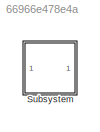
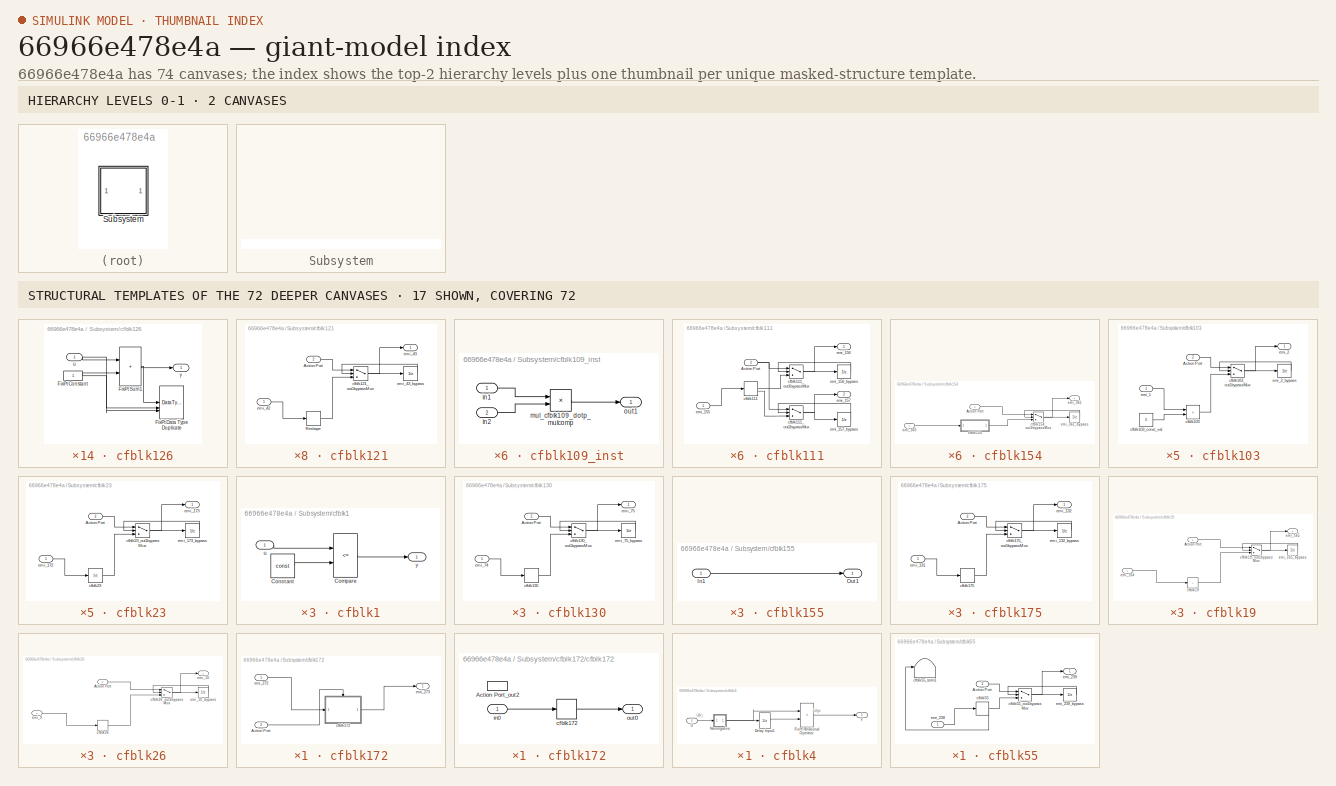
[diagram: thumbnail index - top-2 hierarchy levels (2 canvases) + 17 structural-template representatives of the remaining 72 canvases]
MODEL slx_66966e478e4a
KIND model
CONFIG AbsTol = auto
CONFIG EnableMultiTasking = off
CONFIG FixedStep = auto
CONFIG MaxStep = auto
CONFIG MinStep = auto
CONFIG RelTol = 1e-3
CONFIG SampleTimeConstraint = Unconstrained
CONFIG SolverName = VariableStepAuto
CONFIG StartTime = 0.0
CONFIG StopTime = 10.0
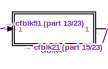
[diagram: Subsystem - part 1/23, top center region]
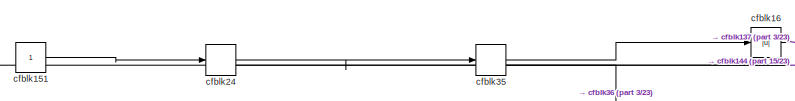
[diagram: Subsystem - part 2/23, top center region]
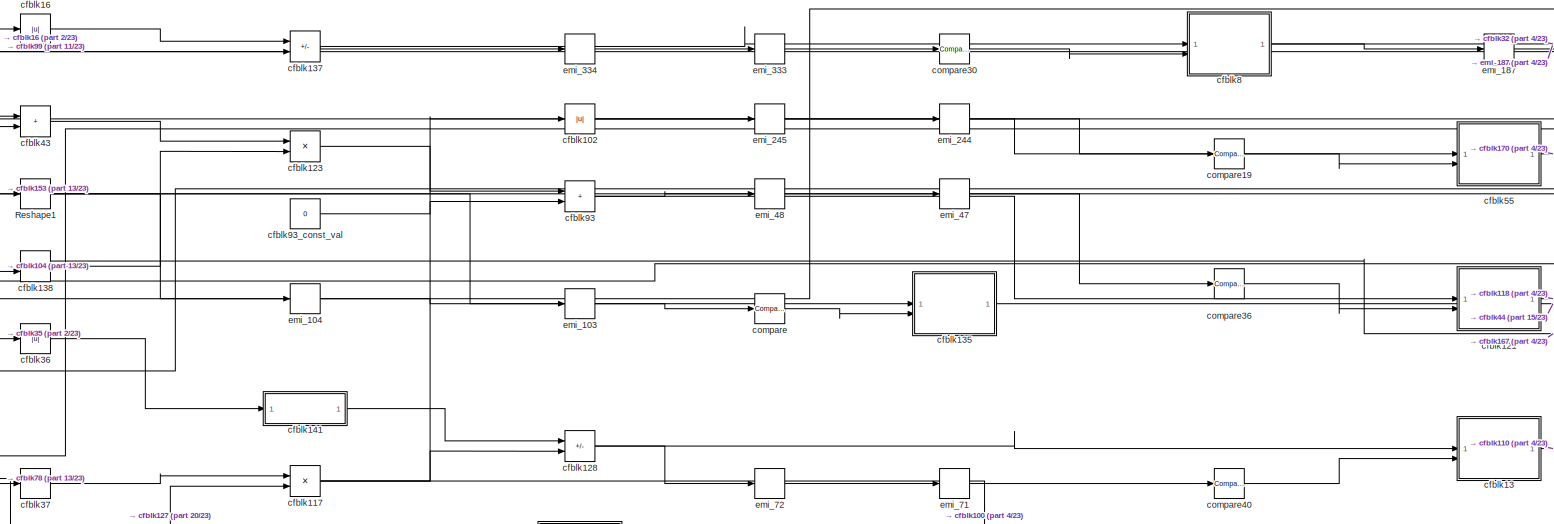
[diagram: Subsystem - part 3/23, top center region]
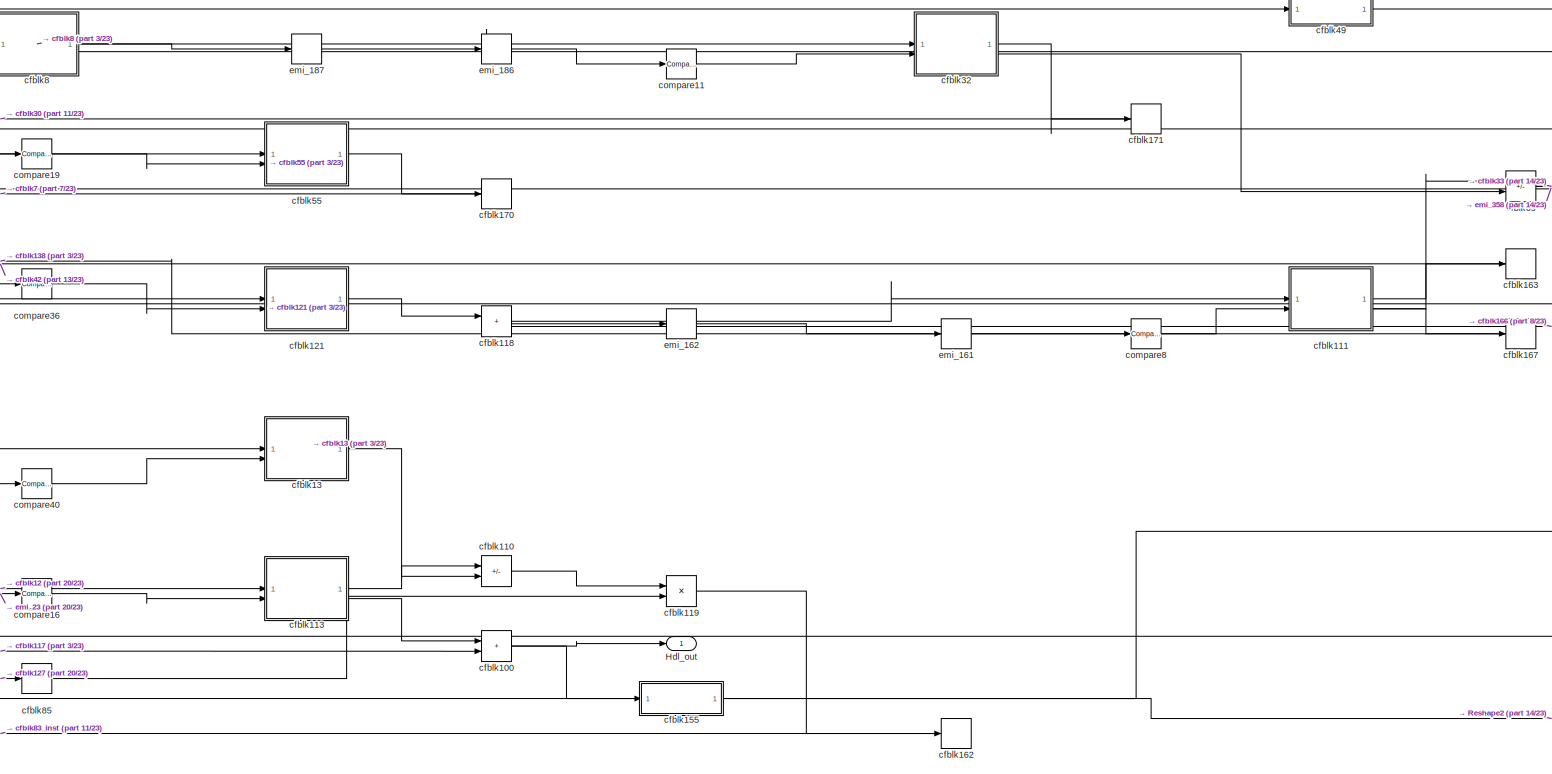
[diagram: Subsystem - part 4/23, central region]
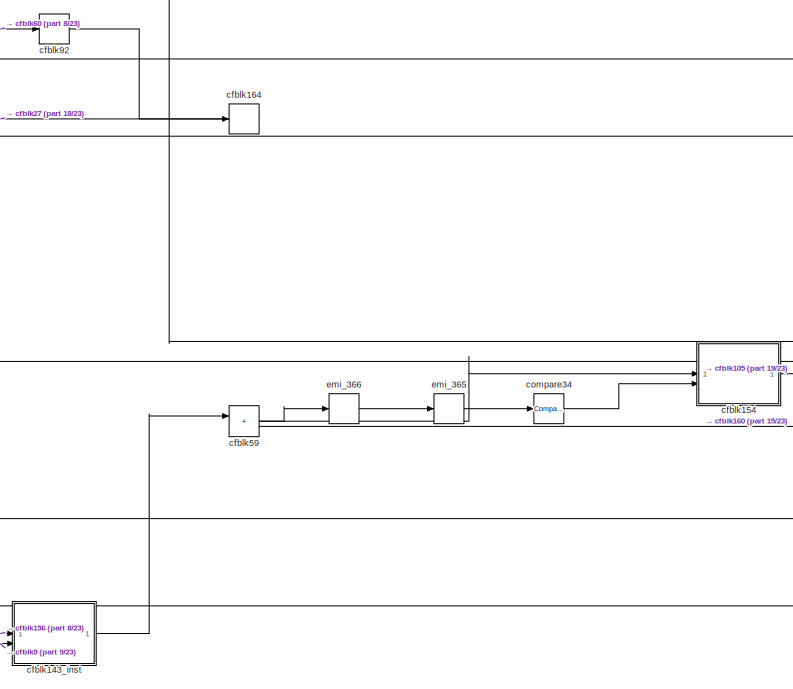
[diagram: Subsystem - part 5/23, middle right region]
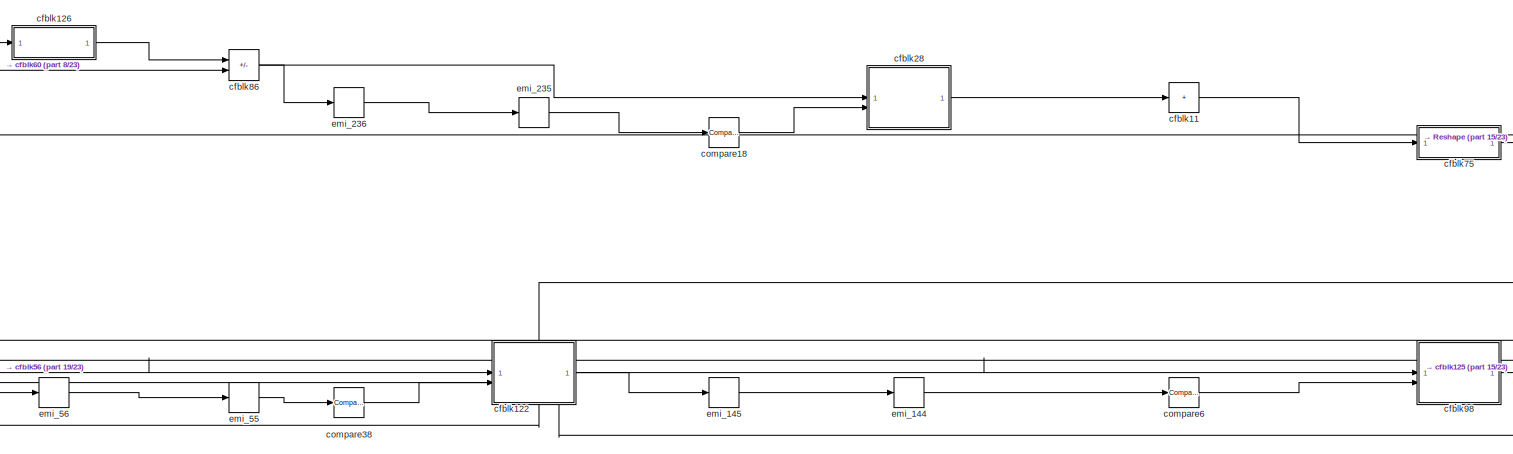
[diagram: Subsystem - part 6/23, top right region]
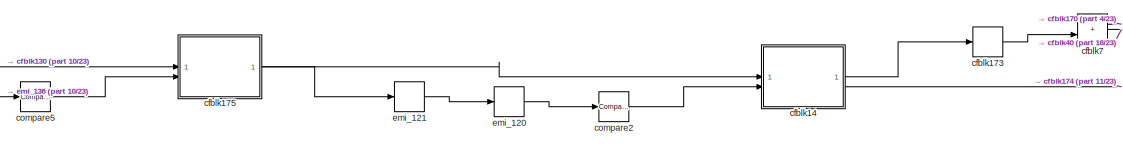
[diagram: Subsystem - part 7/23, top left region]
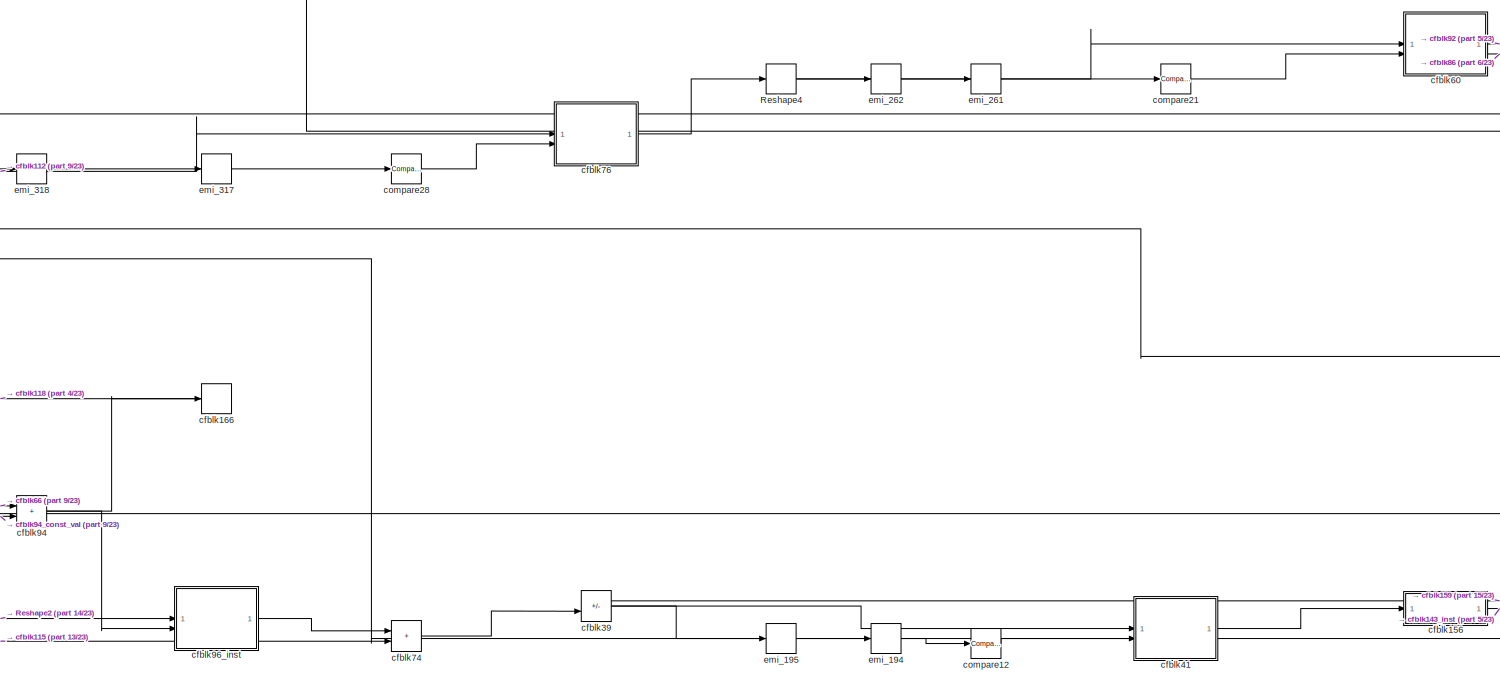
[diagram: Subsystem - part 8/23, middle right region]
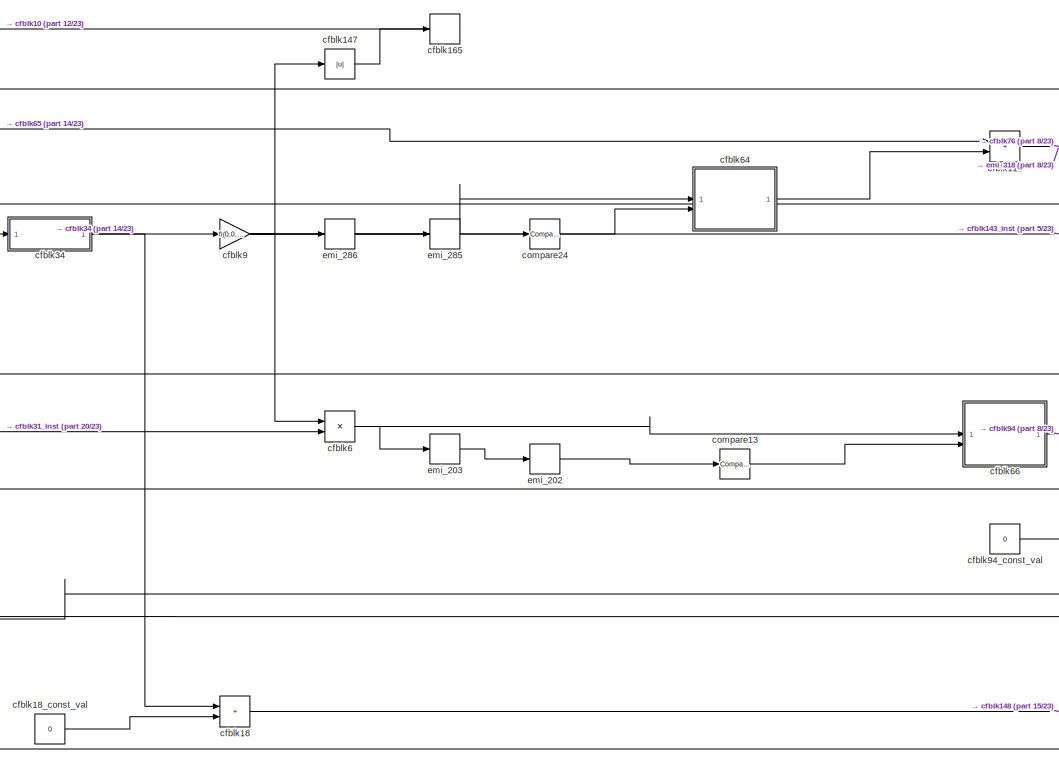
[diagram: Subsystem - part 9/23, middle right region]
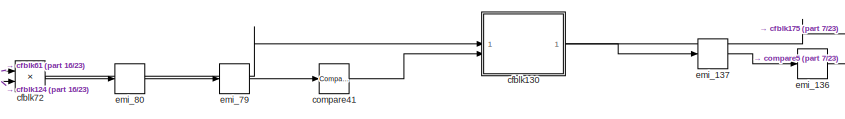
[diagram: Subsystem - part 10/23, top left region]
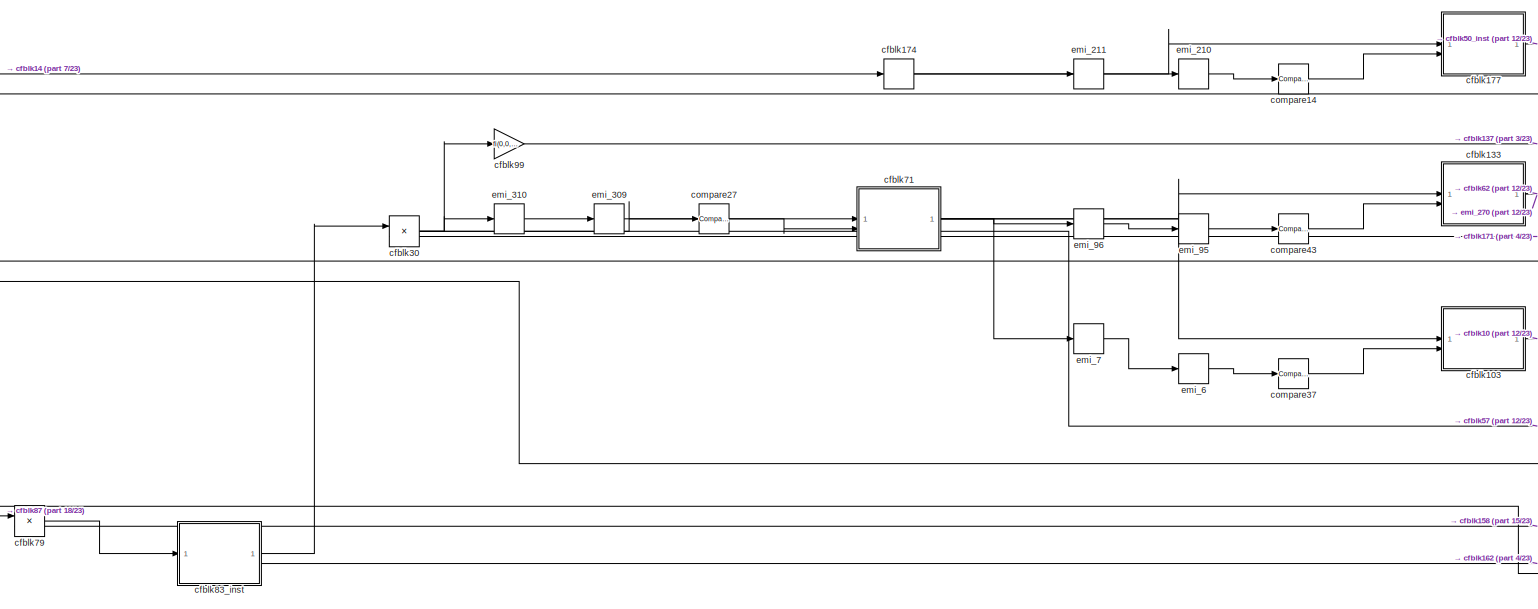
[diagram: Subsystem - part 11/23, middle left region]
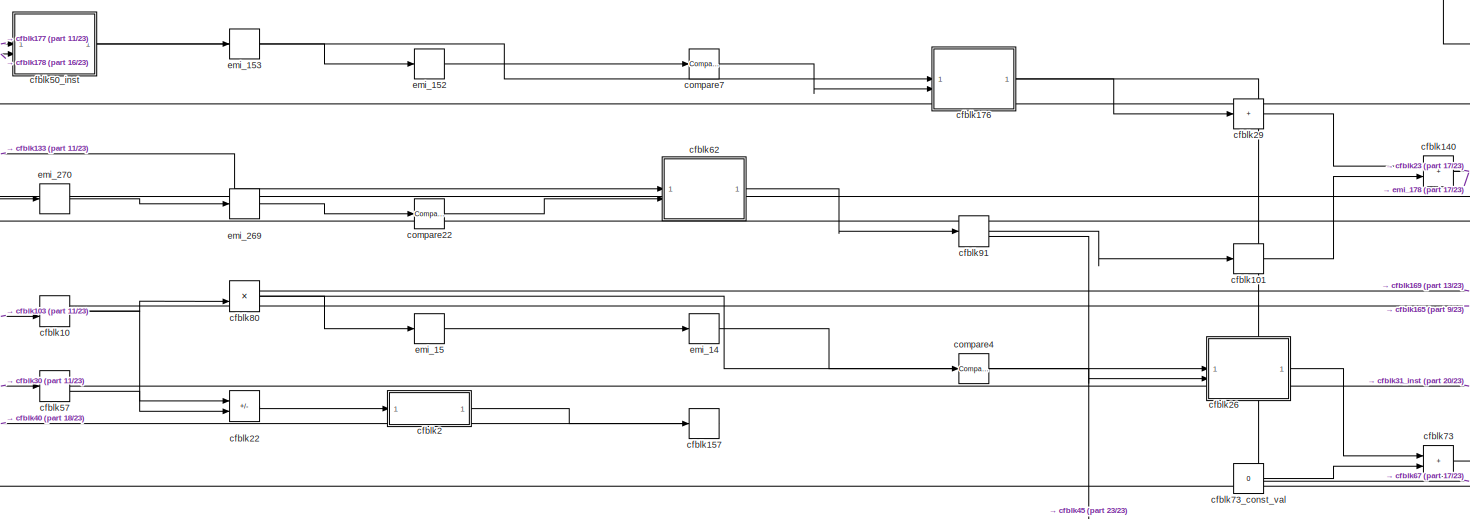
[diagram: Subsystem - part 12/23, central region]
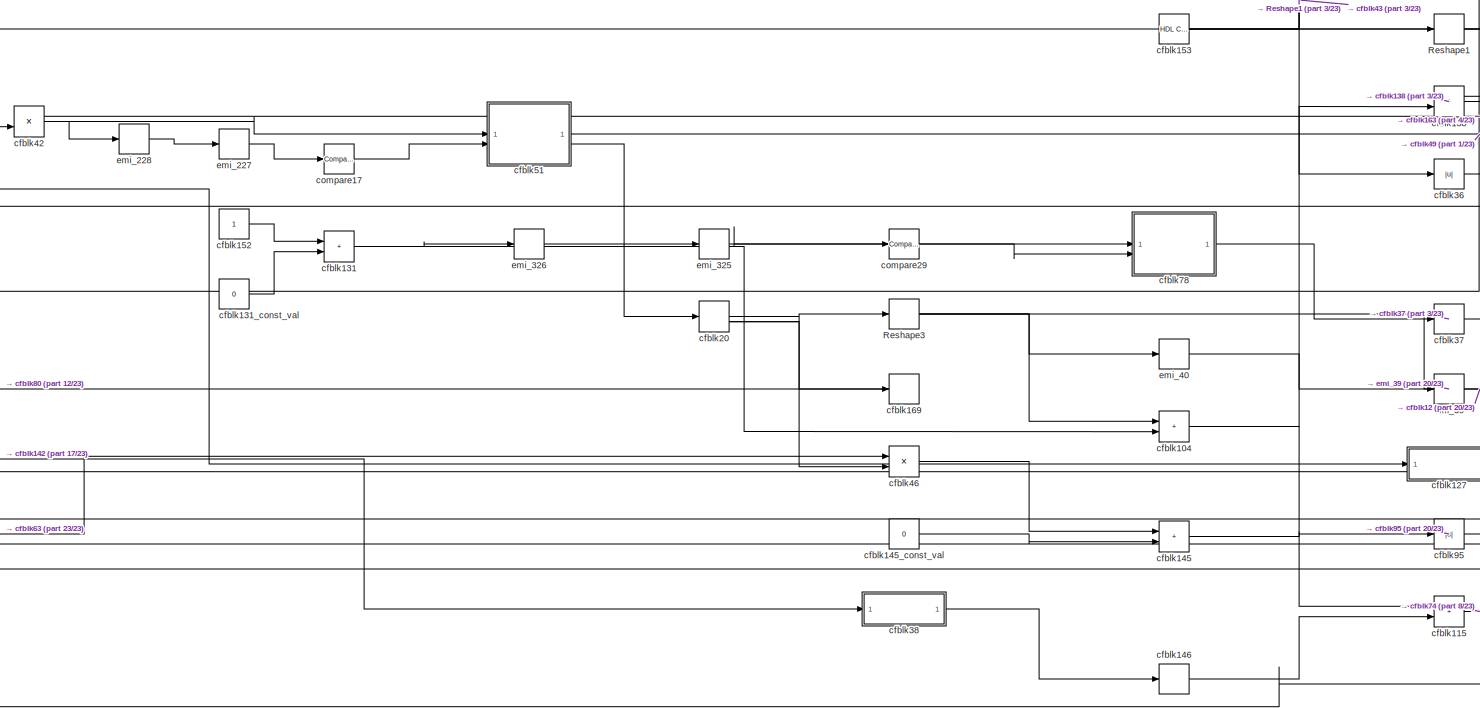
[diagram: Subsystem - part 13/23, central region]
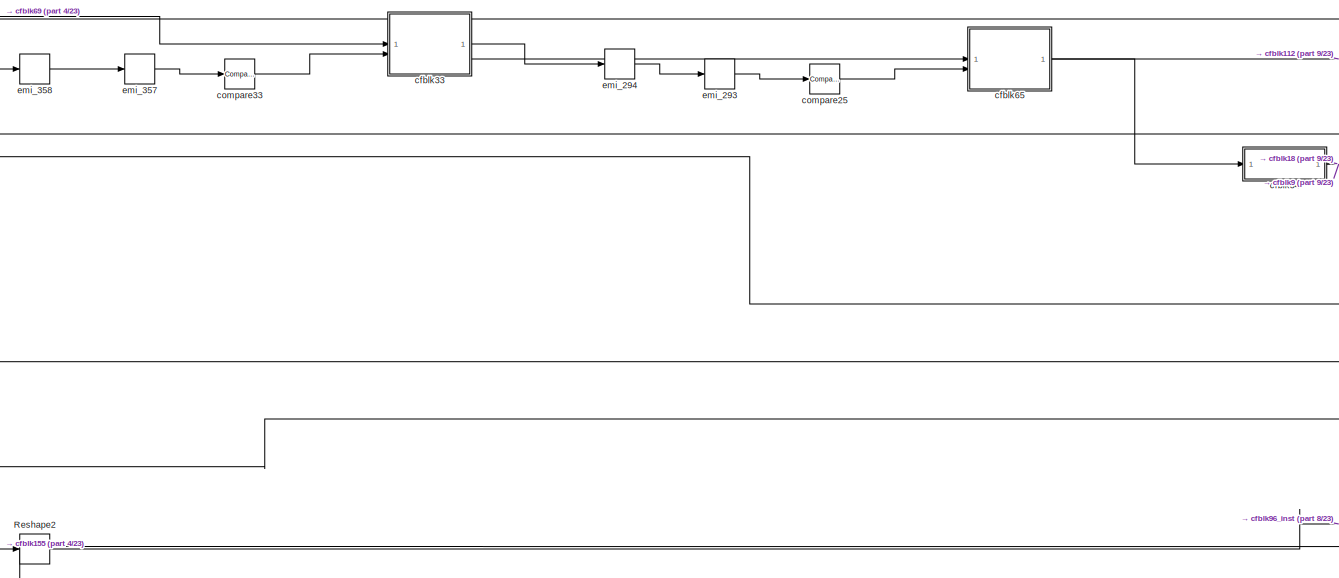
[diagram: Subsystem - part 14/23, central region]
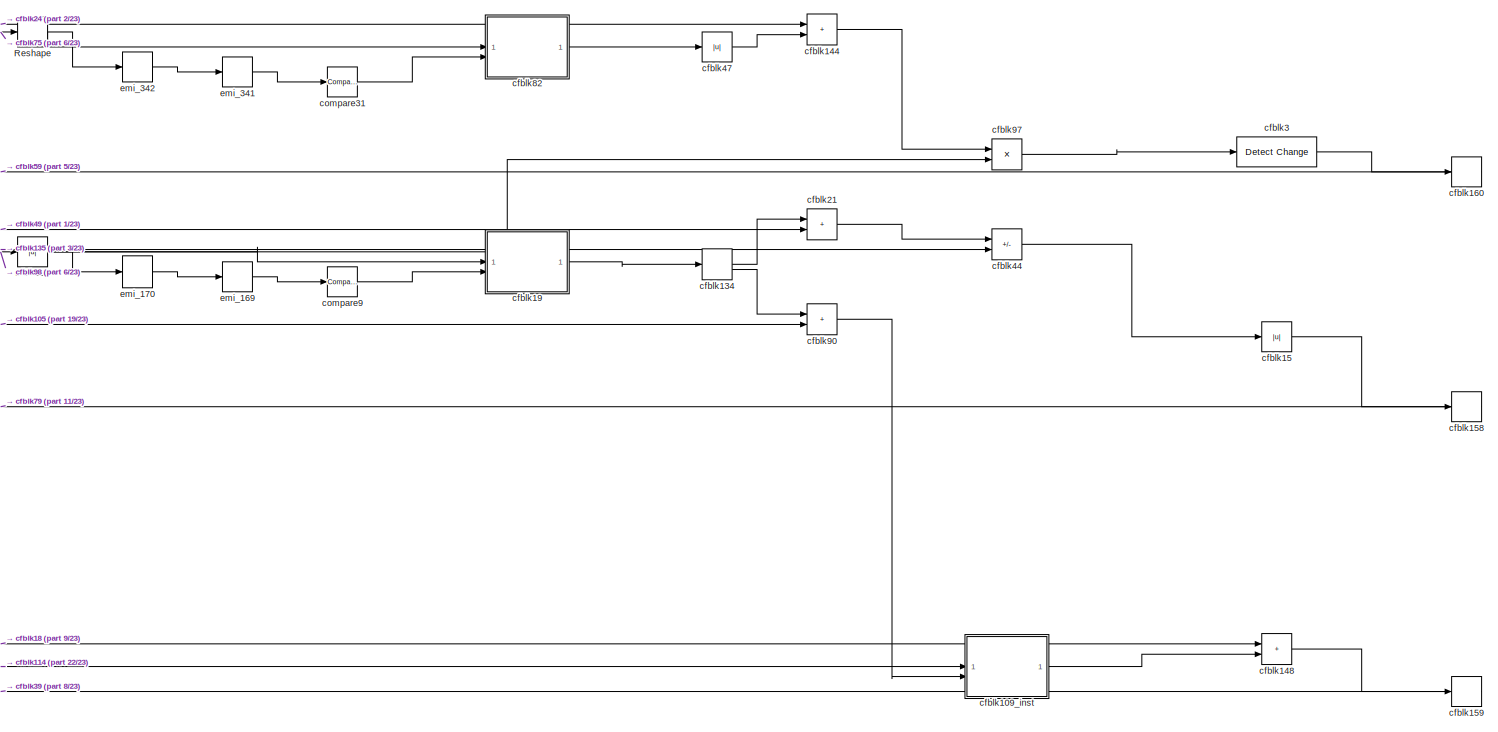
[diagram: Subsystem - part 15/23, middle right region]
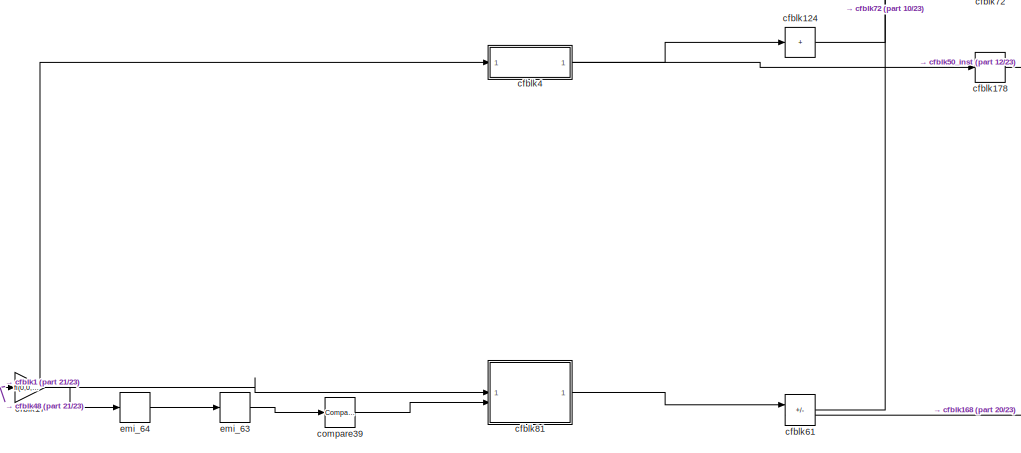
[diagram: Subsystem - part 16/23, middle left region]
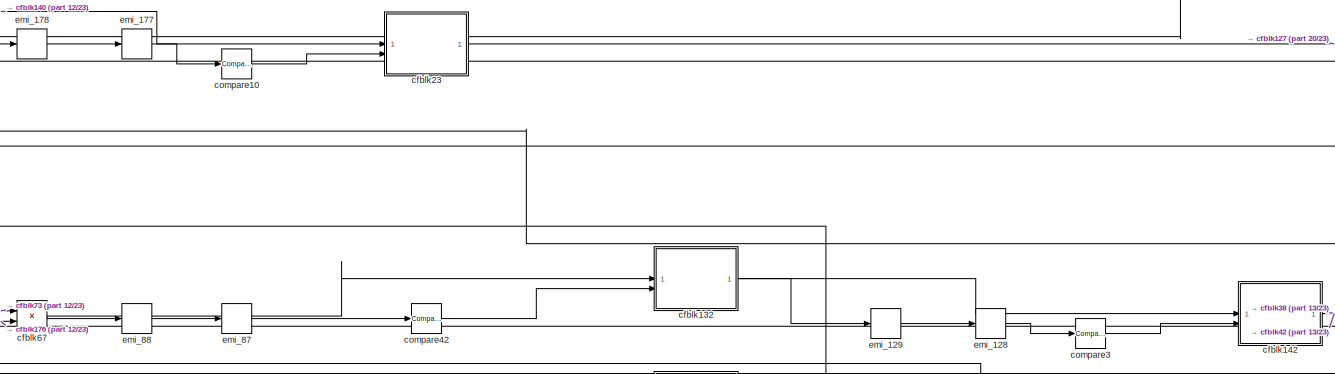
[diagram: Subsystem - part 17/23, central region]
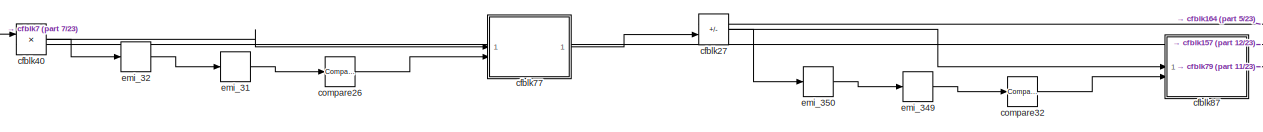
[diagram: Subsystem - part 18/23, middle left region]
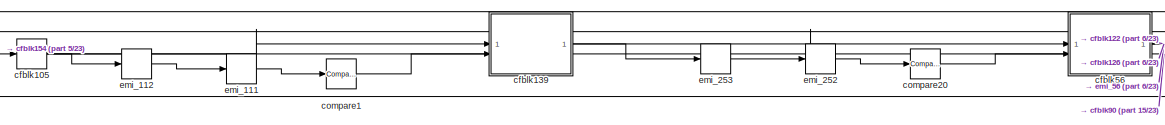
[diagram: Subsystem - part 19/23, middle right region]
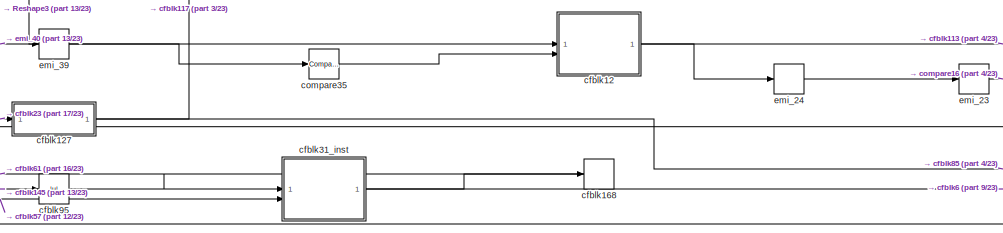
[diagram: Subsystem - part 20/23, central region]
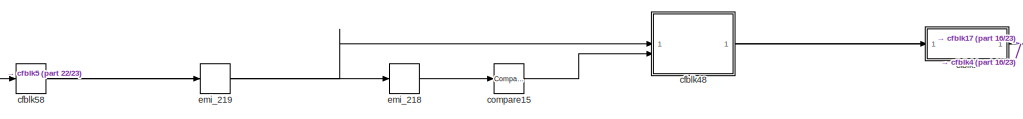
[diagram: Subsystem - part 21/23, middle left region]
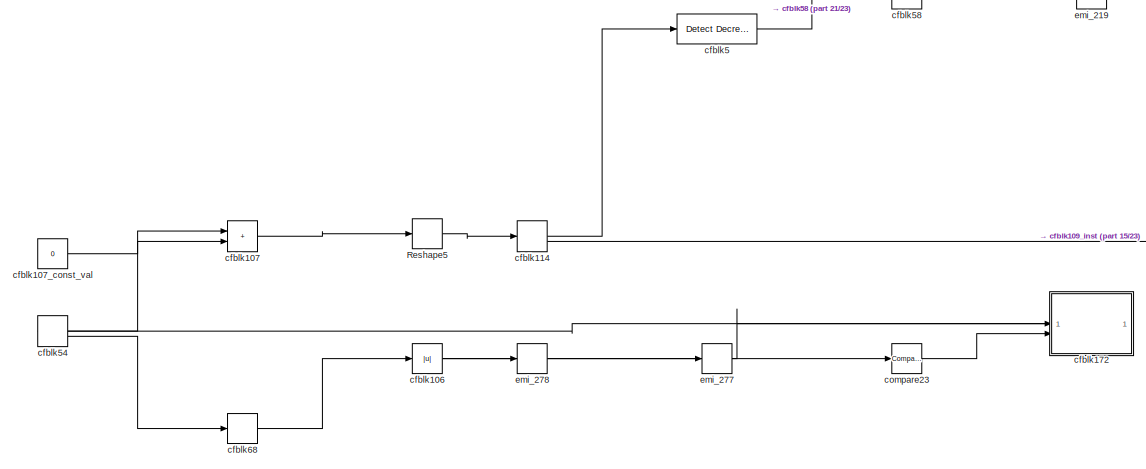
[diagram: Subsystem - part 22/23, bottom left region]
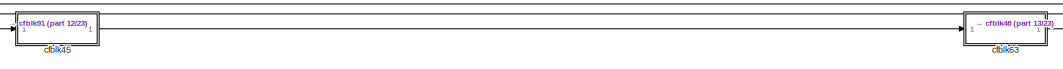
[diagram: Subsystem - part 23/23, central region]
BLOCK [SubSystem] Subsystem
BLOCK [Outport] Subsystem/Hdl_out
  OutDataTypeStr = uint8
  SampleTime = 1
BLOCK [Reshape] Subsystem/Reshape
BLOCK [Reshape] Subsystem/Reshape1
BLOCK [Reshape] Subsystem/Reshape2
BLOCK [Reshape] Subsystem/Reshape3
BLOCK [Reshape] Subsystem/Reshape4
BLOCK [Reshape] Subsystem/Reshape5
BLOCK [SubSystem] Subsystem/cfblk1
BLOCK [RelationalOperator] Subsystem/cfblk1/Compare
  Operator = <=
  OutDataTypeStr = fixdt(0, 8)
BLOCK [Constant] Subsystem/cfblk1/Constant
  DisableCoverage = on
  OutDataTypeStr = Inherit: Inherit via back propagation
  SampleTime = -1
  Value = const
BLOCK [Inport] Subsystem/cfblk1/u
  OutDataTypeStr = uint8
  SampleTime = 1
BLOCK [Outport] Subsystem/cfblk1/y
  SampleTime = 1
BLOCK [Sum] Subsystem/cfblk10
  AccumDataTypeStr = uint8
  IconShape = rectangular
  OutDataTypeStr = uint8
  SampleTime = 1
BLOCK [Sum] Subsystem/cfblk100
  AccumDataTypeStr = uint8
  IconShape = rectangular
  OutDataTypeStr = uint8
  SampleTime = 1
BLOCK [MinMax] Subsystem/cfblk101
  OutDataTypeStr = uint8
BLOCK [Abs] Subsystem/cfblk102
  OutDataTypeStr = uint8
  SampleTime = 1
  SaturateOnIntegerOverflow = off
BLOCK [SubSystem] Subsystem/cfblk103
BLOCK [Inport] Subsystem/cfblk103/Action Port
  OutDataTypeStr = boolean
  Port = 2
  SampleTime = 1
BLOCK [Sum] Subsystem/cfblk103/cfblk103
  AccumDataTypeStr = uint8
  IconShape = rectangular
  OutDataTypeStr = uint8
  RndMeth = Nearest
  SampleTime = 1
BLOCK [Constant] Subsystem/cfblk103/cfblk103_const_val
  OutDataTypeStr = uint8
  SampleTime = 1
  Value = 0
  VectorParams1D = off
BLOCK [MultiPortSwitch] Subsystem/cfblk103/cfblk103_out1bypassMux
  DataPortOrder = Zero-based contiguous
  InputSameDT = off
  Inputs = 2
  OutDataTypeStr = uint8
  SampleTime = 1
  SaturateOnIntegerOverflow = off
  zeroidx = on
BLOCK [Inport] Subsystem/cfblk103/emi_1
  OutDataTypeStr = uint8
  PortDimensions = 1
  SampleTime = 1
BLOCK [Outport] Subsystem/cfblk103/emi_2
  InitialOutput = 0
  SampleTime = 1
BLOCK [UnitDelay] Subsystem/cfblk103/emi_2_bypass
  InitialCondition = fi(0,0,8,0,"hex","00")
  SampleTime = 1
BLOCK [Sum] Subsystem/cfblk104
  AccumDataTypeStr = uint8
  IconShape = rectangular
  OutDataTypeStr = uint8
  SampleTime = 1
BLOCK [Signum] Subsystem/cfblk105
  SampleTime = 1
BLOCK [Abs] Subsystem/cfblk106
  OutDataTypeStr = uint8
  SampleTime = 1
  SaturateOnIntegerOverflow = off
BLOCK [Sum] Subsystem/cfblk107
  AccumDataTypeStr = uint8
  IconShape = rectangular
  OutDataTypeStr = uint8
  RndMeth = Nearest
  SampleTime = 1
BLOCK [Constant] Subsystem/cfblk107_const_val
  OutDataTypeStr = uint8
  SampleTime = 1
  Value = 0
  VectorParams1D = off
BLOCK [SubSystem] Subsystem/cfblk109_inst
BLOCK [Inport] Subsystem/cfblk109_inst/in1
  OutDataTypeStr = uint8
  SampleTime = 1
BLOCK [Inport] Subsystem/cfblk109_inst/in2
  OutDataTypeStr = uint8
  Port = 2
  SampleTime = 1
BLOCK [Product] Subsystem/cfblk109_inst/mul_cfblk109_dotp_mulcomp
  Inputs = **
  OutDataTypeStr = uint8
  SampleTime = 1
BLOCK [Outport] Subsystem/cfblk109_inst/out1
  OutDataTypeStr = uint8
  SampleTime = 1
BLOCK [Sum] Subsystem/cfblk11
  IconShape = rectangular
  Inputs = +
  OutDataTypeStr = uint8
BLOCK [Sum] Subsystem/cfblk110
  AccumDataTypeStr = uint8
  IconShape = rectangular
  Inputs = +-
  OutDataTypeStr = uint8
  SampleTime = 1
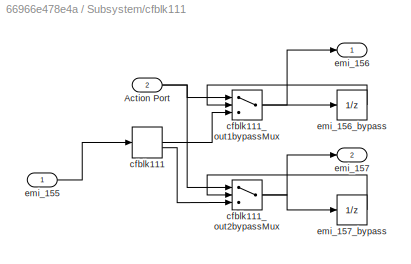
BLOCK [SubSystem] Subsystem/cfblk111
BLOCK [Inport] Subsystem/cfblk111/Action Port
  OutDataTypeStr = boolean
  Port = 2
  SampleTime = 1
BLOCK [ComplexToRealImag] Subsystem/cfblk111/cfblk111
  SampleTime = 1
BLOCK [MultiPortSwitch] Subsystem/cfblk111/cfblk111_out1bypassMux
  DataPortOrder = Zero-based contiguous
  InputSameDT = off
  Inputs = 2
  OutDataTypeStr = uint8
  SampleTime = 1
  SaturateOnIntegerOverflow = off
  zeroidx = on
BLOCK [MultiPortSwitch] Subsystem/cfblk111/cfblk111_out2bypassMux
  DataPortOrder = Zero-based contiguous
  InputSameDT = off
  Inputs = 2
  OutDataTypeStr = uint8
  SampleTime = 1
  SaturateOnIntegerOverflow = off
  zeroidx = on
BLOCK [Inport] Subsystem/cfblk111/emi_155
  OutDataTypeStr = uint8
  PortDimensions = 1
  SampleTime = 1
BLOCK [Outport] Subsystem/cfblk111/emi_156
  InitialOutput = 0
  SampleTime = 1
BLOCK [UnitDelay] Subsystem/cfblk111/emi_156_bypass
  InitialCondition = fi(0,0,8,0,"hex","00")
  SampleTime = 1
BLOCK [Outport] Subsystem/cfblk111/emi_157
  InitialOutput = 0
  Port = 2
  SampleTime = 1
BLOCK [UnitDelay] Subsystem/cfblk111/emi_157_bypass
  InitialCondition = fi(0,0,8,0,"hex","00")
  SampleTime = 1
BLOCK [Sum] Subsystem/cfblk112
  AccumDataTypeStr = uint8
  IconShape = rectangular
  OutDataTypeStr = uint8
  SampleTime = 1
BLOCK [SubSystem] Subsystem/cfblk113
BLOCK [Inport] Subsystem/cfblk113/Action Port
  OutDataTypeStr = boolean
  Port = 2
  SampleTime = 1
BLOCK [ComplexToRealImag] Subsystem/cfblk113/cfblk113
  SampleTime = 1
BLOCK [MultiPortSwitch] Subsystem/cfblk113/cfblk113_out1bypassMux
  DataPortOrder = Zero-based contiguous
  InputSameDT = off
  Inputs = 2
  OutDataTypeStr = uint8
  SampleTime = 1
  SaturateOnIntegerOverflow = off
  zeroidx = on
BLOCK [MultiPortSwitch] Subsystem/cfblk113/cfblk113_out2bypassMux
  DataPortOrder = Zero-based contiguous
  InputSameDT = off
  Inputs = 2
  OutDataTypeStr = uint8
  SampleTime = 1
  SaturateOnIntegerOverflow = off
  zeroidx = on
BLOCK [Inport] Subsystem/cfblk113/emi_17
  OutDataTypeStr = uint8
  PortDimensions = 1
  SampleTime = 1
BLOCK [Outport] Subsystem/cfblk113/emi_18
  InitialOutput = 0
  SampleTime = 1
BLOCK [UnitDelay] Subsystem/cfblk113/emi_18_bypass
  InitialCondition = fi(0,0,8,0,"hex","00")
  SampleTime = 1
BLOCK [Outport] Subsystem/cfblk113/emi_19
  InitialOutput = 0
  Port = 2
  SampleTime = 1
BLOCK [UnitDelay] Subsystem/cfblk113/emi_19_bypass
  InitialCondition = fi(0,0,8,0,"hex","00")
  SampleTime = 1
BLOCK [ComplexToRealImag] Subsystem/cfblk114
  SampleTime = 1
BLOCK [Sum] Subsystem/cfblk115
  AccumDataTypeStr = uint8
  IconShape = rectangular
  OutDataTypeStr = uint8
  SampleTime = 1
BLOCK [Product] Subsystem/cfblk117
  Inputs = */
  OutDataTypeStr = uint8
  RndMeth = Zero
  SampleTime = 1
  SaturateOnIntegerOverflow = on
BLOCK [Sum] Subsystem/cfblk118
  AccumDataTypeStr = uint8
  IconShape = rectangular
  OutDataTypeStr = uint8
  SampleTime = 1
BLOCK [Product] Subsystem/cfblk119
  Inputs = */
  OutDataTypeStr = uint8
  RndMeth = Zero
  SampleTime = 1
  SaturateOnIntegerOverflow = on
BLOCK [SubSystem] Subsystem/cfblk12
BLOCK [Inport] Subsystem/cfblk12/Action Port
  OutDataTypeStr = boolean
  Port = 2
  SampleTime = 1
BLOCK [Sum] Subsystem/cfblk12/cfblk12
  AccumDataTypeStr = uint8
  IconShape = rectangular
  OutDataTypeStr = uint8
  RndMeth = Nearest
  SampleTime = 1
BLOCK [Constant] Subsystem/cfblk12/cfblk12_const_val
  OutDataTypeStr = uint8
  SampleTime = 1
  Value = 0
  VectorParams1D = off
BLOCK [MultiPortSwitch] Subsystem/cfblk12/cfblk12_out1bypassMux
  DataPortOrder = Zero-based contiguous
  InputSameDT = off
  Inputs = 2
  OutDataTypeStr = uint8
  SampleTime = 1
  SaturateOnIntegerOverflow = off
  zeroidx = on
BLOCK [Inport] Subsystem/cfblk12/emi_34
  OutDataTypeStr = uint8
  PortDimensions = 1
  SampleTime = 1
BLOCK [Outport] Subsystem/cfblk12/emi_35
  InitialOutput = 0
  SampleTime = 1
BLOCK [UnitDelay] Subsystem/cfblk12/emi_35_bypass
  InitialCondition = fi(0,0,8,0,"hex","00")
  SampleTime = 1
BLOCK [SubSystem] Subsystem/cfblk121
BLOCK [Inport] Subsystem/cfblk121/Action Port
  OutDataTypeStr = boolean
  Port = 2
  SampleTime = 1
BLOCK [Reshape] Subsystem/cfblk121/Reshape
BLOCK [MultiPortSwitch] Subsystem/cfblk121/cfblk121_out1bypassMux
  DataPortOrder = Zero-based contiguous
  InputSameDT = off
  Inputs = 2
  OutDataTypeStr = uint8
  SampleTime = 1
  SaturateOnIntegerOverflow = off
  zeroidx = on
BLOCK [Inport] Subsystem/cfblk121/emi_42
  OutDataTypeStr = uint8
  PortDimensions = 1
  SampleTime = 1
BLOCK [Outport] Subsystem/cfblk121/emi_43
  InitialOutput = 0
  SampleTime = 1
BLOCK [UnitDelay] Subsystem/cfblk121/emi_43_bypass
  InitialCondition = fi(0,0,8,0,"hex","00")
  SampleTime = 1
BLOCK [SubSystem] Subsystem/cfblk122
BLOCK [Inport] Subsystem/cfblk122/Action Port
  OutDataTypeStr = boolean
  Port = 2
  SampleTime = 1
BLOCK [Reshape] Subsystem/cfblk122/Reshape
BLOCK [MultiPortSwitch] Subsystem/cfblk122/cfblk122_out1bypassMux
  DataPortOrder = Zero-based contiguous
  InputSameDT = off
  Inputs = 2
  OutDataTypeStr = uint8
  SampleTime = 1
  SaturateOnIntegerOverflow = off
  zeroidx = on
BLOCK [Inport] Subsystem/cfblk122/emi_50
  OutDataTypeStr = uint8
  PortDimensions = 1
  SampleTime = 1
BLOCK [Outport] Subsystem/cfblk122/emi_51
  InitialOutput = 0
  SampleTime = 1
BLOCK [UnitDelay] Subsystem/cfblk122/emi_51_bypass
  InitialCondition = fi(0,0,8,0,"hex","00")
  SampleTime = 1
BLOCK [Product] Subsystem/cfblk123
  Inputs = */
  OutDataTypeStr = uint8
  RndMeth = Zero
  SampleTime = 1
  SaturateOnIntegerOverflow = on
BLOCK [Sum] Subsystem/cfblk124
  IconShape = rectangular
  Inputs = +
  OutDataTypeStr = uint8
BLOCK [Abs] Subsystem/cfblk125
  OutDataTypeStr = uint8
  SampleTime = 1
  SaturateOnIntegerOverflow = off
BLOCK [SubSystem] Subsystem/cfblk126
BLOCK [Constant] Subsystem/cfblk126/FixPt Constant
  DisableCoverage = on
  OutDataTypeStr = Inherit: Inherit via back propagation
  SampleTime = -1
BLOCK [DataTypeDuplicate] Subsystem/cfblk126/FixPt Data Type Duplicate
  DisableCoverage = on
  NumInputPorts = 3
BLOCK [Sum] Subsystem/cfblk126/FixPt Sum1
  IconShape = rectangular
  InputSameDT = on
  LockScale = on
  OutDataTypeStr = Inherit: Inherit via back propagation
BLOCK [Inport] Subsystem/cfblk126/u
  OutDataTypeStr = uint8
  SampleTime = 1
BLOCK [Outport] Subsystem/cfblk126/y
  SampleTime = 1
BLOCK [SubSystem] Subsystem/cfblk127
BLOCK [Constant] Subsystem/cfblk127/FixPt Constant
  DisableCoverage = on
  OutDataTypeStr = Inherit: Inherit via back propagation
  SampleTime = -1
BLOCK [DataTypeDuplicate] Subsystem/cfblk127/FixPt Data Type Duplicate
  DisableCoverage = on
  NumInputPorts = 3
BLOCK [Sum] Subsystem/cfblk127/FixPt Sum1
  IconShape = rectangular
  InputSameDT = on
  LockScale = on
  OutDataTypeStr = Inherit: Inherit via back propagation
BLOCK [Inport] Subsystem/cfblk127/u
  OutDataTypeStr = uint8
  SampleTime = 1
BLOCK [Outport] Subsystem/cfblk127/y
  SampleTime = 1
BLOCK [Sum] Subsystem/cfblk128
  AccumDataTypeStr = uint8
  IconShape = rectangular
  Inputs = +-
  OutDataTypeStr = uint8
  SampleTime = 1
BLOCK [SubSystem] Subsystem/cfblk13
BLOCK [Inport] Subsystem/cfblk13/Action Port
  OutDataTypeStr = boolean
  Port = 2
  SampleTime = 1
BLOCK [Sum] Subsystem/cfblk13/cfblk13
  AccumDataTypeStr = uint8
  IconShape = rectangular
  OutDataTypeStr = uint8
  RndMeth = Nearest
  SampleTime = 1
BLOCK [Constant] Subsystem/cfblk13/cfblk13_const_val
  OutDataTypeStr = uint8
  SampleTime = 1
  Value = 0
  VectorParams1D = off
BLOCK [MultiPortSwitch] Subsystem/cfblk13/cfblk13_out1bypassMux
  DataPortOrder = Zero-based contiguous
  InputSameDT = off
  Inputs = 2
  OutDataTypeStr = uint8
  SampleTime = 1
  SaturateOnIntegerOverflow = off
  zeroidx = on
BLOCK [Inport] Subsystem/cfblk13/emi_66
  OutDataTypeStr = uint8
  PortDimensions = 1
  SampleTime = 1
BLOCK [Outport] Subsystem/cfblk13/emi_67
  InitialOutput = 0
  SampleTime = 1
BLOCK [UnitDelay] Subsystem/cfblk13/emi_67_bypass
  InitialCondition = fi(0,0,8,0,"hex","00")
  SampleTime = 1
BLOCK [SubSystem] Subsystem/cfblk130
BLOCK [Inport] Subsystem/cfblk130/Action Port
  OutDataTypeStr = boolean
  Port = 2
  SampleTime = 1
BLOCK [Signum] Subsystem/cfblk130/cfblk130
  SampleTime = 1
BLOCK [MultiPortSwitch] Subsystem/cfblk130/cfblk130_out1bypassMux
  DataPortOrder = Zero-based contiguous
  InputSameDT = off
  Inputs = 2
  OutDataTypeStr = uint8
  SampleTime = 1
  SaturateOnIntegerOverflow = off
  zeroidx = on
BLOCK [Inport] Subsystem/cfblk130/emi_74
  OutDataTypeStr = uint8
  PortDimensions = 1
  SampleTime = 1
BLOCK [Outport] Subsystem/cfblk130/emi_75
  InitialOutput = 0
  SampleTime = 1
BLOCK [UnitDelay] Subsystem/cfblk130/emi_75_bypass
  InitialCondition = fi(0,0,8,0,"hex","00")
  SampleTime = 1
BLOCK [Sum] Subsystem/cfblk131
  AccumDataTypeStr = uint8
  IconShape = rectangular
  OutDataTypeStr = uint8
  RndMeth = Nearest
  SampleTime = 1
BLOCK [Constant] Subsystem/cfblk131_const_val
  OutDataTypeStr = uint8
  SampleTime = 1
  Value = 0
  VectorParams1D = off
BLOCK [SubSystem] Subsystem/cfblk132
BLOCK [Inport] Subsystem/cfblk132/Action Port
  OutDataTypeStr = boolean
  Port = 2
  SampleTime = 1
BLOCK [Reshape] Subsystem/cfblk132/Reshape
BLOCK [MultiPortSwitch] Subsystem/cfblk132/cfblk132_out1bypassMux
  DataPortOrder = Zero-based contiguous
  InputSameDT = off
  Inputs = 2
  OutDataTypeStr = uint8
  SampleTime = 1
  SaturateOnIntegerOverflow = off
  zeroidx = on
BLOCK [Inport] Subsystem/cfblk132/emi_82
  OutDataTypeStr = uint8
  PortDimensions = 1
  SampleTime = 1
BLOCK [Outport] Subsystem/cfblk132/emi_83
  InitialOutput = 0
  SampleTime = 1
BLOCK [UnitDelay] Subsystem/cfblk132/emi_83_bypass
  InitialCondition = fi(0,0,8,0,"hex","00")
  SampleTime = 1
BLOCK [SubSystem] Subsystem/cfblk133
BLOCK [Inport] Subsystem/cfblk133/Action Port
  OutDataTypeStr = boolean
  Port = 2
  SampleTime = 1
BLOCK [Signum] Subsystem/cfblk133/cfblk133
  SampleTime = 1
BLOCK [MultiPortSwitch] Subsystem/cfblk133/cfblk133_out1bypassMux
  DataPortOrder = Zero-based contiguous
  InputSameDT = off
  Inputs = 2
  OutDataTypeStr = uint8
  SampleTime = 1
  SaturateOnIntegerOverflow = off
  zeroidx = on
BLOCK [Inport] Subsystem/cfblk133/emi_90
  OutDataTypeStr = uint8
  PortDimensions = 1
  SampleTime = 1
BLOCK [Outport] Subsystem/cfblk133/emi_91
  InitialOutput = 0
  SampleTime = 1
BLOCK [UnitDelay] Subsystem/cfblk133/emi_91_bypass
  InitialCondition = fi(0,0,8,0,"hex","00")
  SampleTime = 1
BLOCK [ComplexToRealImag] Subsystem/cfblk134
  SampleTime = 1
BLOCK [SubSystem] Subsystem/cfblk135
BLOCK [Inport] Subsystem/cfblk135/Action Port
  OutDataTypeStr = boolean
  Port = 2
  SampleTime = 1
BLOCK [Reshape] Subsystem/cfblk135/Reshape
BLOCK [MultiPortSwitch] Subsystem/cfblk135/cfblk135_out1bypassMux
  DataPortOrder = Zero-based contiguous
  InputSameDT = off
  Inputs = 2
  OutDataTypeStr = uint8
  SampleTime = 1
  SaturateOnIntegerOverflow = off
  zeroidx = on
BLOCK [Inport] Subsystem/cfblk135/emi_98
  OutDataTypeStr = uint8
  PortDimensions = 1
  SampleTime = 1
BLOCK [Outport] Subsystem/cfblk135/emi_99
  InitialOutput = 0
  SampleTime = 1
BLOCK [UnitDelay] Subsystem/cfblk135/emi_99_bypass
  InitialCondition = fi(0,0,8,0,"hex","00")
  SampleTime = 1
BLOCK [Sum] Subsystem/cfblk137
  AccumDataTypeStr = uint8
  IconShape = rectangular
  Inputs = +-
  OutDataTypeStr = uint8
  SampleTime = 1
BLOCK [Sum] Subsystem/cfblk138
  AccumDataTypeStr = uint8
  IconShape = rectangular
  OutDataTypeStr = uint8
  SampleTime = 1
BLOCK [SubSystem] Subsystem/cfblk139
BLOCK [Inport] Subsystem/cfblk139/Action Port
  OutDataTypeStr = boolean
  Port = 2
  SampleTime = 1
BLOCK [Sum] Subsystem/cfblk139/cfblk139
  AccumDataTypeStr = uint8
  IconShape = rectangular
  OutDataTypeStr = uint8
  RndMeth = Nearest
  SampleTime = 1
BLOCK [Constant] Subsystem/cfblk139/cfblk139_const_val
  OutDataTypeStr = uint8
  SampleTime = 1
  Value = 0
  VectorParams1D = off
BLOCK [MultiPortSwitch] Subsystem/cfblk139/cfblk139_out1bypassMux
  DataPortOrder = Zero-based contiguous
  InputSameDT = off
  Inputs = 2
  OutDataTypeStr = uint8
  SampleTime = 1
  SaturateOnIntegerOverflow = off
  zeroidx = on
BLOCK [Inport] Subsystem/cfblk139/emi_106
  OutDataTypeStr = uint8
  PortDimensions = 1
  SampleTime = 1
BLOCK [Outport] Subsystem/cfblk139/emi_107
  InitialOutput = 0
  SampleTime = 1
BLOCK [UnitDelay] Subsystem/cfblk139/emi_107_bypass
  InitialCondition = fi(0,0,8,0,"hex","00")
  SampleTime = 1
BLOCK [SubSystem] Subsystem/cfblk14
BLOCK [Inport] Subsystem/cfblk14/Action Port
  OutDataTypeStr = boolean
  Port = 2
  SampleTime = 1
BLOCK [ComplexToRealImag] Subsystem/cfblk14/cfblk14
  SampleTime = 1
BLOCK [MultiPortSwitch] Subsystem/cfblk14/cfblk14_out1bypassMux
  DataPortOrder = Zero-based contiguous
  InputSameDT = off
  Inputs = 2
  OutDataTypeStr = uint8
  SampleTime = 1
  SaturateOnIntegerOverflow = off
  zeroidx = on
BLOCK [MultiPortSwitch] Subsystem/cfblk14/cfblk14_out2bypassMux
  DataPortOrder = Zero-based contiguous
  InputSameDT = off
  Inputs = 2
  OutDataTypeStr = uint8
  SampleTime = 1
  SaturateOnIntegerOverflow = off
  zeroidx = on
BLOCK [Inport] Subsystem/cfblk14/emi_114
  OutDataTypeStr = uint8
  PortDimensions = 1
  SampleTime = 1
BLOCK [Outport] Subsystem/cfblk14/emi_115
  InitialOutput = 0
  SampleTime = 1
BLOCK [UnitDelay] Subsystem/cfblk14/emi_115_bypass
  InitialCondition = fi(0,0,8,0,"hex","00")
  SampleTime = 1
BLOCK [Outport] Subsystem/cfblk14/emi_116
  InitialOutput = 0
  Port = 2
  SampleTime = 1
BLOCK [UnitDelay] Subsystem/cfblk14/emi_116_bypass
  InitialCondition = fi(0,0,8,0,"hex","00")
  SampleTime = 1
BLOCK [Sum] Subsystem/cfblk140
  AccumDataTypeStr = uint8
  IconShape = rectangular
  OutDataTypeStr = uint8
  SampleTime = 1
BLOCK [SubSystem] Subsystem/cfblk141
BLOCK [Constant] Subsystem/cfblk141/FixPt Constant
  DisableCoverage = on
  OutDataTypeStr = Inherit: Inherit via back propagation
  SampleTime = -1
BLOCK [DataTypeDuplicate] Subsystem/cfblk141/FixPt Data Type Duplicate
  DisableCoverage = on
  NumInputPorts = 3
BLOCK [Sum] Subsystem/cfblk141/FixPt Sum1
  IconShape = rectangular
  InputSameDT = on
  LockScale = on
  OutDataTypeStr = Inherit: Inherit via back propagation
BLOCK [Inport] Subsystem/cfblk141/u
  OutDataTypeStr = uint8
  SampleTime = 1
BLOCK [Outport] Subsystem/cfblk141/y
  SampleTime = 1
BLOCK [SubSystem] Subsystem/cfblk142
BLOCK [Inport] Subsystem/cfblk142/Action Port
  OutDataTypeStr = boolean
  Port = 2
  SampleTime = 1
BLOCK [Reshape] Subsystem/cfblk142/Reshape
BLOCK [MultiPortSwitch] Subsystem/cfblk142/cfblk142_out1bypassMux
  DataPortOrder = Zero-based contiguous
  InputSameDT = off
  Inputs = 2
  OutDataTypeStr = uint8
  SampleTime = 1
  SaturateOnIntegerOverflow = off
  zeroidx = on
BLOCK [Inport] Subsystem/cfblk142/emi_123
  OutDataTypeStr = uint8
  PortDimensions = 1
  SampleTime = 1
BLOCK [Outport] Subsystem/cfblk142/emi_124
  InitialOutput = 0
  SampleTime = 1
BLOCK [UnitDelay] Subsystem/cfblk142/emi_124_bypass
  InitialCondition = fi(0,0,8,0,"hex","00")
  SampleTime = 1
BLOCK [SubSystem] Subsystem/cfblk143_inst
BLOCK [Inport] Subsystem/cfblk143_inst/in1
  OutDataTypeStr = uint8
  SampleTime = 1
BLOCK [Inport] Subsystem/cfblk143_inst/in2
  OutDataTypeStr = uint8
  Port = 2
  SampleTime = 1
BLOCK [Product] Subsystem/cfblk143_inst/mul_cfblk143_dotp_mulcomp
  Inputs = **
  OutDataTypeStr = uint8
  SampleTime = 1
BLOCK [Outport] Subsystem/cfblk143_inst/out1
  OutDataTypeStr = uint8
  SampleTime = 1
BLOCK [Sum] Subsystem/cfblk144
  AccumDataTypeStr = uint8
  IconShape = rectangular
  OutDataTypeStr = uint8
  SampleTime = 1
BLOCK [Sum] Subsystem/cfblk145
  AccumDataTypeStr = uint8
  IconShape = rectangular
  OutDataTypeStr = uint8
  RndMeth = Nearest
  SampleTime = 1
BLOCK [Constant] Subsystem/cfblk145_const_val
  OutDataTypeStr = uint8
  SampleTime = 1
  Value = 0
  VectorParams1D = off
BLOCK [MinMax] Subsystem/cfblk146
  OutDataTypeStr = uint8
BLOCK [Abs] Subsystem/cfblk147
  OutDataTypeStr = uint8
  SampleTime = 1
  SaturateOnIntegerOverflow = off
BLOCK [Sum] Subsystem/cfblk148
  AccumDataTypeStr = uint8
  IconShape = rectangular
  OutDataTypeStr = uint8
  SampleTime = 1
BLOCK [Abs] Subsystem/cfblk15
  OutDataTypeStr = uint8
  SampleTime = 1
  SaturateOnIntegerOverflow = off
BLOCK [Constant] Subsystem/cfblk151
  OutDataTypeStr = uint8
  SampleTime = 1
BLOCK [Constant] Subsystem/cfblk152
  OutDataTypeStr = uint8
  SampleTime = 1
BLOCK [Reference] Subsystem/cfblk153  REF=hdlsllib/Sources/HDL Counter
  SourceBlock = hdlsllib/Sources/HDL Counter
  SourceType = HDL Counter
BLOCK [SubSystem] Subsystem/cfblk154
BLOCK [Inport] Subsystem/cfblk154/Action Port
  OutDataTypeStr = boolean
  Port = 2
  SampleTime = 1
BLOCK [SubSystem] Subsystem/cfblk154/cfblk154
BLOCK [Inport] Subsystem/cfblk154/cfblk154/In1
  OutDataTypeStr = uint8
  PortDimensions = 1
  SampleTime = 1
BLOCK [Outport] Subsystem/cfblk154/cfblk154/Out1
  InitialOutput = 0
  SampleTime = 1
BLOCK [MultiPortSwitch] Subsystem/cfblk154/cfblk154_out1bypassMux
  DataPortOrder = Zero-based contiguous
  InputSameDT = off
  Inputs = 2
  OutDataTypeStr = uint8
  SampleTime = 1
  SaturateOnIntegerOverflow = off
  zeroidx = on
BLOCK [Inport] Subsystem/cfblk154/emi_360
  OutDataTypeStr = uint8
  PortDimensions = 1
  SampleTime = 1
BLOCK [Outport] Subsystem/cfblk154/emi_361
  InitialOutput = 0
  SampleTime = 1
BLOCK [UnitDelay] Subsystem/cfblk154/emi_361_bypass
  InitialCondition = fi(0,0,8,0,"hex","00")
  SampleTime = 1
BLOCK [SubSystem] Subsystem/cfblk155
BLOCK [Inport] Subsystem/cfblk155/In1
  OutDataTypeStr = uint8
  PortDimensions = 1
  SampleTime = 1
BLOCK [Outport] Subsystem/cfblk155/Out1
  InitialOutput = [0]
  SampleTime = 1
BLOCK [SubSystem] Subsystem/cfblk156
BLOCK [Inport] Subsystem/cfblk156/In1
  OutDataTypeStr = uint8
  PortDimensions = 1
  SampleTime = 1
BLOCK [Outport] Subsystem/cfblk156/Out1
  InitialOutput = [0]
  SampleTime = 1
BLOCK [Delay] Subsystem/cfblk157
  DelayLength = double(2)
  InitialCondition = 0
  InputPortMap = u0
  SampleTime = 1
BLOCK [Delay] Subsystem/cfblk158
  DelayLength = double(2)
  InitialCondition = 0
  InputPortMap = u0
  SampleTime = 1
BLOCK [Delay] Subsystem/cfblk159
  DelayLength = double(2)
  InitialCondition = 0
  InputPortMap = u0
  SampleTime = 1
BLOCK [Abs] Subsystem/cfblk16
  OutDataTypeStr = uint8
  SampleTime = 1
  SaturateOnIntegerOverflow = off
BLOCK [Delay] Subsystem/cfblk160
  DelayLength = double(2)
  InitialCondition = 0
  InputPortMap = u0
  SampleTime = 1
BLOCK [Delay] Subsystem/cfblk162
  DelayLength = double(2)
  InitialCondition = 0
  InputPortMap = u0
  SampleTime = 1
BLOCK [Delay] Subsystem/cfblk163
  DelayLength = double(2)
  InitialCondition = 0
  InputPortMap = u0
  SampleTime = 1
BLOCK [Delay] Subsystem/cfblk164
  DelayLength = double(2)
  InitialCondition = 0
  InputPortMap = u0
  SampleTime = 1
BLOCK [Delay] Subsystem/cfblk165
  DelayLength = double(2)
  InitialCondition = 0
  InputPortMap = u0
  SampleTime = 1
BLOCK [Delay] Subsystem/cfblk166
  DelayLength = double(2)
  InitialCondition = 0
  InputPortMap = u0
  SampleTime = 1
BLOCK [Delay] Subsystem/cfblk167
  DelayLength = double(2)
  InitialCondition = 0
  InputPortMap = u0
  SampleTime = 1
BLOCK [Delay] Subsystem/cfblk168
  DelayLength = double(2)
  InitialCondition = 0
  InputPortMap = u0
  SampleTime = 1
BLOCK [Delay] Subsystem/cfblk169
  DelayLength = double(2)
  InitialCondition = 0
  InputPortMap = u0
  SampleTime = 1
BLOCK [Gain] Subsystem/cfblk17
  Gain = fi(0,0,8,7,"hex","80")
  OutDataTypeStr = uint8
  ParamDataTypeStr = fixdt(0, 8, 7)
  SampleTime = 1
BLOCK [Delay] Subsystem/cfblk170
  DelayLength = double(2)
  InitialCondition = 0
  InputPortMap = u0
  SampleTime = 1
BLOCK [Delay] Subsystem/cfblk171
  DelayLength = double(2)
  InitialCondition = 0
  InputPortMap = u0
  SampleTime = 1
BLOCK [SubSystem] Subsystem/cfblk172
BLOCK [Inport] Subsystem/cfblk172/Action Port
  OutDataTypeStr = boolean
  Port = 2
  SampleTime = 1
BLOCK [SubSystem] Subsystem/cfblk172/cfblk172
  MinAlgLoopOccurrences = on
BLOCK [EnablePort] Subsystem/cfblk172/cfblk172/Action Port_out2
  OutDataTypeStr = boolean
BLOCK [Delay] Subsystem/cfblk172/cfblk172/cfblk172
  DelayLength = double(2)
  InitialCondition = 0
  InputPortMap = u0
BLOCK [Inport] Subsystem/cfblk172/cfblk172/in0
  OutDataTypeStr = uint8
  SampleTime = 1
BLOCK [Outport] Subsystem/cfblk172/cfblk172/out0
  InitialOutput = 0
  OutDataTypeStr = uint8
  SampleTime = 1
BLOCK [Inport] Subsystem/cfblk172/emi_272
  OutDataTypeStr = uint8
  PortDimensions = 1
  SampleTime = 1
BLOCK [Outport] Subsystem/cfblk172/emi_273
  InitialOutput = 0
  SampleTime = 1
BLOCK [DataTypeConversion] Subsystem/cfblk173
  OutDataTypeStr = fixdt(0,8,0)
BLOCK [DataTypeConversion] Subsystem/cfblk174
  OutDataTypeStr = fixdt(0,8,0)
BLOCK [SubSystem] Subsystem/cfblk175
BLOCK [Inport] Subsystem/cfblk175/Action Port
  OutDataTypeStr = boolean
  Port = 2
  SampleTime = 1
BLOCK [DataTypeConversion] Subsystem/cfblk175/cfblk175
  OutDataTypeStr = fixdt(0,8,0)
BLOCK [MultiPortSwitch] Subsystem/cfblk175/cfblk175_out1bypassMux
  DataPortOrder = Zero-based contiguous
  InputSameDT = off
  Inputs = 2
  OutDataTypeStr = uint8
  SampleTime = 1
  SaturateOnIntegerOverflow = off
  zeroidx = on
BLOCK [Inport] Subsystem/cfblk175/emi_131
  OutDataTypeStr = uint8
  PortDimensions = 1
  SampleTime = 1
BLOCK [Outport] Subsystem/cfblk175/emi_132
  InitialOutput = 0
  SampleTime = 1
BLOCK [UnitDelay] Subsystem/cfblk175/emi_132_bypass
  InitialCondition = fi(0,0,8,0,"hex","00")
  SampleTime = 1
BLOCK [SubSystem] Subsystem/cfblk176
BLOCK [Inport] Subsystem/cfblk176/Action Port
  OutDataTypeStr = boolean
  Port = 2
  SampleTime = 1
BLOCK [DataTypeConversion] Subsystem/cfblk176/cfblk176
  OutDataTypeStr = fixdt(0,8,0)
BLOCK [MultiPortSwitch] Subsystem/cfblk176/cfblk176_out1bypassMux
  DataPortOrder = Zero-based contiguous
  InputSameDT = off
  Inputs = 2
  OutDataTypeStr = uint8
  SampleTime = 1
  SaturateOnIntegerOverflow = off
  zeroidx = on
BLOCK [Inport] Subsystem/cfblk176/emi_147
  OutDataTypeStr = uint8
  PortDimensions = 1
  SampleTime = 1
BLOCK [Outport] Subsystem/cfblk176/emi_148
  InitialOutput = 0
  SampleTime = 1
BLOCK [UnitDelay] Subsystem/cfblk176/emi_148_bypass
  InitialCondition = fi(0,0,8,0,"hex","00")
  SampleTime = 1
BLOCK [SubSystem] Subsystem/cfblk177
BLOCK [Inport] Subsystem/cfblk177/Action Port
  OutDataTypeStr = boolean
  Port = 2
  SampleTime = 1
BLOCK [DataTypeConversion] Subsystem/cfblk177/cfblk177
  OutDataTypeStr = fixdt(0,8,0)
BLOCK [MultiPortSwitch] Subsystem/cfblk177/cfblk177_out1bypassMux
  DataPortOrder = Zero-based contiguous
  InputSameDT = off
  Inputs = 2
  OutDataTypeStr = uint8
  SampleTime = 1
  SaturateOnIntegerOverflow = off
  zeroidx = on
BLOCK [Inport] Subsystem/cfblk177/emi_205
  OutDataTypeStr = uint8
  PortDimensions = 1
  SampleTime = 1
BLOCK [Outport] Subsystem/cfblk177/emi_206
  InitialOutput = 0
  SampleTime = 1
BLOCK [UnitDelay] Subsystem/cfblk177/emi_206_bypass
  InitialCondition = fi(0,0,8,0,"hex","00")
  SampleTime = 1
BLOCK [DataTypeConversion] Subsystem/cfblk178
  OutDataTypeStr = fixdt(0,8,0)
BLOCK [Sum] Subsystem/cfblk18
  AccumDataTypeStr = uint8
  IconShape = rectangular
  OutDataTypeStr = uint8
  RndMeth = Nearest
  SampleTime = 1
BLOCK [Constant] Subsystem/cfblk18_const_val
  OutDataTypeStr = uint8
  SampleTime = 1
  Value = 0
  VectorParams1D = off
BLOCK [SubSystem] Subsystem/cfblk19
BLOCK [Inport] Subsystem/cfblk19/Action Port
  OutDataTypeStr = boolean
  Port = 2
  SampleTime = 1
BLOCK [Sum] Subsystem/cfblk19/cfblk19
  IconShape = rectangular
  Inputs = +
BLOCK [MultiPortSwitch] Subsystem/cfblk19/cfblk19_out1bypassMux
  DataPortOrder = Zero-based contiguous
  InputSameDT = off
  Inputs = 2
  OutDataTypeStr = uint8
  SampleTime = 1
  SaturateOnIntegerOverflow = off
  zeroidx = on
BLOCK [Inport] Subsystem/cfblk19/emi_164
  OutDataTypeStr = uint8
  PortDimensions = 1
  SampleTime = 1
BLOCK [Outport] Subsystem/cfblk19/emi_165
  InitialOutput = 0
  SampleTime = 1
BLOCK [UnitDelay] Subsystem/cfblk19/emi_165_bypass
  InitialCondition = fi(0,0,8,0,"hex","00")
  SampleTime = 1
BLOCK [SubSystem] Subsystem/cfblk2
BLOCK [RelationalOperator] Subsystem/cfblk2/Compare
  Operator = <=
  OutDataTypeStr = fixdt(0, 8)
BLOCK [Constant] Subsystem/cfblk2/Constant
  DisableCoverage = on
  OutDataTypeStr = Inherit: Inherit via back propagation
  SampleTime = -1
  Value = const
BLOCK [Inport] Subsystem/cfblk2/u
  OutDataTypeStr = uint8
  SampleTime = 1
BLOCK [Outport] Subsystem/cfblk2/y
  SampleTime = 1
BLOCK [ComplexToRealImag] Subsystem/cfblk20
  SampleTime = 1
BLOCK [Sum] Subsystem/cfblk21
  AccumDataTypeStr = uint8
  IconShape = rectangular
  OutDataTypeStr = uint8
  SampleTime = 1
BLOCK [Sum] Subsystem/cfblk22
  AccumDataTypeStr = uint8
  IconShape = rectangular
  Inputs = +-
  OutDataTypeStr = uint8
  SampleTime = 1
BLOCK [SubSystem] Subsystem/cfblk23
BLOCK [Inport] Subsystem/cfblk23/Action Port
  OutDataTypeStr = boolean
  Port = 2
  SampleTime = 1
BLOCK [Abs] Subsystem/cfblk23/cfblk23
  OutDataTypeStr = uint8
  SampleTime = 1
  SaturateOnIntegerOverflow = off
BLOCK [MultiPortSwitch] Subsystem/cfblk23/cfblk23_out1bypassMux
  DataPortOrder = Zero-based contiguous
  InputSameDT = off
  Inputs = 2
  OutDataTypeStr = uint8
  SampleTime = 1
  SaturateOnIntegerOverflow = off
  zeroidx = on
BLOCK [Inport] Subsystem/cfblk23/emi_172
  OutDataTypeStr = uint8
  PortDimensions = 1
  SampleTime = 1
BLOCK [Outport] Subsystem/cfblk23/emi_173
  InitialOutput = 0
  SampleTime = 1
BLOCK [UnitDelay] Subsystem/cfblk23/emi_173_bypass
  InitialCondition = fi(0,0,8,0,"hex","00")
  SampleTime = 1
BLOCK [ComplexToRealImag] Subsystem/cfblk24
  SampleTime = 1
BLOCK [SubSystem] Subsystem/cfblk26
BLOCK [Inport] Subsystem/cfblk26/Action Port
  OutDataTypeStr = boolean
  Port = 2
  SampleTime = 1
BLOCK [MinMax] Subsystem/cfblk26/cfblk26
BLOCK [MultiPortSwitch] Subsystem/cfblk26/cfblk26_out1bypassMux
  DataPortOrder = Zero-based contiguous
  InputSameDT = off
  Inputs = 2
  OutDataTypeStr = uint8
  SampleTime = 1
  SaturateOnIntegerOverflow = off
  zeroidx = on
BLOCK [Outport] Subsystem/cfblk26/emi_10
  InitialOutput = 0
  SampleTime = 1
BLOCK [UnitDelay] Subsystem/cfblk26/emi_10_bypass
  InitialCondition = fi(0,0,8,0,"hex","00")
  SampleTime = 1
BLOCK [Inport] Subsystem/cfblk26/emi_9
  OutDataTypeStr = uint8
  PortDimensions = 1
  SampleTime = 1
BLOCK [Sum] Subsystem/cfblk27
  AccumDataTypeStr = uint8
  IconShape = rectangular
  Inputs = +-
  OutDataTypeStr = uint8
  SampleTime = 1
BLOCK [SubSystem] Subsystem/cfblk28
BLOCK [Inport] Subsystem/cfblk28/Action Port
  OutDataTypeStr = boolean
  Port = 2
  SampleTime = 1
BLOCK [Sum] Subsystem/cfblk28/cfblk28
  AccumDataTypeStr = uint8
  IconShape = rectangular
  OutDataTypeStr = uint8
  RndMeth = Nearest
  SampleTime = 1
BLOCK [Constant] Subsystem/cfblk28/cfblk28_const_val
  OutDataTypeStr = uint8
  SampleTime = 1
  Value = 0
  VectorParams1D = off
BLOCK [MultiPortSwitch] Subsystem/cfblk28/cfblk28_out1bypassMux
  DataPortOrder = Zero-based contiguous
  InputSameDT = off
  Inputs = 2
  OutDataTypeStr = uint8
  SampleTime = 1
  SaturateOnIntegerOverflow = off
  zeroidx = on
BLOCK [Inport] Subsystem/cfblk28/emi_230
  OutDataTypeStr = uint8
  PortDimensions = 1
  SampleTime = 1
BLOCK [Outport] Subsystem/cfblk28/emi_231
  InitialOutput = 0
  SampleTime = 1
BLOCK [UnitDelay] Subsystem/cfblk28/emi_231_bypass
  InitialCondition = fi(0,0,8,0,"hex","00")
  SampleTime = 1
BLOCK [Sum] Subsystem/cfblk29
  IconShape = rectangular
  Inputs = +
  OutDataTypeStr = uint8
BLOCK [Reference] Subsystem/cfblk3  REF=simulink/Logic and Bit
Operations/Detect
Change
  LibrarySourceBlock = hdlsllib/Logic and Bit\nOperations/Detect\nChange
  SourceBlock = simulink/Logic and Bit\nOperations/Detect\nChange
  SourceType = Detect Change
BLOCK [Product] Subsystem/cfblk30
  Inputs = */
  OutDataTypeStr = uint8
  RndMeth = Zero
  SampleTime = 1
  SaturateOnIntegerOverflow = on
BLOCK [SubSystem] Subsystem/cfblk31_inst
BLOCK [Inport] Subsystem/cfblk31_inst/in1
  OutDataTypeStr = uint8
  SampleTime = 1
BLOCK [Inport] Subsystem/cfblk31_inst/in2
  OutDataTypeStr = uint8
  Port = 2
  SampleTime = 1
BLOCK [Product] Subsystem/cfblk31_inst/mul_cfblk31_dotp_mulcomp
  Inputs = **
  OutDataTypeStr = uint8
  SampleTime = 1
BLOCK [Outport] Subsystem/cfblk31_inst/out1
  OutDataTypeStr = uint8
  SampleTime = 1
BLOCK [SubSystem] Subsystem/cfblk32
BLOCK [Inport] Subsystem/cfblk32/Action Port
  OutDataTypeStr = boolean
  Port = 2
  SampleTime = 1
BLOCK [ComplexToRealImag] Subsystem/cfblk32/cfblk32
  SampleTime = 1
BLOCK [MultiPortSwitch] Subsystem/cfblk32/cfblk32_out1bypassMux
  DataPortOrder = Zero-based contiguous
  InputSameDT = off
  Inputs = 2
  OutDataTypeStr = uint8
  SampleTime = 1
  SaturateOnIntegerOverflow = off
  zeroidx = on
BLOCK [MultiPortSwitch] Subsystem/cfblk32/cfblk32_out2bypassMux
  DataPortOrder = Zero-based contiguous
  InputSameDT = off
  Inputs = 2
  OutDataTypeStr = uint8
  SampleTime = 1
  SaturateOnIntegerOverflow = off
  zeroidx = on
BLOCK [Inport] Subsystem/cfblk32/emi_180
  OutDataTypeStr = uint8
  PortDimensions = 1
  SampleTime = 1
BLOCK [Outport] Subsystem/cfblk32/emi_181
  InitialOutput = 0
  SampleTime = 1
BLOCK [UnitDelay] Subsystem/cfblk32/emi_181_bypass
  InitialCondition = fi(0,0,8,0,"hex","00")
  SampleTime = 1
BLOCK [Outport] Subsystem/cfblk32/emi_182
  InitialOutput = 0
  Port = 2
  SampleTime = 1
BLOCK [UnitDelay] Subsystem/cfblk32/emi_182_bypass
  InitialCondition = fi(0,0,8,0,"hex","00")
  SampleTime = 1
BLOCK [SubSystem] Subsystem/cfblk33
BLOCK [Inport] Subsystem/cfblk33/Action Port
  OutDataTypeStr = boolean
  Port = 2
  SampleTime = 1
BLOCK [Abs] Subsystem/cfblk33/cfblk33
  OutDataTypeStr = uint8
  SampleTime = 1
  SaturateOnIntegerOverflow = off
BLOCK [MultiPortSwitch] Subsystem/cfblk33/cfblk33_out1bypassMux
  DataPortOrder = Zero-based contiguous
  InputSameDT = off
  Inputs = 2
  OutDataTypeStr = uint8
  SampleTime = 1
  SaturateOnIntegerOverflow = off
  zeroidx = on
BLOCK [Inport] Subsystem/cfblk33/emi_352
  OutDataTypeStr = uint8
  PortDimensions = 1
  SampleTime = 1
BLOCK [Outport] Subsystem/cfblk33/emi_353
  InitialOutput = 0
  SampleTime = 1
BLOCK [UnitDelay] Subsystem/cfblk33/emi_353_bypass
  InitialCondition = fi(0,0,8,0,"hex","00")
  SampleTime = 1
BLOCK [SubSystem] Subsystem/cfblk34
BLOCK [Constant] Subsystem/cfblk34/FixPt Constant
  DisableCoverage = on
  OutDataTypeStr = Inherit: Inherit via back propagation
  SampleTime = -1
BLOCK [DataTypeDuplicate] Subsystem/cfblk34/FixPt Data Type Duplicate
  DisableCoverage = on
  NumInputPorts = 3
BLOCK [Sum] Subsystem/cfblk34/FixPt Sum1
  IconShape = rectangular
  InputSameDT = on
  LockScale = on
  OutDataTypeStr = Inherit: Inherit via back propagation
BLOCK [Inport] Subsystem/cfblk34/u
  OutDataTypeStr = uint8
  SampleTime = 1
BLOCK [Outport] Subsystem/cfblk34/y
  SampleTime = 1
BLOCK [ComplexToRealImag] Subsystem/cfblk35
  SampleTime = 1
BLOCK [Abs] Subsystem/cfblk36
  OutDataTypeStr = uint8
  SampleTime = 1
  SaturateOnIntegerOverflow = off
BLOCK [MinMax] Subsystem/cfblk37
  OutDataTypeStr = uint8
BLOCK [SubSystem] Subsystem/cfblk38
BLOCK [Constant] Subsystem/cfblk38/FixPt Constant
  DisableCoverage = on
  OutDataTypeStr = Inherit: Inherit via back propagation
  SampleTime = -1
BLOCK [DataTypeDuplicate] Subsystem/cfblk38/FixPt Data Type Duplicate
  DisableCoverage = on
  NumInputPorts = 3
BLOCK [Sum] Subsystem/cfblk38/FixPt Sum1
  IconShape = rectangular
  InputSameDT = on
  LockScale = on
  OutDataTypeStr = Inherit: Inherit via back propagation
BLOCK [Inport] Subsystem/cfblk38/u
  OutDataTypeStr = uint8
  SampleTime = 1
BLOCK [Outport] Subsystem/cfblk38/y
  SampleTime = 1
BLOCK [Sum] Subsystem/cfblk39
  AccumDataTypeStr = uint8
  IconShape = rectangular
  Inputs = +-
  OutDataTypeStr = uint8
  SampleTime = 1
BLOCK [SubSystem] Subsystem/cfblk4
BLOCK [UnitDelay] Subsystem/cfblk4/Delay Input1
  Description = Store in Global RAM
  DisableCoverage = on
  HasFrameUpgradeWarning = on
  InitialCondition = vinit
  SampleTime = -1
BLOCK [RelationalOperator] Subsystem/cfblk4/FixPt Relational Operator
  InputSameDT = off
  Operator = >
  OutDataTypeStr = fixdt(0, 8)
  ZeroCross = off
BLOCK [SubSystem] Subsystem/cfblk4/Nonnegative
BLOCK [RelationalOperator] Subsystem/cfblk4/Nonnegative/Compare
  OutDataTypeStr = boolean
  ZeroCross = off
BLOCK [Constant] Subsystem/cfblk4/Nonnegative/Constant
  DisableCoverage = on
  OutDataTypeStr = Inherit: Inherit via back propagation
  PreserveConstantTs = on
  SampleTime = -1
  Value = 0
BLOCK [Inport] Subsystem/cfblk4/Nonnegative/u
  OutDataTypeStr = uint8
  SampleTime = 1
BLOCK [Outport] Subsystem/cfblk4/Nonnegative/y
  SampleTime = 1
BLOCK [Inport] Subsystem/cfblk4/U
  OutDataTypeStr = uint8
  SampleTime = 1
BLOCK [Outport] Subsystem/cfblk4/Y
  SampleTime = 1
BLOCK [Product] Subsystem/cfblk40
  Inputs = */
  OutDataTypeStr = uint8
  RndMeth = Zero
  SampleTime = 1
  SaturateOnIntegerOverflow = on
BLOCK [SubSystem] Subsystem/cfblk41
BLOCK [Inport] Subsystem/cfblk41/Action Port
  OutDataTypeStr = boolean
  Port = 2
  SampleTime = 1
BLOCK [Abs] Subsystem/cfblk41/cfblk41
  OutDataTypeStr = uint8
  SampleTime = 1
  SaturateOnIntegerOverflow = off
BLOCK [MultiPortSwitch] Subsystem/cfblk41/cfblk41_out1bypassMux
  DataPortOrder = Zero-based contiguous
  InputSameDT = off
  Inputs = 2
  OutDataTypeStr = uint8
  SampleTime = 1
  SaturateOnIntegerOverflow = off
  zeroidx = on
BLOCK [Inport] Subsystem/cfblk41/emi_189
  OutDataTypeStr = uint8
  PortDimensions = 1
  SampleTime = 1
BLOCK [Outport] Subsystem/cfblk41/emi_190
  InitialOutput = 0
  SampleTime = 1
BLOCK [UnitDelay] Subsystem/cfblk41/emi_190_bypass
  InitialCondition = fi(0,0,8,0,"hex","00")
  SampleTime = 1
BLOCK [Product] Subsystem/cfblk42
  Inputs = */
  OutDataTypeStr = uint8
  RndMeth = Zero
  SampleTime = 1
  SaturateOnIntegerOverflow = on
BLOCK [Sum] Subsystem/cfblk43
  AccumDataTypeStr = uint8
  IconShape = rectangular
  OutDataTypeStr = uint8
  SampleTime = 1
BLOCK [Sum] Subsystem/cfblk44
  AccumDataTypeStr = uint8
  IconShape = rectangular
  Inputs = +-
  OutDataTypeStr = uint8
  SampleTime = 1
BLOCK [SubSystem] Subsystem/cfblk45
BLOCK [Constant] Subsystem/cfblk45/FixPt Constant
  DisableCoverage = on
  OutDataTypeStr = Inherit: Inherit via back propagation
  SampleTime = -1
BLOCK [DataTypeDuplicate] Subsystem/cfblk45/FixPt Data Type Duplicate
  DisableCoverage = on
  NumInputPorts = 3
BLOCK [Sum] Subsystem/cfblk45/FixPt Sum1
  IconShape = rectangular
  InputSameDT = on
  LockScale = on
  OutDataTypeStr = Inherit: Inherit via back propagation
BLOCK [Inport] Subsystem/cfblk45/u
  OutDataTypeStr = uint8
  SampleTime = 1
BLOCK [Outport] Subsystem/cfblk45/y
  SampleTime = 1
BLOCK [Product] Subsystem/cfblk46
  Inputs = */
  OutDataTypeStr = uint8
  RndMeth = Zero
  SampleTime = 1
  SaturateOnIntegerOverflow = on
BLOCK [Abs] Subsystem/cfblk47
  OutDataTypeStr = uint8
  SampleTime = 1
  SaturateOnIntegerOverflow = off
BLOCK [SubSystem] Subsystem/cfblk48
BLOCK [Inport] Subsystem/cfblk48/Action Port
  OutDataTypeStr = boolean
  Port = 2
  SampleTime = 1
BLOCK [Reshape] Subsystem/cfblk48/Reshape
BLOCK [MultiPortSwitch] Subsystem/cfblk48/cfblk48_out1bypassMux
  DataPortOrder = Zero-based contiguous
  InputSameDT = off
  Inputs = 2
  OutDataTypeStr = uint8
  SampleTime = 1
  SaturateOnIntegerOverflow = off
  zeroidx = on
BLOCK [Inport] Subsystem/cfblk48/emi_213
  OutDataTypeStr = uint8
  PortDimensions = 1
  SampleTime = 1
BLOCK [Outport] Subsystem/cfblk48/emi_214
  InitialOutput = 0
  SampleTime = 1
BLOCK [UnitDelay] Subsystem/cfblk48/emi_214_bypass
  InitialCondition = fi(0,0,8,0,"hex","00")
  SampleTime = 1
BLOCK [SubSystem] Subsystem/cfblk49
BLOCK [Constant] Subsystem/cfblk49/FixPt Constant
  DisableCoverage = on
  OutDataTypeStr = Inherit: Inherit via back propagation
  SampleTime = -1
BLOCK [DataTypeDuplicate] Subsystem/cfblk49/FixPt Data Type Duplicate
  DisableCoverage = on
  NumInputPorts = 3
BLOCK [Sum] Subsystem/cfblk49/FixPt Sum1
  IconShape = rectangular
  InputSameDT = on
  LockScale = on
  OutDataTypeStr = Inherit: Inherit via back propagation
BLOCK [Inport] Subsystem/cfblk49/u
  OutDataTypeStr = uint8
  SampleTime = 1
BLOCK [Outport] Subsystem/cfblk49/y
  SampleTime = 1
BLOCK [Reference] Subsystem/cfblk5  REF=simulink/Logic and Bit
Operations/Detect
Decrease
  LibrarySourceBlock = hdlsllib/Logic and Bit\nOperations/Detect\nDecrease
  SourceBlock = simulink/Logic and Bit\nOperations/Detect\nDecrease
  SourceType = Detect Decrease
BLOCK [SubSystem] Subsystem/cfblk50_inst
BLOCK [Inport] Subsystem/cfblk50_inst/in1
  OutDataTypeStr = uint8
  SampleTime = 1
BLOCK [Inport] Subsystem/cfblk50_inst/in2
  OutDataTypeStr = uint8
  Port = 2
  SampleTime = 1
BLOCK [Product] Subsystem/cfblk50_inst/mul_cfblk50_dotp_mulcomp
  Inputs = **
  OutDataTypeStr = uint8
  SampleTime = 1
BLOCK [Outport] Subsystem/cfblk50_inst/out1
  OutDataTypeStr = uint8
  SampleTime = 1
BLOCK [SubSystem] Subsystem/cfblk51
BLOCK [Inport] Subsystem/cfblk51/Action Port
  OutDataTypeStr = boolean
  Port = 2
  SampleTime = 1
BLOCK [ComplexToRealImag] Subsystem/cfblk51/cfblk51
  SampleTime = 1
BLOCK [MultiPortSwitch] Subsystem/cfblk51/cfblk51_out1bypassMux
  DataPortOrder = Zero-based contiguous
  InputSameDT = off
  Inputs = 2
  OutDataTypeStr = uint8
  SampleTime = 1
  SaturateOnIntegerOverflow = off
  zeroidx = on
BLOCK [MultiPortSwitch] Subsystem/cfblk51/cfblk51_out2bypassMux
  DataPortOrder = Zero-based contiguous
  InputSameDT = off
  Inputs = 2
  OutDataTypeStr = uint8
  SampleTime = 1
  SaturateOnIntegerOverflow = off
  zeroidx = on
BLOCK [Inport] Subsystem/cfblk51/emi_221
  OutDataTypeStr = uint8
  PortDimensions = 1
  SampleTime = 1
BLOCK [Outport] Subsystem/cfblk51/emi_222
  InitialOutput = 0
  SampleTime = 1
BLOCK [UnitDelay] Subsystem/cfblk51/emi_222_bypass
  InitialCondition = fi(0,0,8,0,"hex","00")
  SampleTime = 1
BLOCK [Outport] Subsystem/cfblk51/emi_223
  InitialOutput = 0
  Port = 2
  SampleTime = 1
BLOCK [UnitDelay] Subsystem/cfblk51/emi_223_bypass
  InitialCondition = fi(0,0,8,0,"hex","00")
  SampleTime = 1
BLOCK [ComplexToRealImag] Subsystem/cfblk54
  SampleTime = 1
BLOCK [SubSystem] Subsystem/cfblk55
BLOCK [Inport] Subsystem/cfblk55/Action Port
  OutDataTypeStr = boolean
  Port = 2
  SampleTime = 1
BLOCK [ComplexToRealImag] Subsystem/cfblk55/cfblk55
  SampleTime = 1
BLOCK [MultiPortSwitch] Subsystem/cfblk55/cfblk55_out1bypassMux
  DataPortOrder = Zero-based contiguous
  InputSameDT = off
  Inputs = 2
  OutDataTypeStr = uint8
  SampleTime = 1
  SaturateOnIntegerOverflow = off
  zeroidx = on
BLOCK [Terminator] Subsystem/cfblk55/cfblk55_term1
BLOCK [Inport] Subsystem/cfblk55/emi_238
  OutDataTypeStr = uint8
  PortDimensions = 1
  SampleTime = 1
BLOCK [Outport] Subsystem/cfblk55/emi_239
  InitialOutput = 0
  SampleTime = 1
BLOCK [UnitDelay] Subsystem/cfblk55/emi_239_bypass
  InitialCondition = fi(0,0,8,0,"hex","00")
  SampleTime = 1
BLOCK [SubSystem] Subsystem/cfblk56
BLOCK [Inport] Subsystem/cfblk56/Action Port
  OutDataTypeStr = boolean
  Port = 2
  SampleTime = 1
BLOCK [Reshape] Subsystem/cfblk56/Reshape
BLOCK [MultiPortSwitch] Subsystem/cfblk56/cfblk56_out1bypassMux
  DataPortOrder = Zero-based contiguous
  InputSameDT = off
  Inputs = 2
  OutDataTypeStr = uint8
  SampleTime = 1
  SaturateOnIntegerOverflow = off
  zeroidx = on
BLOCK [Inport] Subsystem/cfblk56/emi_247
  OutDataTypeStr = uint8
  PortDimensions = 1
  SampleTime = 1
BLOCK [Outport] Subsystem/cfblk56/emi_248
  InitialOutput = 0
  SampleTime = 1
BLOCK [UnitDelay] Subsystem/cfblk56/emi_248_bypass
  InitialCondition = fi(0,0,8,0,"hex","00")
  SampleTime = 1
BLOCK [ComplexToRealImag] Subsystem/cfblk57
  SampleTime = 1
BLOCK [Signum] Subsystem/cfblk58
  SampleTime = 1
BLOCK [Sum] Subsystem/cfblk59
  AccumDataTypeStr = uint8
  IconShape = rectangular
  OutDataTypeStr = uint8
  SampleTime = 1
BLOCK [Product] Subsystem/cfblk6
  Inputs = */
  OutDataTypeStr = uint8
  RndMeth = Zero
  SampleTime = 1
  SaturateOnIntegerOverflow = on
BLOCK [SubSystem] Subsystem/cfblk60
BLOCK [Inport] Subsystem/cfblk60/Action Port
  OutDataTypeStr = boolean
  Port = 2
  SampleTime = 1
BLOCK [ComplexToRealImag] Subsystem/cfblk60/cfblk60
  SampleTime = 1
BLOCK [MultiPortSwitch] Subsystem/cfblk60/cfblk60_out1bypassMux
  DataPortOrder = Zero-based contiguous
  InputSameDT = off
  Inputs = 2
  OutDataTypeStr = uint8
  SampleTime = 1
  SaturateOnIntegerOverflow = off
  zeroidx = on
BLOCK [MultiPortSwitch] Subsystem/cfblk60/cfblk60_out2bypassMux
  DataPortOrder = Zero-based contiguous
  InputSameDT = off
  Inputs = 2
  OutDataTypeStr = uint8
  SampleTime = 1
  SaturateOnIntegerOverflow = off
  zeroidx = on
BLOCK [Inport] Subsystem/cfblk60/emi_255
  OutDataTypeStr = uint8
  PortDimensions = 1
  SampleTime = 1
BLOCK [Outport] Subsystem/cfblk60/emi_256
  InitialOutput = 0
  SampleTime = 1
BLOCK [UnitDelay] Subsystem/cfblk60/emi_256_bypass
  InitialCondition = fi(0,0,8,0,"hex","00")
  SampleTime = 1
BLOCK [Outport] Subsystem/cfblk60/emi_257
  InitialOutput = 0
  Port = 2
  SampleTime = 1
BLOCK [UnitDelay] Subsystem/cfblk60/emi_257_bypass
  InitialCondition = fi(0,0,8,0,"hex","00")
  SampleTime = 1
BLOCK [Sum] Subsystem/cfblk61
  AccumDataTypeStr = uint8
  IconShape = rectangular
  Inputs = +-
  OutDataTypeStr = uint8
  SampleTime = 1
BLOCK [SubSystem] Subsystem/cfblk62
BLOCK [Inport] Subsystem/cfblk62/Action Port
  OutDataTypeStr = boolean
  Port = 2
  SampleTime = 1
BLOCK [Signum] Subsystem/cfblk62/cfblk62
  SampleTime = 1
BLOCK [MultiPortSwitch] Subsystem/cfblk62/cfblk62_out1bypassMux
  DataPortOrder = Zero-based contiguous
  InputSameDT = off
  Inputs = 2
  OutDataTypeStr = uint8
  SampleTime = 1
  SaturateOnIntegerOverflow = off
  zeroidx = on
BLOCK [Inport] Subsystem/cfblk62/emi_264
  OutDataTypeStr = uint8
  PortDimensions = 1
  SampleTime = 1
BLOCK [Outport] Subsystem/cfblk62/emi_265
  InitialOutput = 0
  SampleTime = 1
BLOCK [UnitDelay] Subsystem/cfblk62/emi_265_bypass
  InitialCondition = fi(0,0,8,0,"hex","00")
  SampleTime = 1
BLOCK [SubSystem] Subsystem/cfblk63
BLOCK [Constant] Subsystem/cfblk63/FixPt Constant
  DisableCoverage = on
  OutDataTypeStr = Inherit: Inherit via back propagation
  SampleTime = -1
BLOCK [DataTypeDuplicate] Subsystem/cfblk63/FixPt Data Type Duplicate
  DisableCoverage = on
  NumInputPorts = 3
BLOCK [Sum] Subsystem/cfblk63/FixPt Sum1
  IconShape = rectangular
  InputSameDT = on
  LockScale = on
  OutDataTypeStr = Inherit: Inherit via back propagation
BLOCK [Inport] Subsystem/cfblk63/u
  OutDataTypeStr = uint8
  SampleTime = 1
BLOCK [Outport] Subsystem/cfblk63/y
  SampleTime = 1
BLOCK [SubSystem] Subsystem/cfblk64
BLOCK [Inport] Subsystem/cfblk64/Action Port
  OutDataTypeStr = boolean
  Port = 2
  SampleTime = 1
BLOCK [Abs] Subsystem/cfblk64/cfblk64
  OutDataTypeStr = uint8
  SampleTime = 1
  SaturateOnIntegerOverflow = off
BLOCK [MultiPortSwitch] Subsystem/cfblk64/cfblk64_out1bypassMux
  DataPortOrder = Zero-based contiguous
  InputSameDT = off
  Inputs = 2
  OutDataTypeStr = uint8
  SampleTime = 1
  SaturateOnIntegerOverflow = off
  zeroidx = on
BLOCK [Inport] Subsystem/cfblk64/emi_280
  OutDataTypeStr = uint8
  PortDimensions = 1
  SampleTime = 1
BLOCK [Outport] Subsystem/cfblk64/emi_281
  InitialOutput = 0
  SampleTime = 1
BLOCK [UnitDelay] Subsystem/cfblk64/emi_281_bypass
  InitialCondition = fi(0,0,8,0,"hex","00")
  SampleTime = 1
BLOCK [SubSystem] Subsystem/cfblk65
BLOCK [Inport] Subsystem/cfblk65/Action Port
  OutDataTypeStr = boolean
  Port = 2
  SampleTime = 1
BLOCK [SubSystem] Subsystem/cfblk65/cfblk65
BLOCK [Constant] Subsystem/cfblk65/cfblk65/FixPt Constant
  DisableCoverage = on
  OutDataTypeStr = Inherit: Inherit via back propagation
  SampleTime = -1
BLOCK [DataTypeDuplicate] Subsystem/cfblk65/cfblk65/FixPt Data Type Duplicate
  DisableCoverage = on
  NumInputPorts = 3
BLOCK [Sum] Subsystem/cfblk65/cfblk65/FixPt Sum1
  IconShape = rectangular
  InputSameDT = on
  LockScale = on
  OutDataTypeStr = Inherit: Inherit via back propagation
BLOCK [Inport] Subsystem/cfblk65/cfblk65/u
  OutDataTypeStr = uint8
  SampleTime = 1
BLOCK [Outport] Subsystem/cfblk65/cfblk65/y
  InitialOutput = 0
  SampleTime = 1
BLOCK [MultiPortSwitch] Subsystem/cfblk65/cfblk65_out1bypassMux
  DataPortOrder = Zero-based contiguous
  InputSameDT = off
  Inputs = 2
  OutDataTypeStr = uint8
  SampleTime = 1
  SaturateOnIntegerOverflow = off
  zeroidx = on
BLOCK [Inport] Subsystem/cfblk65/emi_288
  OutDataTypeStr = uint8
  PortDimensions = 1
  SampleTime = 1
BLOCK [Outport] Subsystem/cfblk65/emi_289
  InitialOutput = 0
  SampleTime = 1
BLOCK [UnitDelay] Subsystem/cfblk65/emi_289_bypass
  InitialCondition = fi(0,0,8,0,"hex","00")
  SampleTime = 1
BLOCK [SubSystem] Subsystem/cfblk66
BLOCK [Inport] Subsystem/cfblk66/Action Port
  OutDataTypeStr = boolean
  Port = 2
  SampleTime = 1
BLOCK [SubSystem] Subsystem/cfblk66/cfblk66
BLOCK [Constant] Subsystem/cfblk66/cfblk66/FixPt Constant
  DisableCoverage = on
  OutDataTypeStr = Inherit: Inherit via back propagation
  SampleTime = -1
BLOCK [DataTypeDuplicate] Subsystem/cfblk66/cfblk66/FixPt Data Type Duplicate
  DisableCoverage = on
  NumInputPorts = 3
BLOCK [Sum] Subsystem/cfblk66/cfblk66/FixPt Sum1
  IconShape = rectangular
  InputSameDT = on
  LockScale = on
  OutDataTypeStr = Inherit: Inherit via back propagation
BLOCK [Inport] Subsystem/cfblk66/cfblk66/u
  OutDataTypeStr = uint8
  SampleTime = 1
BLOCK [Outport] Subsystem/cfblk66/cfblk66/y
  InitialOutput = 0
  SampleTime = 1
BLOCK [MultiPortSwitch] Subsystem/cfblk66/cfblk66_out1bypassMux
  DataPortOrder = Zero-based contiguous
  InputSameDT = off
  Inputs = 2
  OutDataTypeStr = uint8
  SampleTime = 1
  SaturateOnIntegerOverflow = off
  zeroidx = on
BLOCK [Inport] Subsystem/cfblk66/emi_197
  OutDataTypeStr = uint8
  PortDimensions = 1
  SampleTime = 1
BLOCK [Outport] Subsystem/cfblk66/emi_198
  InitialOutput = 0
  SampleTime = 1
BLOCK [UnitDelay] Subsystem/cfblk66/emi_198_bypass
  InitialCondition = fi(0,0,8,0,"hex","00")
  SampleTime = 1
BLOCK [Product] Subsystem/cfblk67
  Inputs = */
  OutDataTypeStr = uint8
  RndMeth = Zero
  SampleTime = 1
  SaturateOnIntegerOverflow = on
BLOCK [MinMax] Subsystem/cfblk68
  OutDataTypeStr = uint8
BLOCK [Sum] Subsystem/cfblk69
  AccumDataTypeStr = uint8
  IconShape = rectangular
  Inputs = +-
  OutDataTypeStr = uint8
  SampleTime = 1
BLOCK [Sum] Subsystem/cfblk7
  AccumDataTypeStr = uint8
  IconShape = rectangular
  OutDataTypeStr = uint8
  SampleTime = 1
BLOCK [SubSystem] Subsystem/cfblk71
BLOCK [Inport] Subsystem/cfblk71/Action Port
  OutDataTypeStr = boolean
  Port = 2
  SampleTime = 1
BLOCK [MinMax] Subsystem/cfblk71/cfblk71
BLOCK [MultiPortSwitch] Subsystem/cfblk71/cfblk71_out1bypassMux
  DataPortOrder = Zero-based contiguous
  InputSameDT = off
  Inputs = 2
  OutDataTypeStr = uint8
  SampleTime = 1
  SaturateOnIntegerOverflow = off
  zeroidx = on
BLOCK [Inport] Subsystem/cfblk71/emi_304
  OutDataTypeStr = uint8
  PortDimensions = 1
  SampleTime = 1
BLOCK [Outport] Subsystem/cfblk71/emi_305
  InitialOutput = 0
  SampleTime = 1
BLOCK [UnitDelay] Subsystem/cfblk71/emi_305_bypass
  InitialCondition = fi(0,0,8,0,"hex","00")
  SampleTime = 1
BLOCK [Product] Subsystem/cfblk72
  Inputs = */
  OutDataTypeStr = uint8
  RndMeth = Zero
  SampleTime = 1
  SaturateOnIntegerOverflow = on
BLOCK [Sum] Subsystem/cfblk73
  AccumDataTypeStr = uint8
  IconShape = rectangular
  OutDataTypeStr = uint8
  RndMeth = Nearest
  SampleTime = 1
BLOCK [Constant] Subsystem/cfblk73_const_val
  OutDataTypeStr = uint8
  SampleTime = 1
  Value = 0
  VectorParams1D = off
BLOCK [Sum] Subsystem/cfblk74
  AccumDataTypeStr = uint8
  IconShape = rectangular
  OutDataTypeStr = uint8
  SampleTime = 1
BLOCK [SubSystem] Subsystem/cfblk75
BLOCK [Constant] Subsystem/cfblk75/FixPt Constant
  DisableCoverage = on
  OutDataTypeStr = Inherit: Inherit via back propagation
  SampleTime = -1
BLOCK [DataTypeDuplicate] Subsystem/cfblk75/FixPt Data Type Duplicate
  DisableCoverage = on
  NumInputPorts = 3
BLOCK [Sum] Subsystem/cfblk75/FixPt Sum1
  IconShape = rectangular
  InputSameDT = on
  LockScale = on
  OutDataTypeStr = Inherit: Inherit via back propagation
BLOCK [Inport] Subsystem/cfblk75/u
  OutDataTypeStr = uint8
  SampleTime = 1
BLOCK [Outport] Subsystem/cfblk75/y
  SampleTime = 1
BLOCK [SubSystem] Subsystem/cfblk76
BLOCK [Inport] Subsystem/cfblk76/Action Port
  OutDataTypeStr = boolean
  Port = 2
  SampleTime = 1
BLOCK [Abs] Subsystem/cfblk76/cfblk76
  OutDataTypeStr = uint8
  SampleTime = 1
  SaturateOnIntegerOverflow = off
BLOCK [MultiPortSwitch] Subsystem/cfblk76/cfblk76_out1bypassMux
  DataPortOrder = Zero-based contiguous
  InputSameDT = off
  Inputs = 2
  OutDataTypeStr = uint8
  SampleTime = 1
  SaturateOnIntegerOverflow = off
  zeroidx = on
BLOCK [Inport] Subsystem/cfblk76/emi_312
  OutDataTypeStr = uint8
  PortDimensions = 1
  SampleTime = 1
BLOCK [Outport] Subsystem/cfblk76/emi_313
  InitialOutput = 0
  SampleTime = 1
BLOCK [UnitDelay] Subsystem/cfblk76/emi_313_bypass
  InitialCondition = fi(0,0,8,0,"hex","00")
  SampleTime = 1
BLOCK [SubSystem] Subsystem/cfblk77
BLOCK [Inport] Subsystem/cfblk77/Action Port
  OutDataTypeStr = boolean
  Port = 2
  SampleTime = 1
BLOCK [Reshape] Subsystem/cfblk77/Reshape
BLOCK [MultiPortSwitch] Subsystem/cfblk77/cfblk77_out1bypassMux
  DataPortOrder = Zero-based contiguous
  InputSameDT = off
  Inputs = 2
  OutDataTypeStr = uint8
  SampleTime = 1
  SaturateOnIntegerOverflow = off
  zeroidx = on
BLOCK [Inport] Subsystem/cfblk77/emi_26
  OutDataTypeStr = uint8
  PortDimensions = 1
  SampleTime = 1
BLOCK [Outport] Subsystem/cfblk77/emi_27
  InitialOutput = 0
  SampleTime = 1
BLOCK [UnitDelay] Subsystem/cfblk77/emi_27_bypass
  InitialCondition = fi(0,0,8,0,"hex","00")
  SampleTime = 1
BLOCK [SubSystem] Subsystem/cfblk78
BLOCK [Inport] Subsystem/cfblk78/Action Port
  OutDataTypeStr = boolean
  Port = 2
  SampleTime = 1
BLOCK [SubSystem] Subsystem/cfblk78/cfblk78
BLOCK [Constant] Subsystem/cfblk78/cfblk78/FixPt Constant
  DisableCoverage = on
  OutDataTypeStr = Inherit: Inherit via back propagation
  SampleTime = -1
BLOCK [DataTypeDuplicate] Subsystem/cfblk78/cfblk78/FixPt Data Type Duplicate
  DisableCoverage = on
  NumInputPorts = 3
BLOCK [Sum] Subsystem/cfblk78/cfblk78/FixPt Sum1
  IconShape = rectangular
  InputSameDT = on
  LockScale = on
  OutDataTypeStr = Inherit: Inherit via back propagation
BLOCK [Inport] Subsystem/cfblk78/cfblk78/u
  OutDataTypeStr = uint8
  SampleTime = 1
BLOCK [Outport] Subsystem/cfblk78/cfblk78/y
  InitialOutput = 0
  SampleTime = 1
BLOCK [MultiPortSwitch] Subsystem/cfblk78/cfblk78_out1bypassMux
  DataPortOrder = Zero-based contiguous
  InputSameDT = off
  Inputs = 2
  OutDataTypeStr = uint8
  SampleTime = 1
  SaturateOnIntegerOverflow = off
  zeroidx = on
BLOCK [Inport] Subsystem/cfblk78/emi_320
  OutDataTypeStr = uint8
  PortDimensions = 1
  SampleTime = 1
BLOCK [Outport] Subsystem/cfblk78/emi_321
  InitialOutput = 0
  SampleTime = 1
BLOCK [UnitDelay] Subsystem/cfblk78/emi_321_bypass
  InitialCondition = fi(0,0,8,0,"hex","00")
  SampleTime = 1
BLOCK [Product] Subsystem/cfblk79
  Inputs = */
  OutDataTypeStr = uint8
  RndMeth = Zero
  SampleTime = 1
  SaturateOnIntegerOverflow = on
BLOCK [SubSystem] Subsystem/cfblk8
BLOCK [Inport] Subsystem/cfblk8/Action Port
  OutDataTypeStr = boolean
  Port = 2
  SampleTime = 1
BLOCK [Sum] Subsystem/cfblk8/cfblk8
  IconShape = rectangular
  Inputs = +
BLOCK [MultiPortSwitch] Subsystem/cfblk8/cfblk8_out1bypassMux
  DataPortOrder = Zero-based contiguous
  InputSameDT = off
  Inputs = 2
  OutDataTypeStr = uint8
  SampleTime = 1
  SaturateOnIntegerOverflow = off
  zeroidx = on
BLOCK [Inport] Subsystem/cfblk8/emi_328
  OutDataTypeStr = uint8
  PortDimensions = 1
  SampleTime = 1
BLOCK [Outport] Subsystem/cfblk8/emi_329
  InitialOutput = 0
  SampleTime = 1
BLOCK [UnitDelay] Subsystem/cfblk8/emi_329_bypass
  InitialCondition = fi(0,0,8,0,"hex","00")
  SampleTime = 1
BLOCK [Product] Subsystem/cfblk80
  Inputs = */
  OutDataTypeStr = uint8
  RndMeth = Zero
  SampleTime = 1
  SaturateOnIntegerOverflow = on
BLOCK [SubSystem] Subsystem/cfblk81
BLOCK [Inport] Subsystem/cfblk81/Action Port
  OutDataTypeStr = boolean
  Port = 2
  SampleTime = 1
BLOCK [MinMax] Subsystem/cfblk81/cfblk81
BLOCK [MultiPortSwitch] Subsystem/cfblk81/cfblk81_out1bypassMux
  DataPortOrder = Zero-based contiguous
  InputSameDT = off
  Inputs = 2
  OutDataTypeStr = uint8
  SampleTime = 1
  SaturateOnIntegerOverflow = off
  zeroidx = on
BLOCK [Inport] Subsystem/cfblk81/emi_58
  OutDataTypeStr = uint8
  PortDimensions = 1
  SampleTime = 1
BLOCK [Outport] Subsystem/cfblk81/emi_59
  InitialOutput = 0
  SampleTime = 1
BLOCK [UnitDelay] Subsystem/cfblk81/emi_59_bypass
  InitialCondition = fi(0,0,8,0,"hex","00")
  SampleTime = 1
BLOCK [SubSystem] Subsystem/cfblk82
BLOCK [Inport] Subsystem/cfblk82/Action Port
  OutDataTypeStr = boolean
  Port = 2
  SampleTime = 1
BLOCK [SubSystem] Subsystem/cfblk82/cfblk82
BLOCK [Constant] Subsystem/cfblk82/cfblk82/FixPt Constant
  DisableCoverage = on
  OutDataTypeStr = Inherit: Inherit via back propagation
  SampleTime = -1
BLOCK [DataTypeDuplicate] Subsystem/cfblk82/cfblk82/FixPt Data Type Duplicate
  DisableCoverage = on
  NumInputPorts = 3
BLOCK [Sum] Subsystem/cfblk82/cfblk82/FixPt Sum1
  IconShape = rectangular
  InputSameDT = on
  LockScale = on
  OutDataTypeStr = Inherit: Inherit via back propagation
BLOCK [Inport] Subsystem/cfblk82/cfblk82/u
  OutDataTypeStr = uint8
  SampleTime = 1
BLOCK [Outport] Subsystem/cfblk82/cfblk82/y
  InitialOutput = 0
  SampleTime = 1
BLOCK [MultiPortSwitch] Subsystem/cfblk82/cfblk82_out1bypassMux
  DataPortOrder = Zero-based contiguous
  InputSameDT = off
  Inputs = 2
  OutDataTypeStr = uint8
  SampleTime = 1
  SaturateOnIntegerOverflow = off
  zeroidx = on
BLOCK [Inport] Subsystem/cfblk82/emi_336
  OutDataTypeStr = uint8
  PortDimensions = 1
  SampleTime = 1
BLOCK [Outport] Subsystem/cfblk82/emi_337
  InitialOutput = 0
  SampleTime = 1
BLOCK [UnitDelay] Subsystem/cfblk82/emi_337_bypass
  InitialCondition = fi(0,0,8,0,"hex","00")
  SampleTime = 1
BLOCK [SubSystem] Subsystem/cfblk83_inst
BLOCK [Inport] Subsystem/cfblk83_inst/in1
  OutDataTypeStr = uint8
  SampleTime = 1
BLOCK [Inport] Subsystem/cfblk83_inst/in2
  OutDataTypeStr = uint8
  Port = 2
  SampleTime = 1
BLOCK [Product] Subsystem/cfblk83_inst/mul_cfblk83_dotp_mulcomp
  Inputs = **
  OutDataTypeStr = uint8
  SampleTime = 1
BLOCK [Outport] Subsystem/cfblk83_inst/out1
  OutDataTypeStr = uint8
  SampleTime = 1
BLOCK [Signum] Subsystem/cfblk85
  SampleTime = 1
BLOCK [Sum] Subsystem/cfblk86
  AccumDataTypeStr = uint8
  IconShape = rectangular
  Inputs = +-
  OutDataTypeStr = uint8
  SampleTime = 1
BLOCK [SubSystem] Subsystem/cfblk87
BLOCK [Inport] Subsystem/cfblk87/Action Port
  OutDataTypeStr = boolean
  Port = 2
  SampleTime = 1
BLOCK [SubSystem] Subsystem/cfblk87/cfblk87
BLOCK [Constant] Subsystem/cfblk87/cfblk87/FixPt Constant
  DisableCoverage = on
  OutDataTypeStr = Inherit: Inherit via back propagation
  SampleTime = -1
BLOCK [DataTypeDuplicate] Subsystem/cfblk87/cfblk87/FixPt Data Type Duplicate
  DisableCoverage = on
  NumInputPorts = 3
BLOCK [Sum] Subsystem/cfblk87/cfblk87/FixPt Sum1
  IconShape = rectangular
  InputSameDT = on
  LockScale = on
  OutDataTypeStr = Inherit: Inherit via back propagation
BLOCK [Inport] Subsystem/cfblk87/cfblk87/u
  OutDataTypeStr = uint8
  SampleTime = 1
BLOCK [Outport] Subsystem/cfblk87/cfblk87/y
  InitialOutput = 0
  SampleTime = 1
BLOCK [MultiPortSwitch] Subsystem/cfblk87/cfblk87_out1bypassMux
  DataPortOrder = Zero-based contiguous
  InputSameDT = off
  Inputs = 2
  OutDataTypeStr = uint8
  SampleTime = 1
  SaturateOnIntegerOverflow = off
  zeroidx = on
BLOCK [Inport] Subsystem/cfblk87/emi_344
  OutDataTypeStr = uint8
  PortDimensions = 1
  SampleTime = 1
BLOCK [Outport] Subsystem/cfblk87/emi_345
  InitialOutput = 0
  SampleTime = 1
BLOCK [UnitDelay] Subsystem/cfblk87/emi_345_bypass
  InitialCondition = fi(0,0,8,0,"hex","00")
  SampleTime = 1
BLOCK [Gain] Subsystem/cfblk9
  Gain = fi(0,0,8,7,"hex","80")
  OutDataTypeStr = uint8
  ParamDataTypeStr = fixdt(0, 8, 7)
  SampleTime = 1
BLOCK [Sum] Subsystem/cfblk90
  AccumDataTypeStr = uint8
  IconShape = rectangular
  OutDataTypeStr = uint8
  SampleTime = 1
BLOCK [ComplexToRealImag] Subsystem/cfblk91
  SampleTime = 1
BLOCK [Signum] Subsystem/cfblk92
  SampleTime = 1
BLOCK [Sum] Subsystem/cfblk93
  AccumDataTypeStr = uint8
  IconShape = rectangular
  OutDataTypeStr = uint8
  RndMeth = Nearest
  SampleTime = 1
BLOCK [Constant] Subsystem/cfblk93_const_val
  OutDataTypeStr = uint8
  SampleTime = 1
  Value = 0
  VectorParams1D = off
BLOCK [Sum] Subsystem/cfblk94
  AccumDataTypeStr = uint8
  IconShape = rectangular
  OutDataTypeStr = uint8
  RndMeth = Nearest
  SampleTime = 1
BLOCK [Constant] Subsystem/cfblk94_const_val
  OutDataTypeStr = uint8
  SampleTime = 1
  Value = 0
  VectorParams1D = off
BLOCK [Abs] Subsystem/cfblk95
  OutDataTypeStr = uint8
  SampleTime = 1
  SaturateOnIntegerOverflow = off
BLOCK [SubSystem] Subsystem/cfblk96_inst
BLOCK [Inport] Subsystem/cfblk96_inst/in1
  OutDataTypeStr = uint8
  SampleTime = 1
BLOCK [Inport] Subsystem/cfblk96_inst/in2
  OutDataTypeStr = uint8
  Port = 2
  SampleTime = 1
BLOCK [Product] Subsystem/cfblk96_inst/mul_cfblk96_dotp_mulcomp
  Inputs = **
  OutDataTypeStr = uint8
  SampleTime = 1
BLOCK [Outport] Subsystem/cfblk96_inst/out1
  OutDataTypeStr = uint8
  SampleTime = 1
BLOCK [Product] Subsystem/cfblk97
  Inputs = */
  OutDataTypeStr = uint8
  RndMeth = Zero
  SampleTime = 1
  SaturateOnIntegerOverflow = on
BLOCK [SubSystem] Subsystem/cfblk98
BLOCK [Inport] Subsystem/cfblk98/Action Port
  OutDataTypeStr = boolean
  Port = 2
  SampleTime = 1
BLOCK [Sum] Subsystem/cfblk98/cfblk98
  IconShape = rectangular
  Inputs = +
BLOCK [MultiPortSwitch] Subsystem/cfblk98/cfblk98_out1bypassMux
  DataPortOrder = Zero-based contiguous
  InputSameDT = off
  Inputs = 2
  OutDataTypeStr = uint8
  SampleTime = 1
  SaturateOnIntegerOverflow = off
  zeroidx = on
BLOCK [Inport] Subsystem/cfblk98/emi_139
  OutDataTypeStr = uint8
  PortDimensions = 1
  SampleTime = 1
BLOCK [Outport] Subsystem/cfblk98/emi_140
  InitialOutput = 0
  SampleTime = 1
BLOCK [UnitDelay] Subsystem/cfblk98/emi_140_bypass
  InitialCondition = fi(0,0,8,0,"hex","00")
  SampleTime = 1
BLOCK [Gain] Subsystem/cfblk99
  Gain = fi(0,0,8,7,"hex","80")
  OutDataTypeStr = uint8
  ParamDataTypeStr = fixdt(0, 8, 7)
  SampleTime = 1
BLOCK [Reference] Subsystem/compare  REF=simulink/Logic and Bit
Operations/Compare
To Constant
  SourceBlock = simulink/Logic and Bit\nOperations/Compare\nTo Constant
  SourceType = Compare To Constant
BLOCK [Reference] Subsystem/compare1  REF=simulink/Logic and Bit
Operations/Compare
To Constant
  SourceBlock = simulink/Logic and Bit\nOperations/Compare\nTo Constant
  SourceType = Compare To Constant
BLOCK [Reference] Subsystem/compare10  REF=simulink/Logic and Bit
Operations/Compare
To Constant
  SourceBlock = simulink/Logic and Bit\nOperations/Compare\nTo Constant
  SourceType = Compare To Constant
BLOCK [Reference] Subsystem/compare11  REF=simulink/Logic and Bit
Operations/Compare
To Constant
  SourceBlock = simulink/Logic and Bit\nOperations/Compare\nTo Constant
  SourceType = Compare To Constant
BLOCK [Reference] Subsystem/compare12  REF=simulink/Logic and Bit
Operations/Compare
To Constant
  SourceBlock = simulink/Logic and Bit\nOperations/Compare\nTo Constant
  SourceType = Compare To Constant
BLOCK [Reference] Subsystem/compare13  REF=simulink/Logic and Bit
Operations/Compare
To Constant
  SourceBlock = simulink/Logic and Bit\nOperations/Compare\nTo Constant
  SourceType = Compare To Constant
BLOCK [Reference] Subsystem/compare14  REF=simulink/Logic and Bit
Operations/Compare
To Constant
  SourceBlock = simulink/Logic and Bit\nOperations/Compare\nTo Constant
  SourceType = Compare To Constant
BLOCK [Reference] Subsystem/compare15  REF=simulink/Logic and Bit
Operations/Compare
To Constant
  SourceBlock = simulink/Logic and Bit\nOperations/Compare\nTo Constant
  SourceType = Compare To Constant
BLOCK [Reference] Subsystem/compare16  REF=simulink/Logic and Bit
Operations/Compare
To Constant
  SourceBlock = simulink/Logic and Bit\nOperations/Compare\nTo Constant
  SourceType = Compare To Constant
BLOCK [Reference] Subsystem/compare17  REF=simulink/Logic and Bit
Operations/Compare
To Constant
  SourceBlock = simulink/Logic and Bit\nOperations/Compare\nTo Constant
  SourceType = Compare To Constant
BLOCK [Reference] Subsystem/compare18  REF=simulink/Logic and Bit
Operations/Compare
To Constant
  SourceBlock = simulink/Logic and Bit\nOperations/Compare\nTo Constant
  SourceType = Compare To Constant
BLOCK [Reference] Subsystem/compare19  REF=simulink/Logic and Bit
Operations/Compare
To Constant
  SourceBlock = simulink/Logic and Bit\nOperations/Compare\nTo Constant
  SourceType = Compare To Constant
BLOCK [Reference] Subsystem/compare2  REF=simulink/Logic and Bit
Operations/Compare
To Constant
  SourceBlock = simulink/Logic and Bit\nOperations/Compare\nTo Constant
  SourceType = Compare To Constant
BLOCK [Reference] Subsystem/compare20  REF=simulink/Logic and Bit
Operations/Compare
To Constant
  SourceBlock = simulink/Logic and Bit\nOperations/Compare\nTo Constant
  SourceType = Compare To Constant
BLOCK [Reference] Subsystem/compare21  REF=simulink/Logic and Bit
Operations/Compare
To Constant
  SourceBlock = simulink/Logic and Bit\nOperations/Compare\nTo Constant
  SourceType = Compare To Constant
BLOCK [Reference] Subsystem/compare22  REF=simulink/Logic and Bit
Operations/Compare
To Constant
  SourceBlock = simulink/Logic and Bit\nOperations/Compare\nTo Constant
  SourceType = Compare To Constant
BLOCK [Reference] Subsystem/compare23  REF=simulink/Logic and Bit
Operations/Compare
To Constant
  SourceBlock = simulink/Logic and Bit\nOperations/Compare\nTo Constant
  SourceType = Compare To Constant
BLOCK [Reference] Subsystem/compare24  REF=simulink/Logic and Bit
Operations/Compare
To Constant
  SourceBlock = simulink/Logic and Bit\nOperations/Compare\nTo Constant
  SourceType = Compare To Constant
BLOCK [Reference] Subsystem/compare25  REF=simulink/Logic and Bit
Operations/Compare
To Constant
  SourceBlock = simulink/Logic and Bit\nOperations/Compare\nTo Constant
  SourceType = Compare To Constant
BLOCK [Reference] Subsystem/compare26  REF=simulink/Logic and Bit
Operations/Compare
To Constant
  SourceBlock = simulink/Logic and Bit\nOperations/Compare\nTo Constant
  SourceType = Compare To Constant
BLOCK [Reference] Subsystem/compare27  REF=simulink/Logic and Bit
Operations/Compare
To Constant
  SourceBlock = simulink/Logic and Bit\nOperations/Compare\nTo Constant
  SourceType = Compare To Constant
BLOCK [Reference] Subsystem/compare28  REF=simulink/Logic and Bit
Operations/Compare
To Constant
  SourceBlock = simulink/Logic and Bit\nOperations/Compare\nTo Constant
  SourceType = Compare To Constant
BLOCK [Reference] Subsystem/compare29  REF=simulink/Logic and Bit
Operations/Compare
To Constant
  SourceBlock = simulink/Logic and Bit\nOperations/Compare\nTo Constant
  SourceType = Compare To Constant
BLOCK [Reference] Subsystem/compare3  REF=simulink/Logic and Bit
Operations/Compare
To Constant
  SourceBlock = simulink/Logic and Bit\nOperations/Compare\nTo Constant
  SourceType = Compare To Constant
BLOCK [Reference] Subsystem/compare30  REF=simulink/Logic and Bit
Operations/Compare
To Constant
  SourceBlock = simulink/Logic and Bit\nOperations/Compare\nTo Constant
  SourceType = Compare To Constant
BLOCK [Reference] Subsystem/compare31  REF=simulink/Logic and Bit
Operations/Compare
To Constant
  SourceBlock = simulink/Logic and Bit\nOperations/Compare\nTo Constant
  SourceType = Compare To Constant
BLOCK [Reference] Subsystem/compare32  REF=simulink/Logic and Bit
Operations/Compare
To Constant
  SourceBlock = simulink/Logic and Bit\nOperations/Compare\nTo Constant
  SourceType = Compare To Constant
BLOCK [Reference] Subsystem/compare33  REF=simulink/Logic and Bit
Operations/Compare
To Constant
  SourceBlock = simulink/Logic and Bit\nOperations/Compare\nTo Constant
  SourceType = Compare To Constant
BLOCK [Reference] Subsystem/compare34  REF=simulink/Logic and Bit
Operations/Compare
To Constant
  SourceBlock = simulink/Logic and Bit\nOperations/Compare\nTo Constant
  SourceType = Compare To Constant
BLOCK [Reference] Subsystem/compare35  REF=simulink/Logic and Bit
Operations/Compare
To Constant
  SourceBlock = simulink/Logic and Bit\nOperations/Compare\nTo Constant
  SourceType = Compare To Constant
BLOCK [Reference] Subsystem/compare36  REF=simulink/Logic and Bit
Operations/Compare
To Constant
  SourceBlock = simulink/Logic and Bit\nOperations/Compare\nTo Constant
  SourceType = Compare To Constant
BLOCK [Reference] Subsystem/compare37  REF=simulink/Logic and Bit
Operations/Compare
To Constant
  SourceBlock = simulink/Logic and Bit\nOperations/Compare\nTo Constant
  SourceType = Compare To Constant
BLOCK [Reference] Subsystem/compare38  REF=simulink/Logic and Bit
Operations/Compare
To Constant
  SourceBlock = simulink/Logic and Bit\nOperations/Compare\nTo Constant
  SourceType = Compare To Constant
BLOCK [Reference] Subsystem/compare39  REF=simulink/Logic and Bit
Operations/Compare
To Constant
  SourceBlock = simulink/Logic and Bit\nOperations/Compare\nTo Constant
  SourceType = Compare To Constant
BLOCK [Reference] Subsystem/compare4  REF=simulink/Logic and Bit
Operations/Compare
To Constant
  SourceBlock = simulink/Logic and Bit\nOperations/Compare\nTo Constant
  SourceType = Compare To Constant
BLOCK [Reference] Subsystem/compare40  REF=simulink/Logic and Bit
Operations/Compare
To Constant
  SourceBlock = simulink/Logic and Bit\nOperations/Compare\nTo Constant
  SourceType = Compare To Constant
BLOCK [Reference] Subsystem/compare41  REF=simulink/Logic and Bit
Operations/Compare
To Constant
  SourceBlock = simulink/Logic and Bit\nOperations/Compare\nTo Constant
  SourceType = Compare To Constant
BLOCK [Reference] Subsystem/compare42  REF=simulink/Logic and Bit
Operations/Compare
To Constant
  SourceBlock = simulink/Logic and Bit\nOperations/Compare\nTo Constant
  SourceType = Compare To Constant
BLOCK [Reference] Subsystem/compare43  REF=simulink/Logic and Bit
Operations/Compare
To Constant
  SourceBlock = simulink/Logic and Bit\nOperations/Compare\nTo Constant
  SourceType = Compare To Constant
BLOCK [Reference] Subsystem/compare5  REF=simulink/Logic and Bit
Operations/Compare
To Constant
  SourceBlock = simulink/Logic and Bit\nOperations/Compare\nTo Constant
  SourceType = Compare To Constant
BLOCK [Reference] Subsystem/compare6  REF=simulink/Logic and Bit
Operations/Compare
To Constant
  SourceBlock = simulink/Logic and Bit\nOperations/Compare\nTo Constant
  SourceType = Compare To Constant
BLOCK [Reference] Subsystem/compare7  REF=simulink/Logic and Bit
Operations/Compare
To Constant
  SourceBlock = simulink/Logic and Bit\nOperations/Compare\nTo Constant
  SourceType = Compare To Constant
BLOCK [Reference] Subsystem/compare8  REF=simulink/Logic and Bit
Operations/Compare
To Constant
  SourceBlock = simulink/Logic and Bit\nOperations/Compare\nTo Constant
  SourceType = Compare To Constant
BLOCK [Reference] Subsystem/compare9  REF=simulink/Logic and Bit
Operations/Compare
To Constant
  SourceBlock = simulink/Logic and Bit\nOperations/Compare\nTo Constant
  SourceType = Compare To Constant
BLOCK [DataTypeConversion] Subsystem/emi_103
  OutDataTypeStr = fixdt(0,8,0)
BLOCK [Delay] Subsystem/emi_104
  DelayLength = double(2)
  InitialCondition = 0
  InputPortMap = u0
  SampleTime = 1
BLOCK [DataTypeConversion] Subsystem/emi_111
  OutDataTypeStr = fixdt(0,8,0)
BLOCK [Delay] Subsystem/emi_112
  DelayLength = double(2)
  InitialCondition = 255
  InputPortMap = u0
  SampleTime = 1
BLOCK [DataTypeConversion] Subsystem/emi_120
  OutDataTypeStr = fixdt(0,8,0)
BLOCK [Delay] Subsystem/emi_121
  DelayLength = double(2)
  InitialCondition = 0
  InputPortMap = u0
  SampleTime = 1
BLOCK [DataTypeConversion] Subsystem/emi_128
  OutDataTypeStr = fixdt(0,8,0)
BLOCK [Delay] Subsystem/emi_129
  DelayLength = double(2)
  InitialCondition = 255
  InputPortMap = u0
  SampleTime = 1
BLOCK [DataTypeConversion] Subsystem/emi_136
  OutDataTypeStr = fixdt(0,8,0)
BLOCK [Delay] Subsystem/emi_137
  DelayLength = double(2)
  InitialCondition = 1
  InputPortMap = u0
  SampleTime = 1
BLOCK [DataTypeConversion] Subsystem/emi_14
  OutDataTypeStr = fixdt(0,8,0)
BLOCK [DataTypeConversion] Subsystem/emi_144
  OutDataTypeStr = fixdt(0,8,0)
BLOCK [Delay] Subsystem/emi_145
  DelayLength = double(2)
  InitialCondition = 255
  InputPortMap = u0
  SampleTime = 1
BLOCK [Delay] Subsystem/emi_15
  DelayLength = double(2)
  InitialCondition = 255
  InputPortMap = u0
  SampleTime = 1
BLOCK [DataTypeConversion] Subsystem/emi_152
  OutDataTypeStr = fixdt(0,8,0)
BLOCK [Delay] Subsystem/emi_153
  DelayLength = double(2)
  InitialCondition = 0
  InputPortMap = u0
  SampleTime = 1
BLOCK [DataTypeConversion] Subsystem/emi_161
  OutDataTypeStr = fixdt(0,8,0)
BLOCK [Delay] Subsystem/emi_162
  DelayLength = double(2)
  InitialCondition = 0
  InputPortMap = u0
  SampleTime = 1
BLOCK [DataTypeConversion] Subsystem/emi_169
  OutDataTypeStr = fixdt(0,8,0)
BLOCK [Delay] Subsystem/emi_170
  DelayLength = double(2)
  InitialCondition = 255
  InputPortMap = u0
  SampleTime = 1
BLOCK [DataTypeConversion] Subsystem/emi_177
  OutDataTypeStr = fixdt(0,8,0)
BLOCK [Delay] Subsystem/emi_178
  DelayLength = double(2)
  InitialCondition = 255
  InputPortMap = u0
  SampleTime = 1
BLOCK [DataTypeConversion] Subsystem/emi_186
  OutDataTypeStr = fixdt(0,8,0)
BLOCK [Delay] Subsystem/emi_187
  DelayLength = double(2)
  InitialCondition = 255
  InputPortMap = u0
  SampleTime = 1
BLOCK [DataTypeConversion] Subsystem/emi_194
  OutDataTypeStr = fixdt(0,8,0)
BLOCK [Delay] Subsystem/emi_195
  DelayLength = double(2)
  InitialCondition = 255
  InputPortMap = u0
  SampleTime = 1
BLOCK [DataTypeConversion] Subsystem/emi_202
  OutDataTypeStr = fixdt(0,8,0)
BLOCK [Delay] Subsystem/emi_203
  DelayLength = double(2)
  InitialCondition = 255
  InputPortMap = u0
  SampleTime = 1
BLOCK [DataTypeConversion] Subsystem/emi_210
  OutDataTypeStr = fixdt(0,8,0)
BLOCK [Delay] Subsystem/emi_211
  DelayLength = double(2)
  InitialCondition = 0
  InputPortMap = u0
  SampleTime = 1
BLOCK [DataTypeConversion] Subsystem/emi_218
  OutDataTypeStr = fixdt(0,8,0)
BLOCK [Delay] Subsystem/emi_219
  DelayLength = double(2)
  InitialCondition = 0
  InputPortMap = u0
  SampleTime = 1
BLOCK [DataTypeConversion] Subsystem/emi_227
  OutDataTypeStr = fixdt(0,8,0)
BLOCK [Delay] Subsystem/emi_228
  DelayLength = double(2)
  InitialCondition = 255
  InputPortMap = u0
  SampleTime = 1
BLOCK [DataTypeConversion] Subsystem/emi_23
  OutDataTypeStr = fixdt(0,8,0)
BLOCK [DataTypeConversion] Subsystem/emi_235
  OutDataTypeStr = fixdt(0,8,0)
BLOCK [Delay] Subsystem/emi_236
  DelayLength = double(2)
  InitialCondition = 255
  InputPortMap = u0
  SampleTime = 1
BLOCK [Delay] Subsystem/emi_24
  DelayLength = double(2)
  InitialCondition = 0
  InputPortMap = u0
  SampleTime = 1
BLOCK [DataTypeConversion] Subsystem/emi_244
  OutDataTypeStr = fixdt(0,8,0)
BLOCK [Delay] Subsystem/emi_245
  DelayLength = double(2)
  InitialCondition = 255
  InputPortMap = u0
  SampleTime = 1
BLOCK [DataTypeConversion] Subsystem/emi_252
  OutDataTypeStr = fixdt(0,8,0)
BLOCK [Delay] Subsystem/emi_253
  DelayLength = double(2)
  InitialCondition = 255
  InputPortMap = u0
  SampleTime = 1
BLOCK [DataTypeConversion] Subsystem/emi_261
  OutDataTypeStr = fixdt(0,8,0)
BLOCK [Delay] Subsystem/emi_262
  DelayLength = double(2)
  InitialCondition = 3
  InputPortMap = u0
  SampleTime = 1
BLOCK [DataTypeConversion] Subsystem/emi_269
  OutDataTypeStr = fixdt(0,8,0)
BLOCK [Delay] Subsystem/emi_270
  DelayLength = double(2)
  InitialCondition = 255
  InputPortMap = u0
  SampleTime = 1
BLOCK [DataTypeConversion] Subsystem/emi_277
  OutDataTypeStr = fixdt(0,8,0)
BLOCK [Delay] Subsystem/emi_278
  DelayLength = double(2)
  InitialCondition = 0
  InputPortMap = u0
  SampleTime = 1
BLOCK [DataTypeConversion] Subsystem/emi_285
  OutDataTypeStr = fixdt(0,8,0)
BLOCK [Delay] Subsystem/emi_286
  DelayLength = double(2)
  InitialCondition = 2
  InputPortMap = u0
  SampleTime = 1
BLOCK [DataTypeConversion] Subsystem/emi_293
  OutDataTypeStr = fixdt(0,8,0)
BLOCK [Delay] Subsystem/emi_294
  DelayLength = double(2)
  InitialCondition = 0
  InputPortMap = u0
  SampleTime = 1
BLOCK [DataTypeConversion] Subsystem/emi_309
  OutDataTypeStr = fixdt(0,8,0)
BLOCK [DataTypeConversion] Subsystem/emi_31
  OutDataTypeStr = fixdt(0,8,0)
BLOCK [Delay] Subsystem/emi_310
  DelayLength = double(2)
  InitialCondition = 255
  InputPortMap = u0
  SampleTime = 1
BLOCK [DataTypeConversion] Subsystem/emi_317
  OutDataTypeStr = fixdt(0,8,0)
BLOCK [Delay] Subsystem/emi_318
  DelayLength = double(2)
  InitialCondition = 3
  InputPortMap = u0
  SampleTime = 1
BLOCK [Delay] Subsystem/emi_32
  DelayLength = double(2)
  InitialCondition = 255
  InputPortMap = u0
  SampleTime = 1
BLOCK [DataTypeConversion] Subsystem/emi_325
  OutDataTypeStr = fixdt(0,8,0)
BLOCK [Delay] Subsystem/emi_326
  DelayLength = double(2)
  InitialCondition = 1
  InputPortMap = u0
  SampleTime = 1
BLOCK [DataTypeConversion] Subsystem/emi_333
  OutDataTypeStr = fixdt(0,8,0)
BLOCK [Delay] Subsystem/emi_334
  DelayLength = double(2)
  InitialCondition = 255
  InputPortMap = u0
  SampleTime = 1
BLOCK [DataTypeConversion] Subsystem/emi_341
  OutDataTypeStr = fixdt(0,8,0)
BLOCK [Delay] Subsystem/emi_342
  DelayLength = double(2)
  InitialCondition = 255
  InputPortMap = u0
  SampleTime = 1
BLOCK [DataTypeConversion] Subsystem/emi_349
  OutDataTypeStr = fixdt(0,8,0)
BLOCK [Delay] Subsystem/emi_350
  DelayLength = double(2)
  InitialCondition = 0
  InputPortMap = u0
  SampleTime = 1
BLOCK [DataTypeConversion] Subsystem/emi_357
  OutDataTypeStr = fixdt(0,8,0)
BLOCK [Delay] Subsystem/emi_358
  DelayLength = double(2)
  InitialCondition = 0
  InputPortMap = u0
  SampleTime = 1
BLOCK [DataTypeConversion] Subsystem/emi_365
  OutDataTypeStr = fixdt(0,8,0)
BLOCK [Delay] Subsystem/emi_366
  DelayLength = double(2)
  InitialCondition = 255
  InputPortMap = u0
  SampleTime = 1
BLOCK [DataTypeConversion] Subsystem/emi_39
  OutDataTypeStr = fixdt(0,8,0)
BLOCK [Delay] Subsystem/emi_40
  DelayLength = double(2)
  InitialCondition = 0
  InputPortMap = u0
  SampleTime = 1
BLOCK [DataTypeConversion] Subsystem/emi_47
  OutDataTypeStr = fixdt(0,8,0)
BLOCK [Delay] Subsystem/emi_48
  DelayLength = double(2)
  InitialCondition = 0
  InputPortMap = u0
  SampleTime = 1
BLOCK [DataTypeConversion] Subsystem/emi_55
  OutDataTypeStr = fixdt(0,8,0)
BLOCK [Delay] Subsystem/emi_56
  DelayLength = double(2)
  InitialCondition = 255
  InputPortMap = u0
  SampleTime = 1
BLOCK [DataTypeConversion] Subsystem/emi_6
  OutDataTypeStr = fixdt(0,8,0)
BLOCK [DataTypeConversion] Subsystem/emi_63
  OutDataTypeStr = fixdt(0,8,0)
BLOCK [Delay] Subsystem/emi_64
  DelayLength = double(2)
  InitialCondition = 1
  InputPortMap = u0
  SampleTime = 1
BLOCK [Delay] Subsystem/emi_7
  DelayLength = double(2)
  InitialCondition = 255
  InputPortMap = u0
  SampleTime = 1
BLOCK [DataTypeConversion] Subsystem/emi_71
  OutDataTypeStr = fixdt(0,8,0)
BLOCK [Delay] Subsystem/emi_72
  DelayLength = double(2)
  InitialCondition = 255
  InputPortMap = u0
  SampleTime = 1
BLOCK [DataTypeConversion] Subsystem/emi_79
  OutDataTypeStr = fixdt(0,8,0)
BLOCK [Delay] Subsystem/emi_80
  DelayLength = double(2)
  InitialCondition = 1
  InputPortMap = u0
  SampleTime = 1
BLOCK [DataTypeConversion] Subsystem/emi_87
  OutDataTypeStr = fixdt(0,8,0)
BLOCK [Delay] Subsystem/emi_88
  DelayLength = double(2)
  InitialCondition = 255
  InputPortMap = u0
  SampleTime = 1
BLOCK [DataTypeConversion] Subsystem/emi_95
  OutDataTypeStr = fixdt(0,8,0)
BLOCK [Delay] Subsystem/emi_96
  DelayLength = double(2)
  InitialCondition = 255
  InputPortMap = u0
  SampleTime = 1
ANNOTATION Subsystem/cfblk4: Edge
ANNOTATION Subsystem/cfblk4: U(k)
NET Subsystem/Reshape1:1 -> Subsystem/cfblk135:1, Subsystem/emi_104:1
LINE Subsystem/Reshape2:1 -> Subsystem/cfblk96_inst:1
NET Subsystem/Reshape3:1 -> Subsystem/cfblk104:1, Subsystem/cfblk12:1, Subsystem/emi_40:1
NET Subsystem/Reshape4:1 -> Subsystem/cfblk60:1, Subsystem/emi_262:1
LINE Subsystem/Reshape5:1 -> Subsystem/cfblk114:1
NET Subsystem/Reshape:1 -> Subsystem/cfblk82:1, Subsystem/emi_342:1
NET Subsystem/cfblk100:1 -> Subsystem/Hdl_out:1, Subsystem/cfblk155:1
LINE Subsystem/cfblk101:1 -> Subsystem/cfblk140:2
NET Subsystem/cfblk102:1 -> Subsystem/cfblk55:1, Subsystem/emi_245:1
LINE Subsystem/cfblk103/Action Port:1 -> Subsystem/cfblk103/cfblk103_out1bypassMux:1
LINE Subsystem/cfblk103/cfblk103:1 -> Subsystem/cfblk103/cfblk103_out1bypassMux:3
LINE Subsystem/cfblk103/cfblk103_const_val:1 -> Subsystem/cfblk103/cfblk103:2
NET Subsystem/cfblk103/cfblk103_out1bypassMux:1 -> Subsystem/cfblk103/emi_2:1, Subsystem/cfblk103/emi_2_bypass:1
LINE Subsystem/cfblk103/emi_1:1 -> Subsystem/cfblk103/cfblk103:1
LINE Subsystem/cfblk103/emi_2_bypass:1 -> Subsystem/cfblk103/cfblk103_out1bypassMux:2
LINE Subsystem/cfblk103:1 -> Subsystem/cfblk10:2
NET Subsystem/cfblk104:1 -> Subsystem/cfblk115:1, Subsystem/cfblk138:2
NET Subsystem/cfblk105:1 -> Subsystem/cfblk139:1, Subsystem/cfblk90:2, Subsystem/emi_112:1
NET Subsystem/cfblk106:1 -> Subsystem/cfblk172:1, Subsystem/emi_278:1
LINE Subsystem/cfblk107:1 -> Subsystem/Reshape5:1
LINE Subsystem/cfblk107_const_val:1 -> Subsystem/cfblk107:2
LINE Subsystem/cfblk109_inst/in1:1 -> Subsystem/cfblk109_inst/mul_cfblk109_dotp_mulcomp:1
LINE Subsystem/cfblk109_inst/in2:1 -> Subsystem/cfblk109_inst/mul_cfblk109_dotp_mulcomp:2
LINE Subsystem/cfblk109_inst/mul_cfblk109_dotp_mulcomp:1 -> Subsystem/cfblk109_inst/out1:1
LINE Subsystem/cfblk109_inst:1 -> Subsystem/cfblk148:2
NET Subsystem/cfblk10:1 -> Subsystem/cfblk22:1, Subsystem/cfblk80:2
LINE Subsystem/cfblk110:1 -> Subsystem/cfblk119:1
NET Subsystem/cfblk111/Action Port:1 -> Subsystem/cfblk111/cfblk111_out1bypassMux:1, Subsystem/cfblk111/cfblk111_out2bypassMux:1
LINE Subsystem/cfblk111/cfblk111:1 -> Subsystem/cfblk111/cfblk111_out1bypassMux:3
LINE Subsystem/cfblk111/cfblk111:2 -> Subsystem/cfblk111/cfblk111_out2bypassMux:3
NET Subsystem/cfblk111/cfblk111_out1bypassMux:1 -> Subsystem/cfblk111/emi_156:1, Subsystem/cfblk111/emi_156_bypass:1
NET Subsystem/cfblk111/cfblk111_out2bypassMux:1 -> Subsystem/cfblk111/emi_157:1, Subsystem/cfblk111/emi_157_bypass:1
LINE Subsystem/cfblk111/emi_155:1 -> Subsystem/cfblk111/cfblk111:1
LINE Subsystem/cfblk111/emi_156_bypass:1 -> Subsystem/cfblk111/cfblk111_out1bypassMux:2
LINE Subsystem/cfblk111/emi_157_bypass:1 -> Subsystem/cfblk111/cfblk111_out2bypassMux:2
LINE Subsystem/cfblk111:1 -> Subsystem/cfblk163:1
NET Subsystem/cfblk111:2 -> Subsystem/cfblk167:1, Subsystem/cfblk69:1
NET Subsystem/cfblk112:1 -> Subsystem/cfblk76:1, Subsystem/emi_318:1
NET Subsystem/cfblk113/Action Port:1 -> Subsystem/cfblk113/cfblk113_out1bypassMux:1, Subsystem/cfblk113/cfblk113_out2bypassMux:1
LINE Subsystem/cfblk113/cfblk113:1 -> Subsystem/cfblk113/cfblk113_out1bypassMux:3
LINE Subsystem/cfblk113/cfblk113:2 -> Subsystem/cfblk113/cfblk113_out2bypassMux:3
NET Subsystem/cfblk113/cfblk113_out1bypassMux:1 -> Subsystem/cfblk113/emi_18:1, Subsystem/cfblk113/emi_18_bypass:1
NET Subsystem/cfblk113/cfblk113_out2bypassMux:1 -> Subsystem/cfblk113/emi_19:1, Subsystem/cfblk113/emi_19_bypass:1
LINE Subsystem/cfblk113/emi_17:1 -> Subsystem/cfblk113/cfblk113:1
LINE Subsystem/cfblk113/emi_18_bypass:1 -> Subsystem/cfblk113/cfblk113_out1bypassMux:2
LINE Subsystem/cfblk113/emi_19_bypass:1 -> Subsystem/cfblk113/cfblk113_out2bypassMux:2
LINE Subsystem/cfblk113:1 -> Subsystem/cfblk110:1
LINE Subsystem/cfblk113:2 -> Subsystem/cfblk100:1
LINE Subsystem/cfblk114:1 -> Subsystem/cfblk5:1
LINE Subsystem/cfblk114:2 -> Subsystem/cfblk109_inst:1
LINE Subsystem/cfblk115:1 -> Subsystem/cfblk74:2
NET Subsystem/cfblk117:1 -> Subsystem/cfblk100:2, Subsystem/cfblk102:1, Subsystem/cfblk128:2
NET Subsystem/cfblk118:1 -> Subsystem/cfblk111:1, Subsystem/emi_162:1
LINE Subsystem/cfblk119:1 -> Subsystem/cfblk162:1
LINE Subsystem/cfblk11:1 -> Subsystem/cfblk75:1
LINE Subsystem/cfblk12/Action Port:1 -> Subsystem/cfblk12/cfblk12_out1bypassMux:1
LINE Subsystem/cfblk12/cfblk12:1 -> Subsystem/cfblk12/cfblk12_out1bypassMux:3
LINE Subsystem/cfblk12/cfblk12_const_val:1 -> Subsystem/cfblk12/cfblk12:2
NET Subsystem/cfblk12/cfblk12_out1bypassMux:1 -> Subsystem/cfblk12/emi_35:1, Subsystem/cfblk12/emi_35_bypass:1
LINE Subsystem/cfblk12/emi_34:1 -> Subsystem/cfblk12/cfblk12:1
LINE Subsystem/cfblk12/emi_35_bypass:1 -> Subsystem/cfblk12/cfblk12_out1bypassMux:2
LINE Subsystem/cfblk121/Action Port:1 -> Subsystem/cfblk121/cfblk121_out1bypassMux:1
LINE Subsystem/cfblk121/Reshape:1 -> Subsystem/cfblk121/cfblk121_out1bypassMux:3
NET Subsystem/cfblk121/cfblk121_out1bypassMux:1 -> Subsystem/cfblk121/emi_43:1, Subsystem/cfblk121/emi_43_bypass:1
LINE Subsystem/cfblk121/emi_42:1 -> Subsystem/cfblk121/Reshape:1
LINE Subsystem/cfblk121/emi_43_bypass:1 -> Subsystem/cfblk121/cfblk121_out1bypassMux:2
LINE Subsystem/cfblk121:1 -> Subsystem/cfblk118:1
LINE Subsystem/cfblk122/Action Port:1 -> Subsystem/cfblk122/cfblk122_out1bypassMux:1
LINE Subsystem/cfblk122/Reshape:1 -> Subsystem/cfblk122/cfblk122_out1bypassMux:3
NET Subsystem/cfblk122/cfblk122_out1bypassMux:1 -> Subsystem/cfblk122/emi_51:1, Subsystem/cfblk122/emi_51_bypass:1
LINE Subsystem/cfblk122/emi_50:1 -> Subsystem/cfblk122/Reshape:1
LINE Subsystem/cfblk122/emi_51_bypass:1 -> Subsystem/cfblk122/cfblk122_out1bypassMux:2
NET Subsystem/cfblk122:1 -> Subsystem/cfblk98:1, Subsystem/emi_145:1
LINE Subsystem/cfblk123:1 -> Subsystem/cfblk93:1
LINE Subsystem/cfblk124:1 -> Subsystem/cfblk72:2
NET Subsystem/cfblk125:1 -> Subsystem/cfblk19:1, Subsystem/cfblk97:2, Subsystem/emi_170:1
LINE Subsystem/cfblk126:1 -> Subsystem/cfblk86:1
NET Subsystem/cfblk127:1 -> Subsystem/cfblk117:2, Subsystem/cfblk85:1
NET Subsystem/cfblk128:1 -> Subsystem/cfblk13:1, Subsystem/emi_72:1
NET Subsystem/cfblk12:1 -> Subsystem/cfblk113:1, Subsystem/emi_24:1
LINE Subsystem/cfblk13/Action Port:1 -> Subsystem/cfblk13/cfblk13_out1bypassMux:1
LINE Subsystem/cfblk13/cfblk13:1 -> Subsystem/cfblk13/cfblk13_out1bypassMux:3
LINE Subsystem/cfblk13/cfblk13_const_val:1 -> Subsystem/cfblk13/cfblk13:2
NET Subsystem/cfblk13/cfblk13_out1bypassMux:1 -> Subsystem/cfblk13/emi_67:1, Subsystem/cfblk13/emi_67_bypass:1
LINE Subsystem/cfblk13/emi_66:1 -> Subsystem/cfblk13/cfblk13:1
LINE Subsystem/cfblk13/emi_67_bypass:1 -> Subsystem/cfblk13/cfblk13_out1bypassMux:2
LINE Subsystem/cfblk130/Action Port:1 -> Subsystem/cfblk130/cfblk130_out1bypassMux:1
LINE Subsystem/cfblk130/cfblk130:1 -> Subsystem/cfblk130/cfblk130_out1bypassMux:3
NET Subsystem/cfblk130/cfblk130_out1bypassMux:1 -> Subsystem/cfblk130/emi_75:1, Subsystem/cfblk130/emi_75_bypass:1
LINE Subsystem/cfblk130/emi_74:1 -> Subsystem/cfblk130/cfblk130:1
LINE Subsystem/cfblk130/emi_75_bypass:1 -> Subsystem/cfblk130/cfblk130_out1bypassMux:2
NET Subsystem/cfblk130:1 -> Subsystem/cfblk175:1, Subsystem/emi_137:1
NET Subsystem/cfblk131:1 -> Subsystem/cfblk104:2, Subsystem/cfblk78:1, Subsystem/emi_326:1
LINE Subsystem/cfblk131_const_val:1 -> Subsystem/cfblk131:2
LINE Subsystem/cfblk132/Action Port:1 -> Subsystem/cfblk132/cfblk132_out1bypassMux:1
LINE Subsystem/cfblk132/Reshape:1 -> Subsystem/cfblk132/cfblk132_out1bypassMux:3
NET Subsystem/cfblk132/cfblk132_out1bypassMux:1 -> Subsystem/cfblk132/emi_83:1, Subsystem/cfblk132/emi_83_bypass:1
LINE Subsystem/cfblk132/emi_82:1 -> Subsystem/cfblk132/Reshape:1
LINE Subsystem/cfblk132/emi_83_bypass:1 -> Subsystem/cfblk132/cfblk132_out1bypassMux:2
NET Subsystem/cfblk132:1 -> Subsystem/cfblk142:1, Subsystem/emi_129:1
LINE Subsystem/cfblk133/Action Port:1 -> Subsystem/cfblk133/cfblk133_out1bypassMux:1
LINE Subsystem/cfblk133/cfblk133:1 -> Subsystem/cfblk133/cfblk133_out1bypassMux:3
NET Subsystem/cfblk133/cfblk133_out1bypassMux:1 -> Subsystem/cfblk133/emi_91:1, Subsystem/cfblk133/emi_91_bypass:1
LINE Subsystem/cfblk133/emi_90:1 -> Subsystem/cfblk133/cfblk133:1
LINE Subsystem/cfblk133/emi_91_bypass:1 -> Subsystem/cfblk133/cfblk133_out1bypassMux:2
NET Subsystem/cfblk133:1 -> Subsystem/cfblk62:1, Subsystem/emi_270:1
LINE Subsystem/cfblk134:1 -> Subsystem/cfblk21:1
LINE Subsystem/cfblk134:2 -> Subsystem/cfblk90:1
LINE Subsystem/cfblk135/Action Port:1 -> Subsystem/cfblk135/cfblk135_out1bypassMux:1
LINE Subsystem/cfblk135/Reshape:1 -> Subsystem/cfblk135/cfblk135_out1bypassMux:3
NET Subsystem/cfblk135/cfblk135_out1bypassMux:1 -> Subsystem/cfblk135/emi_99:1, Subsystem/cfblk135/emi_99_bypass:1
LINE Subsystem/cfblk135/emi_98:1 -> Subsystem/cfblk135/Reshape:1
LINE Subsystem/cfblk135/emi_99_bypass:1 -> Subsystem/cfblk135/cfblk135_out1bypassMux:2
LINE Subsystem/cfblk135:1 -> Subsystem/cfblk44:2
NET Subsystem/cfblk137:1 -> Subsystem/cfblk8:1, Subsystem/emi_334:1
LINE Subsystem/cfblk138:1 -> Subsystem/cfblk123:2
LINE Subsystem/cfblk139/Action Port:1 -> Subsystem/cfblk139/cfblk139_out1bypassMux:1
LINE Subsystem/cfblk139/cfblk139:1 -> Subsystem/cfblk139/cfblk139_out1bypassMux:3
LINE Subsystem/cfblk139/cfblk139_const_val:1 -> Subsystem/cfblk139/cfblk139:2
NET Subsystem/cfblk139/cfblk139_out1bypassMux:1 -> Subsystem/cfblk139/emi_107:1, Subsystem/cfblk139/emi_107_bypass:1
LINE Subsystem/cfblk139/emi_106:1 -> Subsystem/cfblk139/cfblk139:1
LINE Subsystem/cfblk139/emi_107_bypass:1 -> Subsystem/cfblk139/cfblk139_out1bypassMux:2
NET Subsystem/cfblk139:1 -> Subsystem/cfblk56:1, Subsystem/emi_253:1
LINE Subsystem/cfblk13:1 -> Subsystem/cfblk110:2
NET Subsystem/cfblk14/Action Port:1 -> Subsystem/cfblk14/cfblk14_out1bypassMux:1, Subsystem/cfblk14/cfblk14_out2bypassMux:1
LINE Subsystem/cfblk14/cfblk14:1 -> Subsystem/cfblk14/cfblk14_out1bypassMux:3
LINE Subsystem/cfblk14/cfblk14:2 -> Subsystem/cfblk14/cfblk14_out2bypassMux:3
NET Subsystem/cfblk14/cfblk14_out1bypassMux:1 -> Subsystem/cfblk14/emi_115:1, Subsystem/cfblk14/emi_115_bypass:1
NET Subsystem/cfblk14/cfblk14_out2bypassMux:1 -> Subsystem/cfblk14/emi_116:1, Subsystem/cfblk14/emi_116_bypass:1
LINE Subsystem/cfblk14/emi_114:1 -> Subsystem/cfblk14/cfblk14:1
LINE Subsystem/cfblk14/emi_115_bypass:1 -> Subsystem/cfblk14/cfblk14_out1bypassMux:2
LINE Subsystem/cfblk14/emi_116_bypass:1 -> Subsystem/cfblk14/cfblk14_out2bypassMux:2
NET Subsystem/cfblk140:1 -> Subsystem/cfblk23:1, Subsystem/emi_178:1
LINE Subsystem/cfblk141:1 -> Subsystem/cfblk128:1
LINE Subsystem/cfblk142/Action Port:1 -> Subsystem/cfblk142/cfblk142_out1bypassMux:1
LINE Subsystem/cfblk142/Reshape:1 -> Subsystem/cfblk142/cfblk142_out1bypassMux:3
NET Subsystem/cfblk142/cfblk142_out1bypassMux:1 -> Subsystem/cfblk142/emi_124:1, Subsystem/cfblk142/emi_124_bypass:1
LINE Subsystem/cfblk142/emi_123:1 -> Subsystem/cfblk142/Reshape:1
LINE Subsystem/cfblk142/emi_124_bypass:1 -> Subsystem/cfblk142/cfblk142_out1bypassMux:2
NET Subsystem/cfblk142:1 -> Subsystem/cfblk38:1, Subsystem/cfblk42:2
LINE Subsystem/cfblk143_inst/in1:1 -> Subsystem/cfblk143_inst/mul_cfblk143_dotp_mulcomp:1
LINE Subsystem/cfblk143_inst/in2:1 -> Subsystem/cfblk143_inst/mul_cfblk143_dotp_mulcomp:2
LINE Subsystem/cfblk143_inst/mul_cfblk143_dotp_mulcomp:1 -> Subsystem/cfblk143_inst/out1:1
LINE Subsystem/cfblk143_inst:1 -> Subsystem/cfblk59:1
LINE Subsystem/cfblk144:1 -> Subsystem/cfblk97:1
LINE Subsystem/cfblk145:1 -> Subsystem/cfblk95:1
LINE Subsystem/cfblk145_const_val:1 -> Subsystem/cfblk145:2
LINE Subsystem/cfblk146:1 -> Subsystem/cfblk115:2
LINE Subsystem/cfblk147:1 -> Subsystem/cfblk165:1
LINE Subsystem/cfblk148:1 -> Subsystem/cfblk159:1
LINE Subsystem/cfblk14:1 -> Subsystem/cfblk173:1
LINE Subsystem/cfblk14:2 -> Subsystem/cfblk174:1
LINE Subsystem/cfblk151:1 -> Subsystem/cfblk24:1
LINE Subsystem/cfblk152:1 -> Subsystem/cfblk131:1
NET Subsystem/cfblk153:1 -> Subsystem/Reshape1:1, Subsystem/cfblk43:1, Subsystem/cfblk43:2
LINE Subsystem/cfblk154/Action Port:1 -> Subsystem/cfblk154/cfblk154_out1bypassMux:1
LINE Subsystem/cfblk154/cfblk154/In1:1 -> Subsystem/cfblk154/cfblk154/Out1:1
LINE Subsystem/cfblk154/cfblk154:1 -> Subsystem/cfblk154/cfblk154_out1bypassMux:3
NET Subsystem/cfblk154/cfblk154_out1bypassMux:1 -> Subsystem/cfblk154/emi_361:1, Subsystem/cfblk154/emi_361_bypass:1
LINE Subsystem/cfblk154/emi_360:1 -> Subsystem/cfblk154/cfblk154:1
LINE Subsystem/cfblk154/emi_361_bypass:1 -> Subsystem/cfblk154/cfblk154_out1bypassMux:2
LINE Subsystem/cfblk154:1 -> Subsystem/cfblk105:1
LINE Subsystem/cfblk155/In1:1 -> Subsystem/cfblk155/Out1:1
LINE Subsystem/cfblk155:1 -> Subsystem/Reshape2:1
LINE Subsystem/cfblk156/In1:1 -> Subsystem/cfblk156/Out1:1
LINE Subsystem/cfblk156:1 -> Subsystem/cfblk143_inst:1
LINE Subsystem/cfblk157:1 -> Subsystem/cfblk40:2
LINE Subsystem/cfblk158:1 -> Subsystem/cfblk79:2
LINE Subsystem/cfblk159:1 -> Subsystem/cfblk39:1
LINE Subsystem/cfblk15:1 -> Subsystem/cfblk158:1
LINE Subsystem/cfblk160:1 -> Subsystem/cfblk59:2
LINE Subsystem/cfblk162:1 -> Subsystem/cfblk83_inst:2
LINE Subsystem/cfblk163:1 -> Subsystem/cfblk42:1
LINE Subsystem/cfblk164:1 -> Subsystem/cfblk27:1
LINE Subsystem/cfblk165:1 -> Subsystem/cfblk10:1
LINE Subsystem/cfblk166:1 -> Subsystem/cfblk118:2
LINE Subsystem/cfblk167:1 -> Subsystem/cfblk138:1
LINE Subsystem/cfblk168:1 -> Subsystem/cfblk61:2
LINE Subsystem/cfblk169:1 -> Subsystem/cfblk80:1
LINE Subsystem/cfblk16:1 -> Subsystem/cfblk137:1
LINE Subsystem/cfblk170:1 -> Subsystem/cfblk7:1
LINE Subsystem/cfblk171:1 -> Subsystem/cfblk30:2
LINE Subsystem/cfblk172/Action Port:1 -> Subsystem/cfblk172/cfblk172:enable
LINE Subsystem/cfblk172/cfblk172/cfblk172:1 -> Subsystem/cfblk172/cfblk172/out0:1
LINE Subsystem/cfblk172/cfblk172/in0:1 -> Subsystem/cfblk172/cfblk172/cfblk172:1
LINE Subsystem/cfblk172/cfblk172:1 -> Subsystem/cfblk172/emi_273:1
LINE Subsystem/cfblk172/emi_272:1 -> Subsystem/cfblk172/cfblk172:1
LINE Subsystem/cfblk172:1 -> Subsystem/cfblk54:1
LINE Subsystem/cfblk173:1 -> Subsystem/cfblk7:2
NET Subsystem/cfblk174:1 -> Subsystem/cfblk177:1, Subsystem/emi_211:1
LINE Subsystem/cfblk175/Action Port:1 -> Subsystem/cfblk175/cfblk175_out1bypassMux:1
LINE Subsystem/cfblk175/cfblk175:1 -> Subsystem/cfblk175/cfblk175_out1bypassMux:3
NET Subsystem/cfblk175/cfblk175_out1bypassMux:1 -> Subsystem/cfblk175/emi_132:1, Subsystem/cfblk175/emi_132_bypass:1
LINE Subsystem/cfblk175/emi_131:1 -> Subsystem/cfblk175/cfblk175:1
LINE Subsystem/cfblk175/emi_132_bypass:1 -> Subsystem/cfblk175/cfblk175_out1bypassMux:2
NET Subsystem/cfblk175:1 -> Subsystem/cfblk14:1, Subsystem/emi_121:1
LINE Subsystem/cfblk176/Action Port:1 -> Subsystem/cfblk176/cfblk176_out1bypassMux:1
LINE Subsystem/cfblk176/cfblk176:1 -> Subsystem/cfblk176/cfblk176_out1bypassMux:3
NET Subsystem/cfblk176/cfblk176_out1bypassMux:1 -> Subsystem/cfblk176/emi_148:1, Subsystem/cfblk176/emi_148_bypass:1
LINE Subsystem/cfblk176/emi_147:1 -> Subsystem/cfblk176/cfblk176:1
LINE Subsystem/cfblk176/emi_148_bypass:1 -> Subsystem/cfblk176/cfblk176_out1bypassMux:2
NET Subsystem/cfblk176:1 -> Subsystem/cfblk29:1, Subsystem/cfblk67:2
LINE Subsystem/cfblk177/Action Port:1 -> Subsystem/cfblk177/cfblk177_out1bypassMux:1
LINE Subsystem/cfblk177/cfblk177:1 -> Subsystem/cfblk177/cfblk177_out1bypassMux:3
NET Subsystem/cfblk177/cfblk177_out1bypassMux:1 -> Subsystem/cfblk177/emi_206:1, Subsystem/cfblk177/emi_206_bypass:1
LINE Subsystem/cfblk177/emi_205:1 -> Subsystem/cfblk177/cfblk177:1
LINE Subsystem/cfblk177/emi_206_bypass:1 -> Subsystem/cfblk177/cfblk177_out1bypassMux:2
LINE Subsystem/cfblk177:1 -> Subsystem/cfblk50_inst:1
LINE Subsystem/cfblk178:1 -> Subsystem/cfblk50_inst:2
NET Subsystem/cfblk17:1 -> Subsystem/cfblk81:1, Subsystem/emi_64:1
LINE Subsystem/cfblk18:1 -> Subsystem/cfblk148:1
LINE Subsystem/cfblk18_const_val:1 -> Subsystem/cfblk18:2
LINE Subsystem/cfblk19/Action Port:1 -> Subsystem/cfblk19/cfblk19_out1bypassMux:1
LINE Subsystem/cfblk19/cfblk19:1 -> Subsystem/cfblk19/cfblk19_out1bypassMux:3
NET Subsystem/cfblk19/cfblk19_out1bypassMux:1 -> Subsystem/cfblk19/emi_165:1, Subsystem/cfblk19/emi_165_bypass:1
LINE Subsystem/cfblk19/emi_164:1 -> Subsystem/cfblk19/cfblk19:1
LINE Subsystem/cfblk19/emi_165_bypass:1 -> Subsystem/cfblk19/cfblk19_out1bypassMux:2
LINE Subsystem/cfblk19:1 -> Subsystem/cfblk134:1
LINE Subsystem/cfblk1:1 -> Subsystem/cfblk17:1
LINE Subsystem/cfblk20:1 -> Subsystem/Reshape3:1
NET Subsystem/cfblk20:2 -> Subsystem/cfblk169:1, Subsystem/cfblk46:2
LINE Subsystem/cfblk21:1 -> Subsystem/cfblk44:1
LINE Subsystem/cfblk22:1 -> Subsystem/cfblk2:1
LINE Subsystem/cfblk23/Action Port:1 -> Subsystem/cfblk23/cfblk23_out1bypassMux:1
LINE Subsystem/cfblk23/cfblk23:1 -> Subsystem/cfblk23/cfblk23_out1bypassMux:3
NET Subsystem/cfblk23/cfblk23_out1bypassMux:1 -> Subsystem/cfblk23/emi_173:1, Subsystem/cfblk23/emi_173_bypass:1
LINE Subsystem/cfblk23/emi_172:1 -> Subsystem/cfblk23/cfblk23:1
LINE Subsystem/cfblk23/emi_173_bypass:1 -> Subsystem/cfblk23/cfblk23_out1bypassMux:2
LINE Subsystem/cfblk23:1 -> Subsystem/cfblk127:1
LINE Subsystem/cfblk24:1 -> Subsystem/cfblk35:1
LINE Subsystem/cfblk24:2 -> Subsystem/cfblk144:1
LINE Subsystem/cfblk26/Action Port:1 -> Subsystem/cfblk26/cfblk26_out1bypassMux:1
LINE Subsystem/cfblk26/cfblk26:1 -> Subsystem/cfblk26/cfblk26_out1bypassMux:3
NET Subsystem/cfblk26/cfblk26_out1bypassMux:1 -> Subsystem/cfblk26/emi_10:1, Subsystem/cfblk26/emi_10_bypass:1
LINE Subsystem/cfblk26/emi_10_bypass:1 -> Subsystem/cfblk26/cfblk26_out1bypassMux:2
LINE Subsystem/cfblk26/emi_9:1 -> Subsystem/cfblk26/cfblk26:1
LINE Subsystem/cfblk26:1 -> Subsystem/cfblk73:1
NET Subsystem/cfblk27:1 -> Subsystem/cfblk87:1, Subsystem/emi_350:1
LINE Subsystem/cfblk28/Action Port:1 -> Subsystem/cfblk28/cfblk28_out1bypassMux:1
LINE Subsystem/cfblk28/cfblk28:1 -> Subsystem/cfblk28/cfblk28_out1bypassMux:3
LINE Subsystem/cfblk28/cfblk28_const_val:1 -> Subsystem/cfblk28/cfblk28:2
NET Subsystem/cfblk28/cfblk28_out1bypassMux:1 -> Subsystem/cfblk28/emi_231:1, Subsystem/cfblk28/emi_231_bypass:1
LINE Subsystem/cfblk28/emi_230:1 -> Subsystem/cfblk28/cfblk28:1
LINE Subsystem/cfblk28/emi_231_bypass:1 -> Subsystem/cfblk28/cfblk28_out1bypassMux:2
LINE Subsystem/cfblk28:1 -> Subsystem/cfblk11:1
LINE Subsystem/cfblk29:1 -> Subsystem/cfblk140:1
LINE Subsystem/cfblk2:1 -> Subsystem/cfblk157:1
NET Subsystem/cfblk30:1 -> Subsystem/cfblk57:1, Subsystem/cfblk71:1, Subsystem/cfblk99:1, Subsystem/emi_310:1
LINE Subsystem/cfblk31_inst/in1:1 -> Subsystem/cfblk31_inst/mul_cfblk31_dotp_mulcomp:1
LINE Subsystem/cfblk31_inst/in2:1 -> Subsystem/cfblk31_inst/mul_cfblk31_dotp_mulcomp:2
LINE Subsystem/cfblk31_inst/mul_cfblk31_dotp_mulcomp:1 -> Subsystem/cfblk31_inst/out1:1
NET Subsystem/cfblk31_inst:1 -> Subsystem/cfblk168:1, Subsystem/cfblk6:2
NET Subsystem/cfblk32/Action Port:1 -> Subsystem/cfblk32/cfblk32_out1bypassMux:1, Subsystem/cfblk32/cfblk32_out2bypassMux:1
LINE Subsystem/cfblk32/cfblk32:1 -> Subsystem/cfblk32/cfblk32_out1bypassMux:3
LINE Subsystem/cfblk32/cfblk32:2 -> Subsystem/cfblk32/cfblk32_out2bypassMux:3
NET Subsystem/cfblk32/cfblk32_out1bypassMux:1 -> Subsystem/cfblk32/emi_181:1, Subsystem/cfblk32/emi_181_bypass:1
NET Subsystem/cfblk32/cfblk32_out2bypassMux:1 -> Subsystem/cfblk32/emi_182:1, Subsystem/cfblk32/emi_182_bypass:1
LINE Subsystem/cfblk32/emi_180:1 -> Subsystem/cfblk32/cfblk32:1
LINE Subsystem/cfblk32/emi_181_bypass:1 -> Subsystem/cfblk32/cfblk32_out1bypassMux:2
LINE Subsystem/cfblk32/emi_182_bypass:1 -> Subsystem/cfblk32/cfblk32_out2bypassMux:2
LINE Subsystem/cfblk32:1 -> Subsystem/cfblk171:1
LINE Subsystem/cfblk32:2 -> Subsystem/cfblk69:2
LINE Subsystem/cfblk33/Action Port:1 -> Subsystem/cfblk33/cfblk33_out1bypassMux:1
LINE Subsystem/cfblk33/cfblk33:1 -> Subsystem/cfblk33/cfblk33_out1bypassMux:3
NET Subsystem/cfblk33/cfblk33_out1bypassMux:1 -> Subsystem/cfblk33/emi_353:1, Subsystem/cfblk33/emi_353_bypass:1
LINE Subsystem/cfblk33/emi_352:1 -> Subsystem/cfblk33/cfblk33:1
LINE Subsystem/cfblk33/emi_353_bypass:1 -> Subsystem/cfblk33/cfblk33_out1bypassMux:2
NET Subsystem/cfblk33:1 -> Subsystem/cfblk65:1, Subsystem/emi_294:1
NET Subsystem/cfblk34:1 -> Subsystem/cfblk18:1, Subsystem/cfblk9:1
LINE Subsystem/cfblk35:1 -> Subsystem/cfblk16:1
LINE Subsystem/cfblk35:2 -> Subsystem/cfblk36:1
LINE Subsystem/cfblk36:1 -> Subsystem/cfblk141:1
LINE Subsystem/cfblk37:1 -> Subsystem/cfblk117:1
LINE Subsystem/cfblk38:1 -> Subsystem/cfblk146:1
NET Subsystem/cfblk39:1 -> Subsystem/cfblk41:1, Subsystem/emi_195:1
LINE Subsystem/cfblk3:1 -> Subsystem/cfblk160:1
NET Subsystem/cfblk40:1 -> Subsystem/cfblk77:1, Subsystem/emi_32:1
LINE Subsystem/cfblk41/Action Port:1 -> Subsystem/cfblk41/cfblk41_out1bypassMux:1
LINE Subsystem/cfblk41/cfblk41:1 -> Subsystem/cfblk41/cfblk41_out1bypassMux:3
NET Subsystem/cfblk41/cfblk41_out1bypassMux:1 -> Subsystem/cfblk41/emi_190:1, Subsystem/cfblk41/emi_190_bypass:1
LINE Subsystem/cfblk41/emi_189:1 -> Subsystem/cfblk41/cfblk41:1
LINE Subsystem/cfblk41/emi_190_bypass:1 -> Subsystem/cfblk41/cfblk41_out1bypassMux:2
LINE Subsystem/cfblk41:1 -> Subsystem/cfblk156:1
NET Subsystem/cfblk42:1 -> Subsystem/cfblk51:1, Subsystem/emi_228:1
LINE Subsystem/cfblk43:1 -> Subsystem/cfblk123:1
LINE Subsystem/cfblk44:1 -> Subsystem/cfblk15:1
LINE Subsystem/cfblk45:1 -> Subsystem/cfblk63:1
LINE Subsystem/cfblk46:1 -> Subsystem/cfblk145:1
LINE Subsystem/cfblk47:1 -> Subsystem/cfblk144:2
LINE Subsystem/cfblk48/Action Port:1 -> Subsystem/cfblk48/cfblk48_out1bypassMux:1
LINE Subsystem/cfblk48/Reshape:1 -> Subsystem/cfblk48/cfblk48_out1bypassMux:3
NET Subsystem/cfblk48/cfblk48_out1bypassMux:1 -> Subsystem/cfblk48/emi_214:1, Subsystem/cfblk48/emi_214_bypass:1
LINE Subsystem/cfblk48/emi_213:1 -> Subsystem/cfblk48/Reshape:1
LINE Subsystem/cfblk48/emi_214_bypass:1 -> Subsystem/cfblk48/cfblk48_out1bypassMux:2
NET Subsystem/cfblk48:1 -> Subsystem/cfblk1:1, Subsystem/cfblk4:1
LINE Subsystem/cfblk49:1 -> Subsystem/cfblk21:2
NET Subsystem/cfblk4:1 -> Subsystem/cfblk124:1, Subsystem/cfblk178:1
LINE Subsystem/cfblk50_inst/in1:1 -> Subsystem/cfblk50_inst/mul_cfblk50_dotp_mulcomp:1
LINE Subsystem/cfblk50_inst/in2:1 -> Subsystem/cfblk50_inst/mul_cfblk50_dotp_mulcomp:2
LINE Subsystem/cfblk50_inst/mul_cfblk50_dotp_mulcomp:1 -> Subsystem/cfblk50_inst/out1:1
NET Subsystem/cfblk50_inst:1 -> Subsystem/cfblk176:1, Subsystem/emi_153:1
NET Subsystem/cfblk51/Action Port:1 -> Subsystem/cfblk51/cfblk51_out1bypassMux:1, Subsystem/cfblk51/cfblk51_out2bypassMux:1
LINE Subsystem/cfblk51/cfblk51:1 -> Subsystem/cfblk51/cfblk51_out1bypassMux:3
LINE Subsystem/cfblk51/cfblk51:2 -> Subsystem/cfblk51/cfblk51_out2bypassMux:3
NET Subsystem/cfblk51/cfblk51_out1bypassMux:1 -> Subsystem/cfblk51/emi_222:1, Subsystem/cfblk51/emi_222_bypass:1
NET Subsystem/cfblk51/cfblk51_out2bypassMux:1 -> Subsystem/cfblk51/emi_223:1, Subsystem/cfblk51/emi_223_bypass:1
LINE Subsystem/cfblk51/emi_221:1 -> Subsystem/cfblk51/cfblk51:1
LINE Subsystem/cfblk51/emi_222_bypass:1 -> Subsystem/cfblk51/cfblk51_out1bypassMux:2
LINE Subsystem/cfblk51/emi_223_bypass:1 -> Subsystem/cfblk51/cfblk51_out2bypassMux:2
LINE Subsystem/cfblk51:1 -> Subsystem/cfblk49:1
LINE Subsystem/cfblk51:2 -> Subsystem/cfblk20:1
LINE Subsystem/cfblk54:1 -> Subsystem/cfblk107:1
LINE Subsystem/cfblk54:2 -> Subsystem/cfblk68:1
LINE Subsystem/cfblk55/Action Port:1 -> Subsystem/cfblk55/cfblk55_out1bypassMux:1
LINE Subsystem/cfblk55/cfblk55:1 -> Subsystem/cfblk55/cfblk55_out1bypassMux:3
LINE Subsystem/cfblk55/cfblk55:2 -> Subsystem/cfblk55/cfblk55_term1:1
NET Subsystem/cfblk55/cfblk55_out1bypassMux:1 -> Subsystem/cfblk55/emi_239:1, Subsystem/cfblk55/emi_239_bypass:1
LINE Subsystem/cfblk55/emi_238:1 -> Subsystem/cfblk55/cfblk55:1
LINE Subsystem/cfblk55/emi_239_bypass:1 -> Subsystem/cfblk55/cfblk55_out1bypassMux:2
LINE Subsystem/cfblk55:1 -> Subsystem/cfblk170:1
LINE Subsystem/cfblk56/Action Port:1 -> Subsystem/cfblk56/cfblk56_out1bypassMux:1
LINE Subsystem/cfblk56/Reshape:1 -> Subsystem/cfblk56/cfblk56_out1bypassMux:3
NET Subsystem/cfblk56/cfblk56_out1bypassMux:1 -> Subsystem/cfblk56/emi_248:1, Subsystem/cfblk56/emi_248_bypass:1
LINE Subsystem/cfblk56/emi_247:1 -> Subsystem/cfblk56/Reshape:1
LINE Subsystem/cfblk56/emi_248_bypass:1 -> Subsystem/cfblk56/cfblk56_out1bypassMux:2
NET Subsystem/cfblk56:1 -> Subsystem/cfblk122:1, Subsystem/cfblk126:1, Subsystem/emi_56:1
LINE Subsystem/cfblk57:1 -> Subsystem/cfblk31_inst:2
LINE Subsystem/cfblk57:2 -> Subsystem/cfblk22:2
NET Subsystem/cfblk58:1 -> Subsystem/cfblk48:1, Subsystem/emi_219:1
NET Subsystem/cfblk59:1 -> Subsystem/cfblk154:1, Subsystem/emi_366:1
LINE Subsystem/cfblk5:1 -> Subsystem/cfblk58:1
NET Subsystem/cfblk60/Action Port:1 -> Subsystem/cfblk60/cfblk60_out1bypassMux:1, Subsystem/cfblk60/cfblk60_out2bypassMux:1
LINE Subsystem/cfblk60/cfblk60:1 -> Subsystem/cfblk60/cfblk60_out1bypassMux:3
LINE Subsystem/cfblk60/cfblk60:2 -> Subsystem/cfblk60/cfblk60_out2bypassMux:3
NET Subsystem/cfblk60/cfblk60_out1bypassMux:1 -> Subsystem/cfblk60/emi_256:1, Subsystem/cfblk60/emi_256_bypass:1
NET Subsystem/cfblk60/cfblk60_out2bypassMux:1 -> Subsystem/cfblk60/emi_257:1, Subsystem/cfblk60/emi_257_bypass:1
LINE Subsystem/cfblk60/emi_255:1 -> Subsystem/cfblk60/cfblk60:1
LINE Subsystem/cfblk60/emi_256_bypass:1 -> Subsystem/cfblk60/cfblk60_out1bypassMux:2
LINE Subsystem/cfblk60/emi_257_bypass:1 -> Subsystem/cfblk60/cfblk60_out2bypassMux:2
LINE Subsystem/cfblk60:1 -> Subsystem/cfblk92:1
LINE Subsystem/cfblk60:2 -> Subsystem/cfblk86:2
LINE Subsystem/cfblk61:1 -> Subsystem/cfblk72:1
LINE Subsystem/cfblk62/Action Port:1 -> Subsystem/cfblk62/cfblk62_out1bypassMux:1
LINE Subsystem/cfblk62/cfblk62:1 -> Subsystem/cfblk62/cfblk62_out1bypassMux:3
NET Subsystem/cfblk62/cfblk62_out1bypassMux:1 -> Subsystem/cfblk62/emi_265:1, Subsystem/cfblk62/emi_265_bypass:1
LINE Subsystem/cfblk62/emi_264:1 -> Subsystem/cfblk62/cfblk62:1
LINE Subsystem/cfblk62/emi_265_bypass:1 -> Subsystem/cfblk62/cfblk62_out1bypassMux:2
LINE Subsystem/cfblk62:1 -> Subsystem/cfblk91:1
LINE Subsystem/cfblk63:1 -> Subsystem/cfblk46:1
LINE Subsystem/cfblk64/Action Port:1 -> Subsystem/cfblk64/cfblk64_out1bypassMux:1
LINE Subsystem/cfblk64/cfblk64:1 -> Subsystem/cfblk64/cfblk64_out1bypassMux:3
NET Subsystem/cfblk64/cfblk64_out1bypassMux:1 -> Subsystem/cfblk64/emi_281:1, Subsystem/cfblk64/emi_281_bypass:1
LINE Subsystem/cfblk64/emi_280:1 -> Subsystem/cfblk64/cfblk64:1
LINE Subsystem/cfblk64/emi_281_bypass:1 -> Subsystem/cfblk64/cfblk64_out1bypassMux:2
LINE Subsystem/cfblk64:1 -> Subsystem/cfblk112:2
LINE Subsystem/cfblk65/Action Port:1 -> Subsystem/cfblk65/cfblk65_out1bypassMux:1
LINE Subsystem/cfblk65/cfblk65:1 -> Subsystem/cfblk65/cfblk65_out1bypassMux:3
NET Subsystem/cfblk65/cfblk65_out1bypassMux:1 -> Subsystem/cfblk65/emi_289:1, Subsystem/cfblk65/emi_289_bypass:1
LINE Subsystem/cfblk65/emi_288:1 -> Subsystem/cfblk65/cfblk65:1
LINE Subsystem/cfblk65/emi_289_bypass:1 -> Subsystem/cfblk65/cfblk65_out1bypassMux:2
NET Subsystem/cfblk65:1 -> Subsystem/cfblk112:1, Subsystem/cfblk34:1
LINE Subsystem/cfblk66/Action Port:1 -> Subsystem/cfblk66/cfblk66_out1bypassMux:1
LINE Subsystem/cfblk66/cfblk66:1 -> Subsystem/cfblk66/cfblk66_out1bypassMux:3
NET Subsystem/cfblk66/cfblk66_out1bypassMux:1 -> Subsystem/cfblk66/emi_198:1, Subsystem/cfblk66/emi_198_bypass:1
LINE Subsystem/cfblk66/emi_197:1 -> Subsystem/cfblk66/cfblk66:1
LINE Subsystem/cfblk66/emi_198_bypass:1 -> Subsystem/cfblk66/cfblk66_out1bypassMux:2
LINE Subsystem/cfblk66:1 -> Subsystem/cfblk94:1
NET Subsystem/cfblk67:1 -> Subsystem/cfblk132:1, Subsystem/emi_88:1
LINE Subsystem/cfblk68:1 -> Subsystem/cfblk106:1
NET Subsystem/cfblk69:1 -> Subsystem/cfblk33:1, Subsystem/emi_358:1
NET Subsystem/cfblk6:1 -> Subsystem/cfblk66:1, Subsystem/emi_203:1
LINE Subsystem/cfblk71/Action Port:1 -> Subsystem/cfblk71/cfblk71_out1bypassMux:1
LINE Subsystem/cfblk71/cfblk71:1 -> Subsystem/cfblk71/cfblk71_out1bypassMux:3
NET Subsystem/cfblk71/cfblk71_out1bypassMux:1 -> Subsystem/cfblk71/emi_305:1, Subsystem/cfblk71/emi_305_bypass:1
LINE Subsystem/cfblk71/emi_304:1 -> Subsystem/cfblk71/cfblk71:1
LINE Subsystem/cfblk71/emi_305_bypass:1 -> Subsystem/cfblk71/cfblk71_out1bypassMux:2
NET Subsystem/cfblk71:1 -> Subsystem/cfblk103:1, Subsystem/cfblk133:1, Subsystem/emi_7:1, Subsystem/emi_96:1
NET Subsystem/cfblk72:1 -> Subsystem/cfblk130:1, Subsystem/emi_80:1
LINE Subsystem/cfblk73:1 -> Subsystem/cfblk67:1
LINE Subsystem/cfblk73_const_val:1 -> Subsystem/cfblk73:2
LINE Subsystem/cfblk74:1 -> Subsystem/cfblk39:2
LINE Subsystem/cfblk75:1 -> Subsystem/Reshape:1
LINE Subsystem/cfblk76/Action Port:1 -> Subsystem/cfblk76/cfblk76_out1bypassMux:1
LINE Subsystem/cfblk76/cfblk76:1 -> Subsystem/cfblk76/cfblk76_out1bypassMux:3
NET Subsystem/cfblk76/cfblk76_out1bypassMux:1 -> Subsystem/cfblk76/emi_313:1, Subsystem/cfblk76/emi_313_bypass:1
LINE Subsystem/cfblk76/emi_312:1 -> Subsystem/cfblk76/cfblk76:1
LINE Subsystem/cfblk76/emi_313_bypass:1 -> Subsystem/cfblk76/cfblk76_out1bypassMux:2
LINE Subsystem/cfblk76:1 -> Subsystem/Reshape4:1
LINE Subsystem/cfblk77/Action Port:1 -> Subsystem/cfblk77/cfblk77_out1bypassMux:1
LINE Subsystem/cfblk77/Reshape:1 -> Subsystem/cfblk77/cfblk77_out1bypassMux:3
NET Subsystem/cfblk77/cfblk77_out1bypassMux:1 -> Subsystem/cfblk77/emi_27:1, Subsystem/cfblk77/emi_27_bypass:1
LINE Subsystem/cfblk77/emi_26:1 -> Subsystem/cfblk77/Reshape:1
LINE Subsystem/cfblk77/emi_27_bypass:1 -> Subsystem/cfblk77/cfblk77_out1bypassMux:2
LINE Subsystem/cfblk77:1 -> Subsystem/cfblk27:2
LINE Subsystem/cfblk78/Action Port:1 -> Subsystem/cfblk78/cfblk78_out1bypassMux:1
LINE Subsystem/cfblk78/cfblk78:1 -> Subsystem/cfblk78/cfblk78_out1bypassMux:3
NET Subsystem/cfblk78/cfblk78_out1bypassMux:1 -> Subsystem/cfblk78/emi_321:1, Subsystem/cfblk78/emi_321_bypass:1
LINE Subsystem/cfblk78/emi_320:1 -> Subsystem/cfblk78/cfblk78:1
LINE Subsystem/cfblk78/emi_321_bypass:1 -> Subsystem/cfblk78/cfblk78_out1bypassMux:2
LINE Subsystem/cfblk78:1 -> Subsystem/cfblk37:1
LINE Subsystem/cfblk79:1 -> Subsystem/cfblk83_inst:1
LINE Subsystem/cfblk7:1 -> Subsystem/cfblk40:1
LINE Subsystem/cfblk8/Action Port:1 -> Subsystem/cfblk8/cfblk8_out1bypassMux:1
LINE Subsystem/cfblk8/cfblk8:1 -> Subsystem/cfblk8/cfblk8_out1bypassMux:3
NET Subsystem/cfblk8/cfblk8_out1bypassMux:1 -> Subsystem/cfblk8/emi_329:1, Subsystem/cfblk8/emi_329_bypass:1
LINE Subsystem/cfblk8/emi_328:1 -> Subsystem/cfblk8/cfblk8:1
LINE Subsystem/cfblk8/emi_329_bypass:1 -> Subsystem/cfblk8/cfblk8_out1bypassMux:2
NET Subsystem/cfblk80:1 -> Subsystem/cfblk26:1, Subsystem/emi_15:1
LINE Subsystem/cfblk81/Action Port:1 -> Subsystem/cfblk81/cfblk81_out1bypassMux:1
LINE Subsystem/cfblk81/cfblk81:1 -> Subsystem/cfblk81/cfblk81_out1bypassMux:3
NET Subsystem/cfblk81/cfblk81_out1bypassMux:1 -> Subsystem/cfblk81/emi_59:1, Subsystem/cfblk81/emi_59_bypass:1
LINE Subsystem/cfblk81/emi_58:1 -> Subsystem/cfblk81/cfblk81:1
LINE Subsystem/cfblk81/emi_59_bypass:1 -> Subsystem/cfblk81/cfblk81_out1bypassMux:2
LINE Subsystem/cfblk81:1 -> Subsystem/cfblk61:1
LINE Subsystem/cfblk82/Action Port:1 -> Subsystem/cfblk82/cfblk82_out1bypassMux:1
LINE Subsystem/cfblk82/cfblk82:1 -> Subsystem/cfblk82/cfblk82_out1bypassMux:3
NET Subsystem/cfblk82/cfblk82_out1bypassMux:1 -> Subsystem/cfblk82/emi_337:1, Subsystem/cfblk82/emi_337_bypass:1
LINE Subsystem/cfblk82/emi_336:1 -> Subsystem/cfblk82/cfblk82:1
LINE Subsystem/cfblk82/emi_337_bypass:1 -> Subsystem/cfblk82/cfblk82_out1bypassMux:2
LINE Subsystem/cfblk82:1 -> Subsystem/cfblk47:1
LINE Subsystem/cfblk83_inst/in1:1 -> Subsystem/cfblk83_inst/mul_cfblk83_dotp_mulcomp:1
LINE Subsystem/cfblk83_inst/in2:1 -> Subsystem/cfblk83_inst/mul_cfblk83_dotp_mulcomp:2
LINE Subsystem/cfblk83_inst/mul_cfblk83_dotp_mulcomp:1 -> Subsystem/cfblk83_inst/out1:1
LINE Subsystem/cfblk83_inst:1 -> Subsystem/cfblk30:1
LINE Subsystem/cfblk85:1 -> Subsystem/cfblk119:2
NET Subsystem/cfblk86:1 -> Subsystem/cfblk28:1, Subsystem/emi_236:1
LINE Subsystem/cfblk87/Action Port:1 -> Subsystem/cfblk87/cfblk87_out1bypassMux:1
LINE Subsystem/cfblk87/cfblk87:1 -> Subsystem/cfblk87/cfblk87_out1bypassMux:3
NET Subsystem/cfblk87/cfblk87_out1bypassMux:1 -> Subsystem/cfblk87/emi_345:1, Subsystem/cfblk87/emi_345_bypass:1
LINE Subsystem/cfblk87/emi_344:1 -> Subsystem/cfblk87/cfblk87:1
LINE Subsystem/cfblk87/emi_345_bypass:1 -> Subsystem/cfblk87/cfblk87_out1bypassMux:2
LINE Subsystem/cfblk87:1 -> Subsystem/cfblk79:1
NET Subsystem/cfblk8:1 -> Subsystem/cfblk32:1, Subsystem/emi_187:1
LINE Subsystem/cfblk90:1 -> Subsystem/cfblk109_inst:2
LINE Subsystem/cfblk91:1 -> Subsystem/cfblk101:1
LINE Subsystem/cfblk91:2 -> Subsystem/cfblk45:1
LINE Subsystem/cfblk92:1 -> Subsystem/cfblk164:1
NET Subsystem/cfblk93:1 -> Subsystem/cfblk121:1, Subsystem/emi_48:1
LINE Subsystem/cfblk93_const_val:1 -> Subsystem/cfblk93:2
NET Subsystem/cfblk94:1 -> Subsystem/cfblk166:1, Subsystem/cfblk96_inst:2
LINE Subsystem/cfblk94_const_val:1 -> Subsystem/cfblk94:2
LINE Subsystem/cfblk95:1 -> Subsystem/cfblk31_inst:1
LINE Subsystem/cfblk96_inst/in1:1 -> Subsystem/cfblk96_inst/mul_cfblk96_dotp_mulcomp:1
LINE Subsystem/cfblk96_inst/in2:1 -> Subsystem/cfblk96_inst/mul_cfblk96_dotp_mulcomp:2
LINE Subsystem/cfblk96_inst/mul_cfblk96_dotp_mulcomp:1 -> Subsystem/cfblk96_inst/out1:1
LINE Subsystem/cfblk96_inst:1 -> Subsystem/cfblk74:1
LINE Subsystem/cfblk97:1 -> Subsystem/cfblk3:1
LINE Subsystem/cfblk98/Action Port:1 -> Subsystem/cfblk98/cfblk98_out1bypassMux:1
LINE Subsystem/cfblk98/cfblk98:1 -> Subsystem/cfblk98/cfblk98_out1bypassMux:3
NET Subsystem/cfblk98/cfblk98_out1bypassMux:1 -> Subsystem/cfblk98/emi_140:1, Subsystem/cfblk98/emi_140_bypass:1
LINE Subsystem/cfblk98/emi_139:1 -> Subsystem/cfblk98/cfblk98:1
LINE Subsystem/cfblk98/emi_140_bypass:1 -> Subsystem/cfblk98/cfblk98_out1bypassMux:2
LINE Subsystem/cfblk98:1 -> Subsystem/cfblk125:1
LINE Subsystem/cfblk99:1 -> Subsystem/cfblk137:2
NET Subsystem/cfblk9:1 -> Subsystem/cfblk143_inst:2, Subsystem/cfblk147:1, Subsystem/cfblk64:1, Subsystem/cfblk6:1, Subsystem/emi_286:1
LINE Subsystem/compare10:1 -> Subsystem/cfblk23:2
LINE Subsystem/compare11:1 -> Subsystem/cfblk32:2
LINE Subsystem/compare12:1 -> Subsystem/cfblk41:2
LINE Subsystem/compare13:1 -> Subsystem/cfblk66:2
LINE Subsystem/compare14:1 -> Subsystem/cfblk177:2
LINE Subsystem/compare15:1 -> Subsystem/cfblk48:2
LINE Subsystem/compare16:1 -> Subsystem/cfblk113:2
LINE Subsystem/compare17:1 -> Subsystem/cfblk51:2
LINE Subsystem/compare18:1 -> Subsystem/cfblk28:2
LINE Subsystem/compare19:1 -> Subsystem/cfblk55:2
LINE Subsystem/compare1:1 -> Subsystem/cfblk139:2
LINE Subsystem/compare20:1 -> Subsystem/cfblk56:2
LINE Subsystem/compare21:1 -> Subsystem/cfblk60:2
LINE Subsystem/compare22:1 -> Subsystem/cfblk62:2
LINE Subsystem/compare23:1 -> Subsystem/cfblk172:2
LINE Subsystem/compare24:1 -> Subsystem/cfblk64:2
LINE Subsystem/compare25:1 -> Subsystem/cfblk65:2
LINE Subsystem/compare26:1 -> Subsystem/cfblk77:2
LINE Subsystem/compare27:1 -> Subsystem/cfblk71:2
LINE Subsystem/compare28:1 -> Subsystem/cfblk76:2
LINE Subsystem/compare29:1 -> Subsystem/cfblk78:2
LINE Subsystem/compare2:1 -> Subsystem/cfblk14:2
LINE Subsystem/compare30:1 -> Subsystem/cfblk8:2
LINE Subsystem/compare31:1 -> Subsystem/cfblk82:2
LINE Subsystem/compare32:1 -> Subsystem/cfblk87:2
LINE Subsystem/compare33:1 -> Subsystem/cfblk33:2
LINE Subsystem/compare34:1 -> Subsystem/cfblk154:2
LINE Subsystem/compare35:1 -> Subsystem/cfblk12:2
LINE Subsystem/compare36:1 -> Subsystem/cfblk121:2
LINE Subsystem/compare37:1 -> Subsystem/cfblk103:2
LINE Subsystem/compare38:1 -> Subsystem/cfblk122:2
LINE Subsystem/compare39:1 -> Subsystem/cfblk81:2
LINE Subsystem/compare3:1 -> Subsystem/cfblk142:2
LINE Subsystem/compare40:1 -> Subsystem/cfblk13:2
LINE Subsystem/compare41:1 -> Subsystem/cfblk130:2
LINE Subsystem/compare42:1 -> Subsystem/cfblk132:2
LINE Subsystem/compare43:1 -> Subsystem/cfblk133:2
LINE Subsystem/compare4:1 -> Subsystem/cfblk26:2
LINE Subsystem/compare5:1 -> Subsystem/cfblk175:2
LINE Subsystem/compare6:1 -> Subsystem/cfblk98:2
LINE Subsystem/compare7:1 -> Subsystem/cfblk176:2
LINE Subsystem/compare8:1 -> Subsystem/cfblk111:2
LINE Subsystem/compare9:1 -> Subsystem/cfblk19:2
LINE Subsystem/compare:1 -> Subsystem/cfblk135:2
LINE Subsystem/emi_103:1 -> Subsystem/compare:1
LINE Subsystem/emi_104:1 -> Subsystem/emi_103:1
LINE Subsystem/emi_111:1 -> Subsystem/compare1:1
LINE Subsystem/emi_112:1 -> Subsystem/emi_111:1
LINE Subsystem/emi_120:1 -> Subsystem/compare2:1
LINE Subsystem/emi_121:1 -> Subsystem/emi_120:1
LINE Subsystem/emi_128:1 -> Subsystem/compare3:1
LINE Subsystem/emi_129:1 -> Subsystem/emi_128:1
LINE Subsystem/emi_136:1 -> Subsystem/compare5:1
LINE Subsystem/emi_137:1 -> Subsystem/emi_136:1
LINE Subsystem/emi_144:1 -> Subsystem/compare6:1
LINE Subsystem/emi_145:1 -> Subsystem/emi_144:1
LINE Subsystem/emi_14:1 -> Subsystem/compare4:1
LINE Subsystem/emi_152:1 -> Subsystem/compare7:1
LINE Subsystem/emi_153:1 -> Subsystem/emi_152:1
LINE Subsystem/emi_15:1 -> Subsystem/emi_14:1
LINE Subsystem/emi_161:1 -> Subsystem/compare8:1
LINE Subsystem/emi_162:1 -> Subsystem/emi_161:1
LINE Subsystem/emi_169:1 -> Subsystem/compare9:1
LINE Subsystem/emi_170:1 -> Subsystem/emi_169:1
LINE Subsystem/emi_177:1 -> Subsystem/compare10:1
LINE Subsystem/emi_178:1 -> Subsystem/emi_177:1
LINE Subsystem/emi_186:1 -> Subsystem/compare11:1
LINE Subsystem/emi_187:1 -> Subsystem/emi_186:1
LINE Subsystem/emi_194:1 -> Subsystem/compare12:1
LINE Subsystem/emi_195:1 -> Subsystem/emi_194:1
LINE Subsystem/emi_202:1 -> Subsystem/compare13:1
LINE Subsystem/emi_203:1 -> Subsystem/emi_202:1
LINE Subsystem/emi_210:1 -> Subsystem/compare14:1
LINE Subsystem/emi_211:1 -> Subsystem/emi_210:1
LINE Subsystem/emi_218:1 -> Subsystem/compare15:1
LINE Subsystem/emi_219:1 -> Subsystem/emi_218:1
LINE Subsystem/emi_227:1 -> Subsystem/compare17:1
LINE Subsystem/emi_228:1 -> Subsystem/emi_227:1
LINE Subsystem/emi_235:1 -> Subsystem/compare18:1
LINE Subsystem/emi_236:1 -> Subsystem/emi_235:1
LINE Subsystem/emi_23:1 -> Subsystem/compare16:1
LINE Subsystem/emi_244:1 -> Subsystem/compare19:1
LINE Subsystem/emi_245:1 -> Subsystem/emi_244:1
LINE Subsystem/emi_24:1 -> Subsystem/emi_23:1
LINE Subsystem/emi_252:1 -> Subsystem/compare20:1
LINE Subsystem/emi_253:1 -> Subsystem/emi_252:1
LINE Subsystem/emi_261:1 -> Subsystem/compare21:1
LINE Subsystem/emi_262:1 -> Subsystem/emi_261:1
LINE Subsystem/emi_269:1 -> Subsystem/compare22:1
LINE Subsystem/emi_270:1 -> Subsystem/emi_269:1
LINE Subsystem/emi_277:1 -> Subsystem/compare23:1
LINE Subsystem/emi_278:1 -> Subsystem/emi_277:1
LINE Subsystem/emi_285:1 -> Subsystem/compare24:1
LINE Subsystem/emi_286:1 -> Subsystem/emi_285:1
LINE Subsystem/emi_293:1 -> Subsystem/compare25:1
LINE Subsystem/emi_294:1 -> Subsystem/emi_293:1
LINE Subsystem/emi_309:1 -> Subsystem/compare27:1
LINE Subsystem/emi_310:1 -> Subsystem/emi_309:1
LINE Subsystem/emi_317:1 -> Subsystem/compare28:1
LINE Subsystem/emi_318:1 -> Subsystem/emi_317:1
LINE Subsystem/emi_31:1 -> Subsystem/compare26:1
LINE Subsystem/emi_325:1 -> Subsystem/compare29:1
LINE Subsystem/emi_326:1 -> Subsystem/emi_325:1
LINE Subsystem/emi_32:1 -> Subsystem/emi_31:1
LINE Subsystem/emi_333:1 -> Subsystem/compare30:1
LINE Subsystem/emi_334:1 -> Subsystem/emi_333:1
LINE Subsystem/emi_341:1 -> Subsystem/compare31:1
LINE Subsystem/emi_342:1 -> Subsystem/emi_341:1
LINE Subsystem/emi_349:1 -> Subsystem/compare32:1
LINE Subsystem/emi_350:1 -> Subsystem/emi_349:1
LINE Subsystem/emi_357:1 -> Subsystem/compare33:1
LINE Subsystem/emi_358:1 -> Subsystem/emi_357:1
LINE Subsystem/emi_365:1 -> Subsystem/compare34:1
LINE Subsystem/emi_366:1 -> Subsystem/emi_365:1
LINE Subsystem/emi_39:1 -> Subsystem/compare35:1
LINE Subsystem/emi_40:1 -> Subsystem/emi_39:1
LINE Subsystem/emi_47:1 -> Subsystem/compare36:1
LINE Subsystem/emi_48:1 -> Subsystem/emi_47:1
LINE Subsystem/emi_55:1 -> Subsystem/compare38:1
LINE Subsystem/emi_56:1 -> Subsystem/emi_55:1
LINE Subsystem/emi_63:1 -> Subsystem/compare39:1
LINE Subsystem/emi_64:1 -> Subsystem/emi_63:1
LINE Subsystem/emi_6:1 -> Subsystem/compare37:1
LINE Subsystem/emi_71:1 -> Subsystem/compare40:1
LINE Subsystem/emi_72:1 -> Subsystem/emi_71:1
LINE Subsystem/emi_79:1 -> Subsystem/compare41:1
LINE Subsystem/emi_7:1 -> Subsystem/emi_6:1
LINE Subsystem/emi_80:1 -> Subsystem/emi_79:1
LINE Subsystem/emi_87:1 -> Subsystem/compare42:1
LINE Subsystem/emi_88:1 -> Subsystem/emi_87:1
LINE Subsystem/emi_95:1 -> Subsystem/compare43:1
LINE Subsystem/emi_96:1 -> Subsystem/emi_95:1
note: NET lines group one-source signal fan-out (src -> all destinations, sorted); 1:1 wires keep LINE
